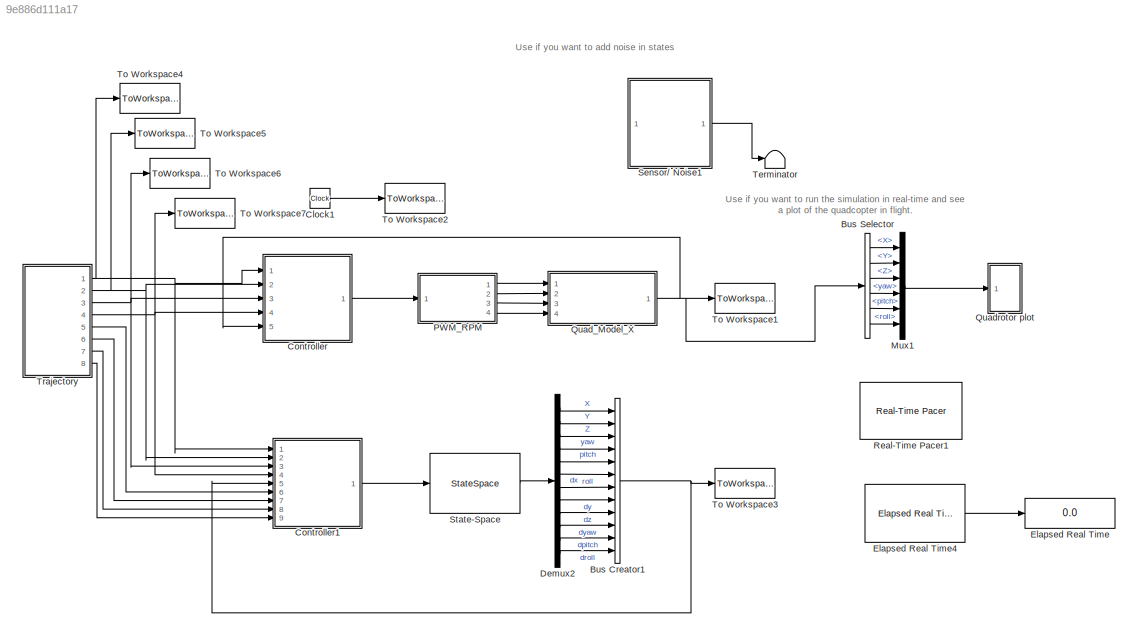
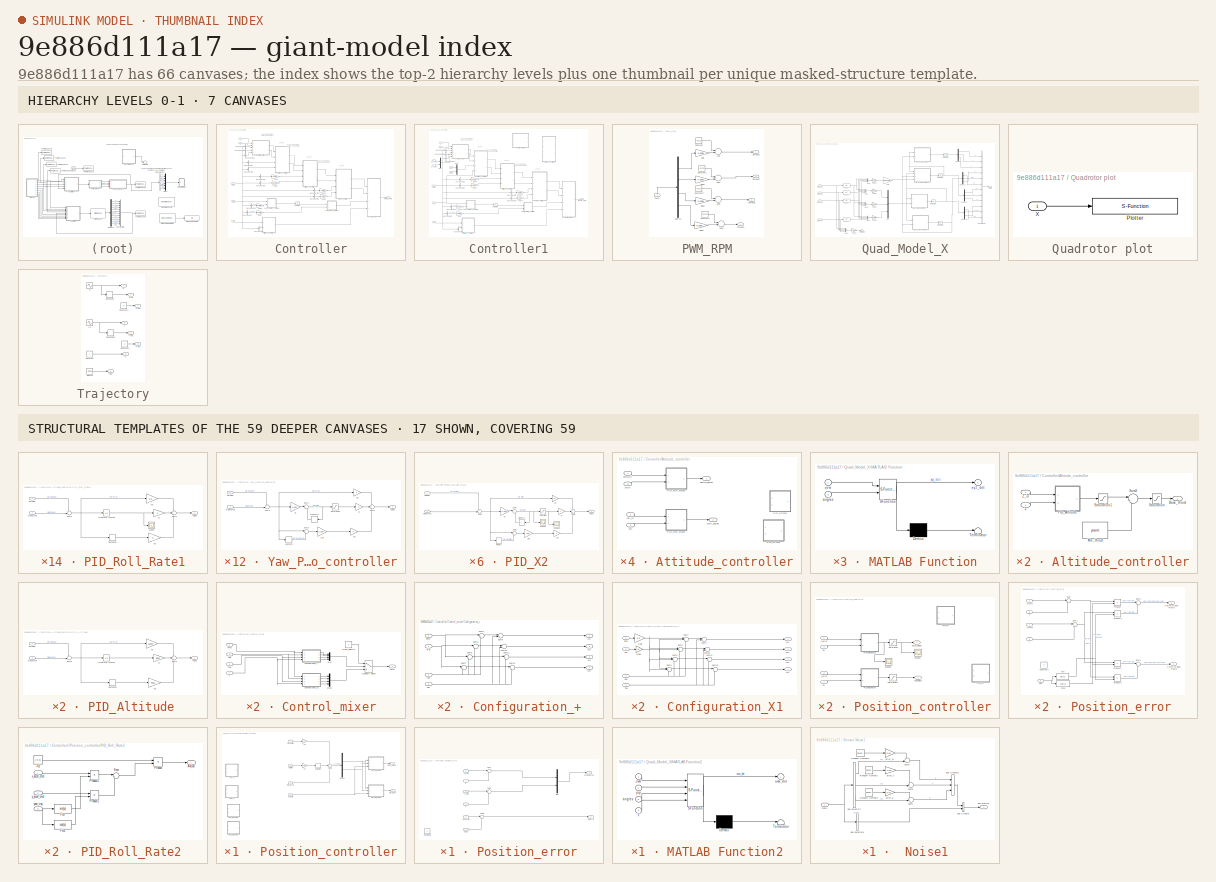
[diagram: thumbnail index - top-2 hierarchy levels (7 canvases) + 17 structural-template representatives of the remaining 59 canvases]
MODEL slx_9e886d111a17
KIND model
CONFIG AbsTol = auto
CONFIG EnableMultiTasking = off
CONFIG FixedStep = 1e-3
CONFIG InitFcn = % load parameters of the default quadrotor\ndisp('Quadrotor parameters loaded by InitFcn')\nmdl_quadrotor
CONFIG MaxStep = auto
CONFIG MinStep = auto
CONFIG RelTol = 1e-5
CONFIG SampleTimeConstraint = Unconstrained
CONFIG Solver = ode45
CONFIG SolverName = ode45
CONFIG StartTime = 0.0
CONFIG StopTime = 50
BLOCK [BusCreator] Bus Creator1
  DisplayOption = bar
  InheritFromInputs = on
  Inputs = 12
  Ports = [12, 1]
BLOCK [BusSelector] Bus Selector
  Commented = on
  OutputAsBus = off
  OutputSignals = X,Y,Z,yaw,pitch,roll
  Ports = [1, 6]
BLOCK [Clock] Clock1
BLOCK [SubSystem] Controller
  Ports = [5, 1]
  RequestExecContextInheritance = off
  TreatAsAtomicUnit = on
BLOCK [SubSystem] Controller/Altitude_controller
  Ports = [2, 1]
  RequestExecContextInheritance = off
BLOCK [Outport] Controller/Altitude_controller/Base_thrust
  IconDisplay = Port number
BLOCK [Constant] Controller/Altitude_controller/Min_thrust 
  SampleTime = 0
  Value = pwm
BLOCK [SubSystem] Controller/Altitude_controller/PID_Altitude
  Ports = [2, 1]
  RequestExecContextInheritance = off
BLOCK [Outport] Controller/Altitude_controller/PID_Altitude/Adjust
  IconDisplay = Port number
BLOCK [Derivative] Controller/Altitude_controller/PID_Altitude/Derivative
BLOCK [Integrator] Controller/Altitude_controller/PID_Altitude/Integrator Limited
  LimitOutput = on
  LowerSaturationLimit = -1000
  Ports = [1, 1]
  UpperSaturationLimit = 1000
BLOCK [Gain] Controller/Altitude_controller/PID_Altitude/Kd
  Gain = 9000
  OutDataTypeStr = Inherit: Inherit via internal rule
  OutMax = [200]
  OutMin = [-200]
  ParamDataTypeStr = Inherit: Inherit via internal rule
  SaturateOnIntegerOverflow = off
BLOCK [Gain] Controller/Altitude_controller/PID_Altitude/Ki
  Gain = 3500
  OutDataTypeStr = Inherit: Inherit via internal rule
  OutMax = [200]
  OutMin = [-200]
  ParamDataTypeStr = Inherit: Inherit via internal rule
  SaturateOnIntegerOverflow = off
BLOCK [Gain] Controller/Altitude_controller/PID_Altitude/Kp
  Gain = 11000
  OutDataTypeStr = Inherit: Inherit via internal rule
  OutMax = [200]
  OutMin = [-200]
  ParamDataTypeStr = Inherit: Inherit via internal rule
  SaturateOnIntegerOverflow = off
BLOCK [Inport] Controller/Altitude_controller/PID_Altitude/Measured
  IconDisplay = Port number
  Port = 2
BLOCK [Inport] Controller/Altitude_controller/PID_Altitude/Setpoint
  IconDisplay = Port number
BLOCK [Sum] Controller/Altitude_controller/PID_Altitude/Sum5
  IconShape = round
  InputSameDT = off
  Inputs = +++
  OutDataTypeStr = Inherit: Inherit via internal rule
  Ports = [3, 1]
  SaturateOnIntegerOverflow = off
BLOCK [Sum] Controller/Altitude_controller/PID_Altitude/Sum6
  IconShape = round
  InputSameDT = off
  Inputs = +-|
  OutDataTypeStr = Inherit: Inherit via internal rule
  Ports = [2, 1]
  SaturateOnIntegerOverflow = off
BLOCK [Saturate] Controller/Altitude_controller/Saturation
  InputPortMap = u0
  LowerLimit = -20000
  Ports = [1, 1]
  UpperLimit = 60000
BLOCK [Saturate] Controller/Altitude_controller/Saturation1
  InputPortMap = u0
  LowerLimit = -20000
  Ports = [1, 1]
  UpperLimit = 15000
BLOCK [Sum] Controller/Altitude_controller/Sum3
  IconShape = round
  InputSameDT = off
  Inputs = |++
  OutDataTypeStr = Inherit: Inherit via internal rule
  Ports = [2, 1]
  SaturateOnIntegerOverflow = off
BLOCK [Inport] Controller/Altitude_controller/Z
  IconDisplay = Port number
  Port = 2
BLOCK [Inport] Controller/Altitude_controller/Z_in
  IconDisplay = Port number
BLOCK [SubSystem] Controller/Attitude_controller
  Ports = [4, 2]
  RequestExecContextInheritance = off
BLOCK [SubSystem] Controller/Attitude_controller/PID_Pitch1
  Ports = [2, 1]
  RequestExecContextInheritance = off
BLOCK [Gain] Controller/Attitude_controller/PID_Pitch1/1//dt
  Gain = 250
  OutDataTypeStr = Inherit: Inherit via internal rule
  OutMax = [200]
  OutMin = [-200]
  ParamDataTypeStr = Inherit: Inherit via internal rule
  SaturateOnIntegerOverflow = off
BLOCK [Outport] Controller/Attitude_controller/PID_Pitch1/Adjust
  IconDisplay = Port number
BLOCK [Gain] Controller/Attitude_controller/PID_Pitch1/Kd
  Gain = 0
  OutDataTypeStr = Inherit: Inherit via internal rule
  OutMax = [200]
  OutMin = [-200]
  ParamDataTypeStr = Inherit: Inherit via internal rule
  SaturateOnIntegerOverflow = off
BLOCK [Gain] Controller/Attitude_controller/PID_Pitch1/Ki
  Gain = 0
  OutDataTypeStr = Inherit: Inherit via internal rule
  OutMax = [200]
  OutMin = [-200]
  ParamDataTypeStr = Inherit: Inherit via internal rule
  SaturateOnIntegerOverflow = off
BLOCK [Gain] Controller/Attitude_controller/PID_Pitch1/Kp
  Gain = 3.5
  OutDataTypeStr = Inherit: Inherit via internal rule
  OutMax = [200]
  OutMin = [-200]
  ParamDataTypeStr = Inherit: Inherit via internal rule
  SaturateOnIntegerOverflow = off
BLOCK [Inport] Controller/Attitude_controller/PID_Pitch1/Measured
  IconDisplay = Port number
  Port = 2
BLOCK [Memory] Controller/Attitude_controller/PID_Pitch1/Memory
BLOCK [Memory] Controller/Attitude_controller/PID_Pitch1/Memory1
BLOCK [Saturate] Controller/Attitude_controller/PID_Pitch1/Saturation
  InputPortMap = u0
  LowerLimit = -20
  Ports = [1, 1]
  UpperLimit = 20
BLOCK [Inport] Controller/Attitude_controller/PID_Pitch1/Setpoint
  IconDisplay = Port number
BLOCK [Sum] Controller/Attitude_controller/PID_Pitch1/Sum1
  IconShape = round
  InputSameDT = off
  Inputs = |++
  OutDataTypeStr = Inherit: Inherit via internal rule
  Ports = [2, 1]
  SaturateOnIntegerOverflow = off
BLOCK [Sum] Controller/Attitude_controller/PID_Pitch1/Sum2
  IconShape = round
  InputSameDT = off
  Inputs = |+-
  OutDataTypeStr = Inherit: Inherit via internal rule
  Ports = [2, 1]
  SaturateOnIntegerOverflow = off
BLOCK [Sum] Controller/Attitude_controller/PID_Pitch1/Sum5
  IconShape = round
  InputSameDT = off
  Inputs = +++
  OutDataTypeStr = Inherit: Inherit via internal rule
  Ports = [3, 1]
  SaturateOnIntegerOverflow = off
BLOCK [Sum] Controller/Attitude_controller/PID_Pitch1/Sum6
  IconShape = round
  InputSameDT = off
  Inputs = +-|
  OutDataTypeStr = Inherit: Inherit via internal rule
  Ports = [2, 1]
  SaturateOnIntegerOverflow = off
BLOCK [Gain] Controller/Attitude_controller/PID_Pitch1/dt
  Gain = 1/250
  OutDataTypeStr = Inherit: Inherit via internal rule
  OutMax = [200]
  OutMin = [-200]
  ParamDataTypeStr = Inherit: Inherit via internal rule
  SaturateOnIntegerOverflow = off
BLOCK [SubSystem] Controller/Attitude_controller/PID_Pitch3
  Ports = [2, 1]
  RequestExecContextInheritance = off
BLOCK [Gain] Controller/Attitude_controller/PID_Pitch3/1//dt
  Gain = 250
  OutDataTypeStr = Inherit: Inherit via internal rule
  OutMax = [200]
  OutMin = [-200]
  ParamDataTypeStr = Inherit: Inherit via internal rule
  SaturateOnIntegerOverflow = off
BLOCK [Outport] Controller/Attitude_controller/PID_Pitch3/Adjust
  IconDisplay = Port number
BLOCK [Gain] Controller/Attitude_controller/PID_Pitch3/Kd
  Gain = 0
  OutDataTypeStr = Inherit: Inherit via internal rule
  OutMax = [200]
  OutMin = [-200]
  ParamDataTypeStr = Inherit: Inherit via internal rule
  SaturateOnIntegerOverflow = off
BLOCK [Gain] Controller/Attitude_controller/PID_Pitch3/Ki
  Gain = 0
  OutDataTypeStr = Inherit: Inherit via internal rule
  OutMax = [200]
  OutMin = [-200]
  ParamDataTypeStr = Inherit: Inherit via internal rule
  SaturateOnIntegerOverflow = off
BLOCK [Gain] Controller/Attitude_controller/PID_Pitch3/Kp
  Gain = 3.5
  OutDataTypeStr = Inherit: Inherit via internal rule
  OutMax = [200]
  OutMin = [-200]
  ParamDataTypeStr = Inherit: Inherit via internal rule
  SaturateOnIntegerOverflow = off
BLOCK [Inport] Controller/Attitude_controller/PID_Pitch3/Measured
  IconDisplay = Port number
  Port = 2
BLOCK [Memory] Controller/Attitude_controller/PID_Pitch3/Memory
BLOCK [Memory] Controller/Attitude_controller/PID_Pitch3/Memory1
BLOCK [Saturate] Controller/Attitude_controller/PID_Pitch3/Saturation
  InputPortMap = u0
  LowerLimit = -20
  Ports = [1, 1]
  UpperLimit = 20
BLOCK [Inport] Controller/Attitude_controller/PID_Pitch3/Setpoint
  IconDisplay = Port number
BLOCK [Sum] Controller/Attitude_controller/PID_Pitch3/Sum1
  IconShape = round
  InputSameDT = off
  Inputs = |++
  OutDataTypeStr = Inherit: Inherit via internal rule
  Ports = [2, 1]
  SaturateOnIntegerOverflow = off
BLOCK [Sum] Controller/Attitude_controller/PID_Pitch3/Sum2
  IconShape = round
  InputSameDT = off
  Inputs = |+-
  OutDataTypeStr = Inherit: Inherit via internal rule
  Ports = [2, 1]
  SaturateOnIntegerOverflow = off
BLOCK [Sum] Controller/Attitude_controller/PID_Pitch3/Sum5
  IconShape = round
  InputSameDT = off
  Inputs = +++
  OutDataTypeStr = Inherit: Inherit via internal rule
  Ports = [3, 1]
  SaturateOnIntegerOverflow = off
BLOCK [Sum] Controller/Attitude_controller/PID_Pitch3/Sum6
  IconShape = round
  InputSameDT = off
  Inputs = +-|
  OutDataTypeStr = Inherit: Inherit via internal rule
  Ports = [2, 1]
  SaturateOnIntegerOverflow = off
BLOCK [Gain] Controller/Attitude_controller/PID_Pitch3/dt
  Gain = 1/250
  OutDataTypeStr = Inherit: Inherit via internal rule
  OutMax = [200]
  OutMin = [-200]
  ParamDataTypeStr = Inherit: Inherit via internal rule
  SaturateOnIntegerOverflow = off
BLOCK [SubSystem] Controller/Attitude_controller/PID_Roll_Rate1
  Ports = [2, 1]
  RequestExecContextInheritance = off
BLOCK [Outport] Controller/Attitude_controller/PID_Roll_Rate1/Adjust
  IconDisplay = Port number
BLOCK [Derivative] Controller/Attitude_controller/PID_Roll_Rate1/Derivative
BLOCK [Integrator] Controller/Attitude_controller/PID_Roll_Rate1/Integrator Limited
  LimitOutput = on
  LowerSaturationLimit = -20
  Ports = [1, 1]
  UpperSaturationLimit = 20
BLOCK [Gain] Controller/Attitude_controller/PID_Roll_Rate1/Kd
  Gain = 0
  OutDataTypeStr = Inherit: Inherit via internal rule
  OutMax = [200]
  OutMin = [-200]
  ParamDataTypeStr = Inherit: Inherit via internal rule
  SaturateOnIntegerOverflow = off
BLOCK [Gain] Controller/Attitude_controller/PID_Roll_Rate1/Ki
  Gain = 2
  OutDataTypeStr = Inherit: Inherit via internal rule
  OutMax = [200]
  OutMin = [-200]
  ParamDataTypeStr = Inherit: Inherit via internal rule
  SaturateOnIntegerOverflow = off
BLOCK [Gain] Controller/Attitude_controller/PID_Roll_Rate1/Kp
  Gain = 3.5
  OutDataTypeStr = Inherit: Inherit via internal rule
  OutMax = [200]
  OutMin = [-200]
  ParamDataTypeStr = Inherit: Inherit via internal rule
  SaturateOnIntegerOverflow = off
BLOCK [Inport] Controller/Attitude_controller/PID_Roll_Rate1/Measured
  IconDisplay = Port number
  Port = 2
BLOCK [Scope] Controller/Attitude_controller/PID_Roll_Rate1/Scope
  Floating = off
  NumInputPorts = 1
  Ports = [1]
  ScopeSpecificationString = C++SS(StrPVP('Location','[-3, 73, 1359, 751]'),StrPVP('Open','off'),MxPVP('AxesTitles',54,'struct(''axes1'',''%<SignalLabel>'')'),MxPVP('ScopeGraphics',57,'struct(''FigureColor'',''[0.5 0.5 0.5]'',''AxesColor'',''[0 0 0]'',''AxesTickColor'',''[1 1 1]'',''LineColors'',''[1 1 0;1 0 1;0 1 1;1 0 0;0 1 0;0 0 1]'',''LineStyles'',''-|-|-|-|-|-'',''LineWidths'',''[0.5 0.5 0.5 0.5 0.5 0.5]'',''MarkerStyles...<+271ch>  <repeated x14 — deduplicated; at blocks: Scope>
BLOCK [Inport] Controller/Attitude_controller/PID_Roll_Rate1/Setpoint
  IconDisplay = Port number
BLOCK [Sum] Controller/Attitude_controller/PID_Roll_Rate1/Sum5
  IconShape = round
  InputSameDT = off
  Inputs = +++
  OutDataTypeStr = Inherit: Inherit via internal rule
  Ports = [3, 1]
  SaturateOnIntegerOverflow = off
BLOCK [Sum] Controller/Attitude_controller/PID_Roll_Rate1/Sum6
  IconShape = round
  InputSameDT = off
  Inputs = +-|
  OutDataTypeStr = Inherit: Inherit via internal rule
  Ports = [2, 1]
  SaturateOnIntegerOverflow = off
BLOCK [SubSystem] Controller/Attitude_controller/PID_Roll_Rate2
  Ports = [2, 1]
  RequestExecContextInheritance = off
BLOCK [Outport] Controller/Attitude_controller/PID_Roll_Rate2/Adjust
  IconDisplay = Port number
BLOCK [Derivative] Controller/Attitude_controller/PID_Roll_Rate2/Derivative
BLOCK [Integrator] Controller/Attitude_controller/PID_Roll_Rate2/Integrator Limited
  LimitOutput = on
  LowerSaturationLimit = -20
  Ports = [1, 1]
  UpperSaturationLimit = 20
BLOCK [Gain] Controller/Attitude_controller/PID_Roll_Rate2/Kd
  Gain = 0
  OutDataTypeStr = Inherit: Inherit via internal rule
  OutMax = [200]
  OutMin = [-200]
  ParamDataTypeStr = Inherit: Inherit via internal rule
  SaturateOnIntegerOverflow = off
BLOCK [Gain] Controller/Attitude_controller/PID_Roll_Rate2/Ki
  Gain = 2
  OutDataTypeStr = Inherit: Inherit via internal rule
  OutMax = [200]
  OutMin = [-200]
  ParamDataTypeStr = Inherit: Inherit via internal rule
  SaturateOnIntegerOverflow = off
BLOCK [Gain] Controller/Attitude_controller/PID_Roll_Rate2/Kp
  Gain = 3.5
  OutDataTypeStr = Inherit: Inherit via internal rule
  OutMax = [200]
  OutMin = [-200]
  ParamDataTypeStr = Inherit: Inherit via internal rule
  SaturateOnIntegerOverflow = off
BLOCK [Inport] Controller/Attitude_controller/PID_Roll_Rate2/Measured
  IconDisplay = Port number
  Port = 2
BLOCK [Scope] Controller/Attitude_controller/PID_Roll_Rate2/Scope
  Floating = off
  NumInputPorts = 1
  Ports = [1]
BLOCK [Inport] Controller/Attitude_controller/PID_Roll_Rate2/Setpoint
  IconDisplay = Port number
BLOCK [Sum] Controller/Attitude_controller/PID_Roll_Rate2/Sum5
  IconShape = round
  InputSameDT = off
  Inputs = +++
  OutDataTypeStr = Inherit: Inherit via internal rule
  Ports = [3, 1]
  SaturateOnIntegerOverflow = off
BLOCK [Sum] Controller/Attitude_controller/PID_Roll_Rate2/Sum6
  IconShape = round
  InputSameDT = off
  Inputs = +-|
  OutDataTypeStr = Inherit: Inherit via internal rule
  Ports = [2, 1]
  SaturateOnIntegerOverflow = off
BLOCK [Outport] Controller/Attitude_controller/dpitch_adjust
  IconDisplay = Port number
BLOCK [Outport] Controller/Attitude_controller/droll_adjust
  IconDisplay = Port number
  Port = 2
BLOCK [Inport] Controller/Attitude_controller/pitch
  IconDisplay = Port number
  Port = 3
BLOCK [Inport] Controller/Attitude_controller/pitch_in
  IconDisplay = Port number
BLOCK [Inport] Controller/Attitude_controller/roll
  IconDisplay = Port number
  Port = 4
BLOCK [Inport] Controller/Attitude_controller/roll_in
  IconDisplay = Port number
  Port = 2
BLOCK [BusSelector] Controller/Bus Selector1
  OutputAsBus = on
  OutputSignals = dpitch
  Ports = [1, 1]
BLOCK [BusSelector] Controller/Bus Selector10
  OutputAsBus = on
  OutputSignals = Y
  Ports = [1, 1]
BLOCK [BusSelector] Controller/Bus Selector11
  OutputAsBus = on
  OutputSignals = yaw
  Ports = [1, 1]
BLOCK [BusSelector] Controller/Bus Selector12
  OutputAsBus = off
  OutputSignals = yaw
  Ports = [1, 1]
BLOCK [BusSelector] Controller/Bus Selector2
  OutputAsBus = on
  OutputSignals = droll
  Ports = [1, 1]
BLOCK [BusSelector] Controller/Bus Selector3
  OutputAsBus = on
  OutputSignals = pitch
  Ports = [1, 1]
BLOCK [BusSelector] Controller/Bus Selector4
  OutputAsBus = off
  OutputSignals = dyaw
  Ports = [1, 1]
BLOCK [BusSelector] Controller/Bus Selector5
  OutputAsBus = off
  OutputSignals = Z
  Ports = [1, 1]
BLOCK [BusSelector] Controller/Bus Selector6
  OutputAsBus = on
  OutputSignals = roll
  Ports = [1, 1]
BLOCK [BusSelector] Controller/Bus Selector7
  OutputAsBus = on
  OutputSignals = dx
  Ports = [1, 1]
BLOCK [BusSelector] Controller/Bus Selector8
  OutputAsBus = on
  OutputSignals = dy
  Ports = [1, 1]
BLOCK [BusSelector] Controller/Bus Selector9
  OutputAsBus = on
  OutputSignals = X
  Ports = [1, 1]
BLOCK [SubSystem] Controller/Control_mixer
  Ports = [4, 1]
  RequestExecContextInheritance = off
BLOCK [SubSystem] Controller/Control_mixer/Configuration_+
  Ports = [4, 4]
  RequestExecContextInheritance = off
BLOCK [Inport] Controller/Control_mixer/Configuration_+/Pitch
  IconDisplay = Port number
BLOCK [Inport] Controller/Control_mixer/Configuration_+/Roll
  IconDisplay = Port number
  Port = 2
BLOCK [Sum] Controller/Control_mixer/Configuration_+/Sum1
  IconShape = round
  Inputs = |++
  Ports = [2, 1]
BLOCK [Sum] Controller/Control_mixer/Configuration_+/Sum10
  IconShape = round
  Inputs = |++
  Ports = [2, 1]
BLOCK [Sum] Controller/Control_mixer/Configuration_+/Sum11
  IconShape = round
  Inputs = |++
  Ports = [2, 1]
BLOCK [Sum] Controller/Control_mixer/Configuration_+/Sum12
  IconShape = round
  Inputs = |++
  Ports = [2, 1]
BLOCK [Sum] Controller/Control_mixer/Configuration_+/Sum3
  IconShape = round
  Inputs = |--
  Ports = [2, 1]
BLOCK [Sum] Controller/Control_mixer/Configuration_+/Sum5
  IconShape = round
  Inputs = |-+
  Ports = [2, 1]
BLOCK [Sum] Controller/Control_mixer/Configuration_+/Sum7
  IconShape = round
  Inputs = |+-
  Ports = [2, 1]
BLOCK [Sum] Controller/Control_mixer/Configuration_+/Sum9
  IconShape = round
  Inputs = |++
  Ports = [2, 1]
BLOCK [Inport] Controller/Control_mixer/Configuration_+/Tau
  IconDisplay = Port number
  Port = 4
BLOCK [Outport] Controller/Control_mixer/Configuration_+/W1
  IconDisplay = Port number
BLOCK [Outport] Controller/Control_mixer/Configuration_+/W2
  IconDisplay = Port number
  Port = 2
BLOCK [Outport] Controller/Control_mixer/Configuration_+/W3
  IconDisplay = Port number
  Port = 3
BLOCK [Outport] Controller/Control_mixer/Configuration_+/W4
  IconDisplay = Port number
  Port = 4
BLOCK [Inport] Controller/Control_mixer/Configuration_+/Yaw
  IconDisplay = Port number
  Port = 3
BLOCK [SubSystem] Controller/Control_mixer/Configuration_X1
  Ports = [4, 4]
  RequestExecContextInheritance = off
BLOCK [Gain] Controller/Control_mixer/Configuration_X1/Gain
  Gain = 0.5
  OutDataTypeStr = Inherit: Inherit via internal rule
  ParamDataTypeStr = Inherit: Inherit via internal rule
  SaturateOnIntegerOverflow = off
BLOCK [Gain] Controller/Control_mixer/Configuration_X1/Gain1
  Gain = 0.5
  OutDataTypeStr = Inherit: Inherit via internal rule
  ParamDataTypeStr = Inherit: Inherit via internal rule
  SaturateOnIntegerOverflow = off
BLOCK [Inport] Controller/Control_mixer/Configuration_X1/Pitch
  IconDisplay = Port number
BLOCK [Inport] Controller/Control_mixer/Configuration_X1/Roll
  IconDisplay = Port number
  Port = 2
BLOCK [Sum] Controller/Control_mixer/Configuration_X1/Sum1
  IconShape = round
  Inputs = |+-+
  Ports = [3, 1]
BLOCK [Sum] Controller/Control_mixer/Configuration_X1/Sum10
  IconShape = round
  Inputs = |++
  Ports = [2, 1]
BLOCK [Sum] Controller/Control_mixer/Configuration_X1/Sum11
  IconShape = round
  Inputs = |++
  Ports = [2, 1]
BLOCK [Sum] Controller/Control_mixer/Configuration_X1/Sum12
  IconShape = round
  Inputs = |++
  Ports = [2, 1]
BLOCK [Sum] Controller/Control_mixer/Configuration_X1/Sum3
  IconShape = round
  Inputs = |++-
  Ports = [3, 1]
BLOCK [Sum] Controller/Control_mixer/Configuration_X1/Sum5
  IconShape = round
  Inputs = |+-+
  Ports = [3, 1]
BLOCK [Sum] Controller/Control_mixer/Configuration_X1/Sum7
  IconShape = round
  Inputs = |---
  Ports = [3, 1]
BLOCK [Sum] Controller/Control_mixer/Configuration_X1/Sum9
  IconShape = round
  Inputs = |++
  Ports = [2, 1]
BLOCK [Inport] Controller/Control_mixer/Configuration_X1/Tau
  IconDisplay = Port number
  Port = 4
BLOCK [Outport] Controller/Control_mixer/Configuration_X1/W1
  IconDisplay = Port number
BLOCK [Outport] Controller/Control_mixer/Configuration_X1/W2
  IconDisplay = Port number
  Port = 2
BLOCK [Outport] Controller/Control_mixer/Configuration_X1/W3
  IconDisplay = Port number
  Port = 3
BLOCK [Outport] Controller/Control_mixer/Configuration_X1/W4
  IconDisplay = Port number
  Port = 4
BLOCK [Inport] Controller/Control_mixer/Configuration_X1/Yaw
  IconDisplay = Port number
  Port = 3
BLOCK [Constant] Controller/Control_mixer/Mode_Selector
  Value = 2
BLOCK [MultiPortSwitch] Controller/Control_mixer/Multiport Switch
  InputSameDT = off
  Inputs = 2
  Ports = [3, 1]
  SaturateOnIntegerOverflow = off
BLOCK [Mux] Controller/Control_mixer/Mux
  DisplayOption = bar
  Ports = [4, 1]
BLOCK [Mux] Controller/Control_mixer/Mux1
  DisplayOption = bar
  Ports = [4, 1]
BLOCK [Outport] Controller/Control_mixer/PWM
  IconDisplay = Port number
BLOCK [Inport] Controller/Control_mixer/Pitch
  IconDisplay = Port number
BLOCK [Inport] Controller/Control_mixer/Roll	
  IconDisplay = Port number
  Port = 2
BLOCK [Inport] Controller/Control_mixer/T
  IconDisplay = Port number
  Port = 4
BLOCK [Inport] Controller/Control_mixer/Yaw
  IconDisplay = Port number
  Port = 3
BLOCK [Gain] Controller/Gain1
  Gain = 180/pi
  OutDataTypeStr = Inherit: Inherit via internal rule
  ParamDataTypeStr = Inherit: Inherit via internal rule
  SaturateOnIntegerOverflow = off
BLOCK [Gain] Controller/Gain3
  Gain = 180/pi
  OutDataTypeStr = Inherit: Inherit via internal rule
  ParamDataTypeStr = Inherit: Inherit via internal rule
  SaturateOnIntegerOverflow = off
BLOCK [Gain] Controller/Gain4
  Gain = 180/pi
  OutDataTypeStr = Inherit: Inherit via internal rule
  ParamDataTypeStr = Inherit: Inherit via internal rule
  SaturateOnIntegerOverflow = off
BLOCK [Gain] Controller/Gain5
  Gain = 180/pi
  OutDataTypeStr = Inherit: Inherit via internal rule
  ParamDataTypeStr = Inherit: Inherit via internal rule
  SaturateOnIntegerOverflow = off
BLOCK [Gain] Controller/Gain6
  Gain = 180/pi
  OutDataTypeStr = Inherit: Inherit via internal rule
  ParamDataTypeStr = Inherit: Inherit via internal rule
  SaturateOnIntegerOverflow = off
BLOCK [Gain] Controller/Gain7
  Gain = 180/pi
  OutDataTypeStr = Inherit: Inherit via internal rule
  ParamDataTypeStr = Inherit: Inherit via internal rule
  SaturateOnIntegerOverflow = off
BLOCK [Outport] Controller/Motors_PWM
  IconDisplay = Port number
BLOCK [SubSystem] Controller/Position_controller
  Ports = [4, 2]
  RequestExecContextInheritance = off
BLOCK [SubSystem] Controller/Position_controller/PID_Roll_Rate2
  Ports = [2, 1]
  RequestExecContextInheritance = off
BLOCK [Outport] Controller/Position_controller/PID_Roll_Rate2/Adjust
  IconDisplay = Port number
BLOCK [Derivative] Controller/Position_controller/PID_Roll_Rate2/Derivative
BLOCK [Integrator] Controller/Position_controller/PID_Roll_Rate2/Integrator Limited
  LimitOutput = on
  LowerSaturationLimit = -0.1
  Ports = [1, 1]
  UpperSaturationLimit = 0.1
BLOCK [Gain] Controller/Position_controller/PID_Roll_Rate2/Kd
  Gain = 0
  OutDataTypeStr = Inherit: Inherit via internal rule
  OutMax = [200]
  OutMin = [-200]
  ParamDataTypeStr = Inherit: Inherit via internal rule
  SaturateOnIntegerOverflow = off
BLOCK [Gain] Controller/Position_controller/PID_Roll_Rate2/Ki
  Gain = 2
  OutDataTypeStr = Inherit: Inherit via internal rule
  OutMax = [200]
  OutMin = [-200]
  ParamDataTypeStr = Inherit: Inherit via internal rule
  SaturateOnIntegerOverflow = off
BLOCK [Gain] Controller/Position_controller/PID_Roll_Rate2/Kp
  Gain = 30
  OutDataTypeStr = Inherit: Inherit via internal rule
  OutMax = [200]
  OutMin = [-200]
  ParamDataTypeStr = Inherit: Inherit via internal rule
  SaturateOnIntegerOverflow = off
BLOCK [Inport] Controller/Position_controller/PID_Roll_Rate2/Measured
  IconDisplay = Port number
  Port = 2
BLOCK [Scope] Controller/Position_controller/PID_Roll_Rate2/Scope
  Floating = off
  NumInputPorts = 1
  Ports = [1]
BLOCK [Inport] Controller/Position_controller/PID_Roll_Rate2/Setpoint
  IconDisplay = Port number
BLOCK [Sum] Controller/Position_controller/PID_Roll_Rate2/Sum5
  IconShape = round
  InputSameDT = off
  Inputs = +++
  OutDataTypeStr = Inherit: Inherit via internal rule
  Ports = [3, 1]
  SaturateOnIntegerOverflow = off
BLOCK [Sum] Controller/Position_controller/PID_Roll_Rate2/Sum6
  IconShape = round
  InputSameDT = off
  Inputs = +-|
  OutDataTypeStr = Inherit: Inherit via internal rule
  Ports = [2, 1]
  SaturateOnIntegerOverflow = off
BLOCK [SubSystem] Controller/Position_controller/PID_Roll_Rate3
  Ports = [2, 1]
  RequestExecContextInheritance = off
BLOCK [Outport] Controller/Position_controller/PID_Roll_Rate3/Adjust
  IconDisplay = Port number
BLOCK [Derivative] Controller/Position_controller/PID_Roll_Rate3/Derivative
BLOCK [Integrator] Controller/Position_controller/PID_Roll_Rate3/Integrator Limited
  LimitOutput = on
  LowerSaturationLimit = -0.1
  Ports = [1, 1]
  UpperSaturationLimit = 0.1
BLOCK [Gain] Controller/Position_controller/PID_Roll_Rate3/Kd
  Gain = 0
  OutDataTypeStr = Inherit: Inherit via internal rule
  OutMax = [200]
  OutMin = [-200]
  ParamDataTypeStr = Inherit: Inherit via internal rule
  SaturateOnIntegerOverflow = off
BLOCK [Gain] Controller/Position_controller/PID_Roll_Rate3/Ki
  Gain = -2
  OutDataTypeStr = Inherit: Inherit via internal rule
  OutMax = [200]
  OutMin = [-200]
  ParamDataTypeStr = Inherit: Inherit via internal rule
  SaturateOnIntegerOverflow = off
BLOCK [Gain] Controller/Position_controller/PID_Roll_Rate3/Kp
  Gain = -30
  OutDataTypeStr = Inherit: Inherit via internal rule
  OutMax = [200]
  OutMin = [-200]
  ParamDataTypeStr = Inherit: Inherit via internal rule
  SaturateOnIntegerOverflow = off
BLOCK [Inport] Controller/Position_controller/PID_Roll_Rate3/Measured
  IconDisplay = Port number
  Port = 2
BLOCK [Scope] Controller/Position_controller/PID_Roll_Rate3/Scope
  Floating = off
  NumInputPorts = 1
  Ports = [1]
BLOCK [Inport] Controller/Position_controller/PID_Roll_Rate3/Setpoint
  IconDisplay = Port number
BLOCK [Sum] Controller/Position_controller/PID_Roll_Rate3/Sum5
  IconShape = round
  InputSameDT = off
  Inputs = +++
  OutDataTypeStr = Inherit: Inherit via internal rule
  Ports = [3, 1]
  SaturateOnIntegerOverflow = off
BLOCK [Sum] Controller/Position_controller/PID_Roll_Rate3/Sum6
  IconShape = round
  InputSameDT = off
  Inputs = +-|
  OutDataTypeStr = Inherit: Inherit via internal rule
  Ports = [2, 1]
  SaturateOnIntegerOverflow = off
BLOCK [SubSystem] Controller/Position_controller/PID_X2
  Ports = [2, 1]
  RequestExecContextInheritance = off
BLOCK [Gain] Controller/Position_controller/PID_X2/1//dt
  Gain = 100
  OutDataTypeStr = Inherit: Inherit via internal rule
  OutMax = [200]
  OutMin = [-200]
  ParamDataTypeStr = Inherit: Inherit via internal rule
  SaturateOnIntegerOverflow = off
BLOCK [Outport] Controller/Position_controller/PID_X2/Adjust
  IconDisplay = Port number
BLOCK [Gain] Controller/Position_controller/PID_X2/Kd
  Gain = 0
  OutDataTypeStr = Inherit: Inherit via internal rule
  OutMax = [200]
  OutMin = [-200]
  ParamDataTypeStr = Inherit: Inherit via internal rule
  SaturateOnIntegerOverflow = off
BLOCK [Gain] Controller/Position_controller/PID_X2/Ki
  OutDataTypeStr = Inherit: Inherit via internal rule
  OutMax = [200]
  OutMin = [-200]
  ParamDataTypeStr = Inherit: Inherit via internal rule
  SaturateOnIntegerOverflow = off
BLOCK [Gain] Controller/Position_controller/PID_X2/Kp
  Gain = 15
  OutDataTypeStr = Inherit: Inherit via internal rule
  OutMax = [200]
  OutMin = [-200]
  ParamDataTypeStr = Inherit: Inherit via internal rule
  SaturateOnIntegerOverflow = off
BLOCK [Inport] Controller/Position_controller/PID_X2/Measured
  IconDisplay = Port number
  Port = 2
BLOCK [Memory] Controller/Position_controller/PID_X2/Memory
BLOCK [Memory] Controller/Position_controller/PID_X2/Memory1
BLOCK [Saturate] Controller/Position_controller/PID_X2/Saturation
  InputPortMap = u0
  LowerLimit = -0.1
  Ports = [1, 1]
  UpperLimit = 0.1
BLOCK [Scope] Controller/Position_controller/PID_X2/Scope1
  Floating = off
  NumInputPorts = 1
  Ports = [1]
  ScopeSpecificationString = C++SS(StrPVP('Location','[5, 49, 1367, 727]'),StrPVP('Open','off'),MxPVP('AxesTitles',54,'struct(''axes1'',''%<SignalLabel>'')'),MxPVP('ScopeGraphics',57,'struct(''FigureColor'',''[0.5 0.5 0.5]'',''AxesColor'',''[0 0 0]'',''AxesTickColor'',''[1 1 1]'',''LineColors'',''[1 1 0;1 0 1;0 1 1;1 0 0;0 1 0;0 0 1]'',''LineStyles'',''-|-|-|-|-|-'',''LineWidths'',''[0.5 0.5 0.5 0.5 0.5 0.5]'',''MarkerStyles'...<+352ch>  <repeated x16 — deduplicated; at blocks: Scope1, Scope2>
BLOCK [Scope] Controller/Position_controller/PID_X2/Scope2
  Floating = off
  NumInputPorts = 1
  Ports = [1]
BLOCK [Inport] Controller/Position_controller/PID_X2/Setpoint
  IconDisplay = Port number
BLOCK [Sum] Controller/Position_controller/PID_X2/Sum1
  IconShape = round
  InputSameDT = off
  Inputs = |++
  OutDataTypeStr = Inherit: Inherit via internal rule
  Ports = [2, 1]
  SaturateOnIntegerOverflow = off
BLOCK [Sum] Controller/Position_controller/PID_X2/Sum2
  IconShape = round
  InputSameDT = off
  Inputs = |+-
  OutDataTypeStr = Inherit: Inherit via internal rule
  Ports = [2, 1]
  SaturateOnIntegerOverflow = off
BLOCK [Sum] Controller/Position_controller/PID_X2/Sum5
  IconShape = round
  InputSameDT = off
  Inputs = +++
  OutDataTypeStr = Inherit: Inherit via internal rule
  Ports = [3, 1]
  SaturateOnIntegerOverflow = off
BLOCK [Sum] Controller/Position_controller/PID_X2/Sum6
  IconShape = round
  InputSameDT = off
  Inputs = +-|
  OutDataTypeStr = Inherit: Inherit via internal rule
  Ports = [2, 1]
  SaturateOnIntegerOverflow = off
BLOCK [Gain] Controller/Position_controller/PID_X2/dt
  Gain = 1/100
  OutDataTypeStr = Inherit: Inherit via internal rule
  OutMax = [200]
  OutMin = [-200]
  ParamDataTypeStr = Inherit: Inherit via internal rule
  SaturateOnIntegerOverflow = off
BLOCK [SubSystem] Controller/Position_controller/PID_Y2
  Ports = [2, 1]
  RequestExecContextInheritance = off
BLOCK [Gain] Controller/Position_controller/PID_Y2/1//dt
  Gain = 100
  OutDataTypeStr = Inherit: Inherit via internal rule
  OutMax = [200]
  OutMin = [-200]
  ParamDataTypeStr = Inherit: Inherit via internal rule
  SaturateOnIntegerOverflow = off
BLOCK [Outport] Controller/Position_controller/PID_Y2/Adjust
  IconDisplay = Port number
BLOCK [Gain] Controller/Position_controller/PID_Y2/Kd
  Gain = 0
  OutDataTypeStr = Inherit: Inherit via internal rule
  OutMax = [200]
  OutMin = [-200]
  ParamDataTypeStr = Inherit: Inherit via internal rule
  SaturateOnIntegerOverflow = off
BLOCK [Gain] Controller/Position_controller/PID_Y2/Ki
  Gain = -1
  OutDataTypeStr = Inherit: Inherit via internal rule
  OutMax = [200]
  OutMin = [-200]
  ParamDataTypeStr = Inherit: Inherit via internal rule
  SaturateOnIntegerOverflow = off
BLOCK [Gain] Controller/Position_controller/PID_Y2/Kp
  Gain = -15
  OutDataTypeStr = Inherit: Inherit via internal rule
  OutMax = [200]
  OutMin = [-200]
  ParamDataTypeStr = Inherit: Inherit via internal rule
  SaturateOnIntegerOverflow = off
BLOCK [Inport] Controller/Position_controller/PID_Y2/Measured
  IconDisplay = Port number
  Port = 2
BLOCK [Memory] Controller/Position_controller/PID_Y2/Memory
BLOCK [Memory] Controller/Position_controller/PID_Y2/Memory1
BLOCK [Saturate] Controller/Position_controller/PID_Y2/Saturation
  InputPortMap = u0
  LowerLimit = -0.1
  Ports = [1, 1]
  UpperLimit = 0.1
BLOCK [Scope] Controller/Position_controller/PID_Y2/Scope1
  Floating = off
  NumInputPorts = 1
  Ports = [1]
BLOCK [Scope] Controller/Position_controller/PID_Y2/Scope2
  Floating = off
  NumInputPorts = 1
  Ports = [1]
BLOCK [Inport] Controller/Position_controller/PID_Y2/Setpoint
  IconDisplay = Port number
BLOCK [Sum] Controller/Position_controller/PID_Y2/Sum1
  IconShape = round
  InputSameDT = off
  Inputs = |++
  OutDataTypeStr = Inherit: Inherit via internal rule
  Ports = [2, 1]
  SaturateOnIntegerOverflow = off
BLOCK [Sum] Controller/Position_controller/PID_Y2/Sum2
  IconShape = round
  InputSameDT = off
  Inputs = |+-
  OutDataTypeStr = Inherit: Inherit via internal rule
  Ports = [2, 1]
  SaturateOnIntegerOverflow = off
BLOCK [Sum] Controller/Position_controller/PID_Y2/Sum5
  IconShape = round
  InputSameDT = off
  Inputs = +++
  OutDataTypeStr = Inherit: Inherit via internal rule
  Ports = [3, 1]
  SaturateOnIntegerOverflow = off
BLOCK [Sum] Controller/Position_controller/PID_Y2/Sum6
  IconShape = round
  InputSameDT = off
  Inputs = +-|
  OutDataTypeStr = Inherit: Inherit via internal rule
  Ports = [2, 1]
  SaturateOnIntegerOverflow = off
BLOCK [Gain] Controller/Position_controller/PID_Y2/dt
  Gain = 1/100
  OutDataTypeStr = Inherit: Inherit via internal rule
  OutMax = [200]
  OutMin = [-200]
  ParamDataTypeStr = Inherit: Inherit via internal rule
  SaturateOnIntegerOverflow = off
BLOCK [Saturate] Controller/Position_controller/Saturation
  InputPortMap = u0
  LowerLimit = -30
  Ports = [1, 1]
  UpperLimit = 30
BLOCK [Saturate] Controller/Position_controller/Saturation1
  InputPortMap = u0
  LowerLimit = -30
  Ports = [1, 1]
  UpperLimit = 30
BLOCK [Scope] Controller/Position_controller/Scope1
  Floating = off
  NumInputPorts = 1
  Ports = [1]
BLOCK [Scope] Controller/Position_controller/Scope2
  Floating = off
  NumInputPorts = 1
  Ports = [1]
BLOCK [Inport] Controller/Position_controller/X_error
  IconDisplay = Port number
BLOCK [Inport] Controller/Position_controller/Y_error
  IconDisplay = Port number
  Port = 2
BLOCK [Inport] Controller/Position_controller/dX
  IconDisplay = Port number
  Port = 3
BLOCK [Inport] Controller/Position_controller/dY
  IconDisplay = Port number
  Port = 4
BLOCK [Outport] Controller/Position_controller/pitch_adjust
  IconDisplay = Port number
BLOCK [Outport] Controller/Position_controller/roll_adjust
  IconDisplay = Port number
  Port = 2
BLOCK [SubSystem] Controller/Position_error
  Ports = [5, 2]
  RequestExecContextInheritance = off
BLOCK [Constant] Controller/Position_error/Constant1
  Value = 0
BLOCK [Fcn] Controller/Position_error/Fcn
  Expr = sin(u)
BLOCK [Fcn] Controller/Position_error/Fcn1
  Expr = cos(u)
BLOCK [Product] Controller/Position_error/Product
  InputSameDT = off
  OutDataTypeStr = Inherit: Inherit via internal rule
  Ports = [2, 1]
  RndMeth = Floor
  SaturateOnIntegerOverflow = off
BLOCK [Product] Controller/Position_error/Product1
  InputSameDT = off
  OutDataTypeStr = Inherit: Inherit via internal rule
  Ports = [2, 1]
  RndMeth = Floor
  SaturateOnIntegerOverflow = off
BLOCK [Product] Controller/Position_error/Product2
  InputSameDT = off
  OutDataTypeStr = Inherit: Inherit via internal rule
  Ports = [2, 1]
  RndMeth = Floor
  SaturateOnIntegerOverflow = off
BLOCK [Product] Controller/Position_error/Product3
  InputSameDT = off
  OutDataTypeStr = Inherit: Inherit via internal rule
  Ports = [2, 1]
  RndMeth = Floor
  SaturateOnIntegerOverflow = off
BLOCK [Inport] Controller/Position_error/Psi
  IconDisplay = Port number
  Port = 5
BLOCK [Sum] Controller/Position_error/Sum
  IconShape = round
  InputSameDT = off
  Inputs = |+-
  OutDataTypeStr = Inherit: Inherit via internal rule
  Ports = [2, 1]
  SaturateOnIntegerOverflow = off
BLOCK [Sum] Controller/Position_error/Sum1
  IconShape = round
  InputSameDT = off
  Inputs = |+-
  OutDataTypeStr = Inherit: Inherit via internal rule
  Ports = [2, 1]
  SaturateOnIntegerOverflow = off
BLOCK [Sum] Controller/Position_error/Sum2
  IconShape = round
  InputSameDT = off
  Inputs = |++
  OutDataTypeStr = Inherit: Inherit via internal rule
  Ports = [2, 1]
  SaturateOnIntegerOverflow = off
BLOCK [Sum] Controller/Position_error/Sum4
  IconShape = round
  InputSameDT = off
  Inputs = |+-
  OutDataTypeStr = Inherit: Inherit via internal rule
  Ports = [2, 1]
  SaturateOnIntegerOverflow = off
BLOCK [Inport] Controller/Position_error/X
  IconDisplay = Port number
  Port = 3
BLOCK [Outport] Controller/Position_error/X Error in body Frame
  IconDisplay = Port number
BLOCK [Inport] Controller/Position_error/X_cmd
  IconDisplay = Port number
BLOCK [Inport] Controller/Position_error/Y
  IconDisplay = Port number
  Port = 4
BLOCK [Outport] Controller/Position_error/Y Error in Body Frame
  IconDisplay = Port number
  Port = 2
BLOCK [Inport] Controller/Position_error/Y_cmd
  IconDisplay = Port number
  Port = 2
BLOCK [SubSystem] Controller/Rate_controller
  Ports = [4, 2]
  RequestExecContextInheritance = off
BLOCK [SubSystem] Controller/Rate_controller/PID_Pitch_Rate1
  Ports = [2, 1]
  RequestExecContextInheritance = off
BLOCK [Gain] Controller/Rate_controller/PID_Pitch_Rate1/1//dt
  Gain = 500
  OutDataTypeStr = Inherit: Inherit via internal rule
  OutMax = [200]
  OutMin = [-200]
  ParamDataTypeStr = Inherit: Inherit via internal rule
  SaturateOnIntegerOverflow = off
BLOCK [Outport] Controller/Rate_controller/PID_Pitch_Rate1/Adjust
  IconDisplay = Port number
BLOCK [Gain] Controller/Rate_controller/PID_Pitch_Rate1/Kd
  Gain = 0
  OutDataTypeStr = Inherit: Inherit via internal rule
  OutMax = [200]
  OutMin = [-200]
  ParamDataTypeStr = Inherit: Inherit via internal rule
  SaturateOnIntegerOverflow = off
BLOCK [Gain] Controller/Rate_controller/PID_Pitch_Rate1/Ki
  Gain = 0
  OutDataTypeStr = Inherit: Inherit via internal rule
  OutMax = [200]
  OutMin = [-200]
  ParamDataTypeStr = Inherit: Inherit via internal rule
  SaturateOnIntegerOverflow = off
BLOCK [Gain] Controller/Rate_controller/PID_Pitch_Rate1/Kp
  Gain = 70
  OutDataTypeStr = Inherit: Inherit via internal rule
  OutMax = [200]
  OutMin = [-200]
  ParamDataTypeStr = Inherit: Inherit via internal rule
  SaturateOnIntegerOverflow = off
BLOCK [Inport] Controller/Rate_controller/PID_Pitch_Rate1/Measured
  IconDisplay = Port number
  Port = 2
BLOCK [Memory] Controller/Rate_controller/PID_Pitch_Rate1/Memory
BLOCK [Memory] Controller/Rate_controller/PID_Pitch_Rate1/Memory1
BLOCK [Saturate] Controller/Rate_controller/PID_Pitch_Rate1/Saturation
  InputPortMap = u0
  LowerLimit = -33
  Ports = [1, 1]
  UpperLimit = 33
BLOCK [Inport] Controller/Rate_controller/PID_Pitch_Rate1/Setpoint
  IconDisplay = Port number
BLOCK [Sum] Controller/Rate_controller/PID_Pitch_Rate1/Sum1
  IconShape = round
  InputSameDT = off
  Inputs = |++
  OutDataTypeStr = Inherit: Inherit via internal rule
  Ports = [2, 1]
  SaturateOnIntegerOverflow = off
BLOCK [Sum] Controller/Rate_controller/PID_Pitch_Rate1/Sum2
  IconShape = round
  InputSameDT = off
  Inputs = |+-
  OutDataTypeStr = Inherit: Inherit via internal rule
  Ports = [2, 1]
  SaturateOnIntegerOverflow = off
BLOCK [Sum] Controller/Rate_controller/PID_Pitch_Rate1/Sum5
  IconShape = round
  InputSameDT = off
  Inputs = +++
  OutDataTypeStr = Inherit: Inherit via internal rule
  Ports = [3, 1]
  SaturateOnIntegerOverflow = off
BLOCK [Sum] Controller/Rate_controller/PID_Pitch_Rate1/Sum6
  IconShape = round
  InputSameDT = off
  Inputs = +-|
  OutDataTypeStr = Inherit: Inherit via internal rule
  Ports = [2, 1]
  SaturateOnIntegerOverflow = off
BLOCK [Gain] Controller/Rate_controller/PID_Pitch_Rate1/dt
  Gain = 1/500
  OutDataTypeStr = Inherit: Inherit via internal rule
  OutMax = [200]
  OutMin = [-200]
  ParamDataTypeStr = Inherit: Inherit via internal rule
  SaturateOnIntegerOverflow = off
BLOCK [SubSystem] Controller/Rate_controller/PID_Pitch_Rate3
  Ports = [2, 1]
  RequestExecContextInheritance = off
BLOCK [Gain] Controller/Rate_controller/PID_Pitch_Rate3/1//dt
  Gain = 500
  OutDataTypeStr = Inherit: Inherit via internal rule
  OutMax = [200]
  OutMin = [-200]
  ParamDataTypeStr = Inherit: Inherit via internal rule
  SaturateOnIntegerOverflow = off
BLOCK [Outport] Controller/Rate_controller/PID_Pitch_Rate3/Adjust
  IconDisplay = Port number
BLOCK [Gain] Controller/Rate_controller/PID_Pitch_Rate3/Kd
  Gain = 0
  OutDataTypeStr = Inherit: Inherit via internal rule
  OutMax = [200]
  OutMin = [-200]
  ParamDataTypeStr = Inherit: Inherit via internal rule
  SaturateOnIntegerOverflow = off
BLOCK [Gain] Controller/Rate_controller/PID_Pitch_Rate3/Ki
  Gain = 0
  OutDataTypeStr = Inherit: Inherit via internal rule
  OutMax = [200]
  OutMin = [-200]
  ParamDataTypeStr = Inherit: Inherit via internal rule
  SaturateOnIntegerOverflow = off
BLOCK [Gain] Controller/Rate_controller/PID_Pitch_Rate3/Kp
  Gain = 70
  OutDataTypeStr = Inherit: Inherit via internal rule
  OutMax = [200]
  OutMin = [-200]
  ParamDataTypeStr = Inherit: Inherit via internal rule
  SaturateOnIntegerOverflow = off
BLOCK [Inport] Controller/Rate_controller/PID_Pitch_Rate3/Measured
  IconDisplay = Port number
  Port = 2
BLOCK [Memory] Controller/Rate_controller/PID_Pitch_Rate3/Memory
BLOCK [Memory] Controller/Rate_controller/PID_Pitch_Rate3/Memory1
BLOCK [Saturate] Controller/Rate_controller/PID_Pitch_Rate3/Saturation
  InputPortMap = u0
  LowerLimit = -33
  Ports = [1, 1]
  UpperLimit = 33
BLOCK [Inport] Controller/Rate_controller/PID_Pitch_Rate3/Setpoint
  IconDisplay = Port number
BLOCK [Sum] Controller/Rate_controller/PID_Pitch_Rate3/Sum1
  IconShape = round
  InputSameDT = off
  Inputs = |++
  OutDataTypeStr = Inherit: Inherit via internal rule
  Ports = [2, 1]
  SaturateOnIntegerOverflow = off
BLOCK [Sum] Controller/Rate_controller/PID_Pitch_Rate3/Sum2
  IconShape = round
  InputSameDT = off
  Inputs = |+-
  OutDataTypeStr = Inherit: Inherit via internal rule
  Ports = [2, 1]
  SaturateOnIntegerOverflow = off
BLOCK [Sum] Controller/Rate_controller/PID_Pitch_Rate3/Sum5
  IconShape = round
  InputSameDT = off
  Inputs = +++
  OutDataTypeStr = Inherit: Inherit via internal rule
  Ports = [3, 1]
  SaturateOnIntegerOverflow = off
BLOCK [Sum] Controller/Rate_controller/PID_Pitch_Rate3/Sum6
  IconShape = round
  InputSameDT = off
  Inputs = +-|
  OutDataTypeStr = Inherit: Inherit via internal rule
  Ports = [2, 1]
  SaturateOnIntegerOverflow = off
BLOCK [Gain] Controller/Rate_controller/PID_Pitch_Rate3/dt
  Gain = 1/500
  OutDataTypeStr = Inherit: Inherit via internal rule
  OutMax = [200]
  OutMin = [-200]
  ParamDataTypeStr = Inherit: Inherit via internal rule
  SaturateOnIntegerOverflow = off
BLOCK [SubSystem] Controller/Rate_controller/PID_Roll_Rate1
  Ports = [2, 1]
  RequestExecContextInheritance = off
BLOCK [Outport] Controller/Rate_controller/PID_Roll_Rate1/Adjust
  IconDisplay = Port number
BLOCK [Derivative] Controller/Rate_controller/PID_Roll_Rate1/Derivative
BLOCK [Integrator] Controller/Rate_controller/PID_Roll_Rate1/Integrator Limited
  LimitOutput = on
  LowerSaturationLimit = -1000
  Ports = [1, 1]
  UpperSaturationLimit = 1000
BLOCK [Gain] Controller/Rate_controller/PID_Roll_Rate1/Kd
  Gain = 0
  OutDataTypeStr = Inherit: Inherit via internal rule
  OutMax = [200]
  OutMin = [-200]
  ParamDataTypeStr = Inherit: Inherit via internal rule
  SaturateOnIntegerOverflow = off
BLOCK [Gain] Controller/Rate_controller/PID_Roll_Rate1/Ki
  Gain = 0
  OutDataTypeStr = Inherit: Inherit via internal rule
  OutMax = [200]
  OutMin = [-200]
  ParamDataTypeStr = Inherit: Inherit via internal rule
  SaturateOnIntegerOverflow = off
BLOCK [Gain] Controller/Rate_controller/PID_Roll_Rate1/Kp
  Gain = 70
  OutDataTypeStr = Inherit: Inherit via internal rule
  OutMax = [200]
  OutMin = [-200]
  ParamDataTypeStr = Inherit: Inherit via internal rule
  SaturateOnIntegerOverflow = off
BLOCK [Inport] Controller/Rate_controller/PID_Roll_Rate1/Measured
  IconDisplay = Port number
  Port = 2
BLOCK [Scope] Controller/Rate_controller/PID_Roll_Rate1/Scope
  Floating = off
  NumInputPorts = 1
  Ports = [1]
BLOCK [Inport] Controller/Rate_controller/PID_Roll_Rate1/Setpoint
  IconDisplay = Port number
BLOCK [Sum] Controller/Rate_controller/PID_Roll_Rate1/Sum5
  IconShape = round
  InputSameDT = off
  Inputs = +++
  OutDataTypeStr = Inherit: Inherit via internal rule
  Ports = [3, 1]
  SaturateOnIntegerOverflow = off
BLOCK [Sum] Controller/Rate_controller/PID_Roll_Rate1/Sum6
  IconShape = round
  InputSameDT = off
  Inputs = +-|
  OutDataTypeStr = Inherit: Inherit via internal rule
  Ports = [2, 1]
  SaturateOnIntegerOverflow = off
BLOCK [SubSystem] Controller/Rate_controller/PID_Roll_Rate3
  Ports = [2, 1]
  RequestExecContextInheritance = off
BLOCK [Outport] Controller/Rate_controller/PID_Roll_Rate3/Adjust
  IconDisplay = Port number
BLOCK [Derivative] Controller/Rate_controller/PID_Roll_Rate3/Derivative
BLOCK [Integrator] Controller/Rate_controller/PID_Roll_Rate3/Integrator Limited
  LimitOutput = on
  LowerSaturationLimit = -1000
  Ports = [1, 1]
  UpperSaturationLimit = 1000
BLOCK [Gain] Controller/Rate_controller/PID_Roll_Rate3/Kd
  Gain = 0
  OutDataTypeStr = Inherit: Inherit via internal rule
  OutMax = [200]
  OutMin = [-200]
  ParamDataTypeStr = Inherit: Inherit via internal rule
  SaturateOnIntegerOverflow = off
BLOCK [Gain] Controller/Rate_controller/PID_Roll_Rate3/Ki
  Gain = 0
  OutDataTypeStr = Inherit: Inherit via internal rule
  OutMax = [200]
  OutMin = [-200]
  ParamDataTypeStr = Inherit: Inherit via internal rule
  SaturateOnIntegerOverflow = off
BLOCK [Gain] Controller/Rate_controller/PID_Roll_Rate3/Kp
  Gain = 70
  OutDataTypeStr = Inherit: Inherit via internal rule
  OutMax = [200]
  OutMin = [-200]
  ParamDataTypeStr = Inherit: Inherit via internal rule
  SaturateOnIntegerOverflow = off
BLOCK [Inport] Controller/Rate_controller/PID_Roll_Rate3/Measured
  IconDisplay = Port number
  Port = 2
BLOCK [Scope] Controller/Rate_controller/PID_Roll_Rate3/Scope
  Floating = off
  NumInputPorts = 1
  Ports = [1]
BLOCK [Inport] Controller/Rate_controller/PID_Roll_Rate3/Setpoint
  IconDisplay = Port number
BLOCK [Sum] Controller/Rate_controller/PID_Roll_Rate3/Sum5
  IconShape = round
  InputSameDT = off
  Inputs = +++
  OutDataTypeStr = Inherit: Inherit via internal rule
  Ports = [3, 1]
  SaturateOnIntegerOverflow = off
BLOCK [Sum] Controller/Rate_controller/PID_Roll_Rate3/Sum6
  IconShape = round
  InputSameDT = off
  Inputs = +-|
  OutDataTypeStr = Inherit: Inherit via internal rule
  Ports = [2, 1]
  SaturateOnIntegerOverflow = off
BLOCK [Inport] Controller/Rate_controller/dpitch
  IconDisplay = Port number
  Port = 3
BLOCK [Inport] Controller/Rate_controller/dpitch_adjust
  IconDisplay = Port number
BLOCK [Inport] Controller/Rate_controller/droll
  IconDisplay = Port number
  Port = 4
BLOCK [Inport] Controller/Rate_controller/droll_adjust
  IconDisplay = Port number
  Port = 2
BLOCK [Outport] Controller/Rate_controller/pitch_command
  IconDisplay = Port number
BLOCK [Outport] Controller/Rate_controller/roll_command
  IconDisplay = Port number
  Port = 2
BLOCK [Saturate] Controller/Saturation
  InputPortMap = u0
  LowerLimit = -200
  Ports = [1, 1]
  UpperLimit = 200
BLOCK [Inport] Controller/State
  IconDisplay = Port number
  Port = 5
BLOCK [Inport] Controller/X
  IconDisplay = Port number
BLOCK [Inport] Controller/Y
  IconDisplay = Port number
  Port = 2
BLOCK [Inport] Controller/Yaw
  IconDisplay = Port number
  Port = 4
BLOCK [SubSystem] Controller/Yaw_Position_controller
  Ports = [2, 1]
  RequestExecContextInheritance = off
BLOCK [Gain] Controller/Yaw_Position_controller/1//dt
  Gain = 1/100
  OutDataTypeStr = Inherit: Inherit via internal rule
  OutMax = [200]
  OutMin = [-200]
  ParamDataTypeStr = Inherit: Inherit via internal rule
  SaturateOnIntegerOverflow = off
BLOCK [Outport] Controller/Yaw_Position_controller/Adjust
  IconDisplay = Port number
BLOCK [Gain] Controller/Yaw_Position_controller/Kd
  Gain = 0
  OutDataTypeStr = Inherit: Inherit via internal rule
  OutMax = [200]
  OutMin = [-200]
  ParamDataTypeStr = Inherit: Inherit via internal rule
  SaturateOnIntegerOverflow = off
BLOCK [Gain] Controller/Yaw_Position_controller/Ki
  Gain = 0
  OutDataTypeStr = Inherit: Inherit via internal rule
  OutMax = [200]
  OutMin = [-200]
  ParamDataTypeStr = Inherit: Inherit via internal rule
  SaturateOnIntegerOverflow = off
BLOCK [Gain] Controller/Yaw_Position_controller/Kp
  Gain = 3
  OutDataTypeStr = Inherit: Inherit via internal rule
  OutMax = [200]
  OutMin = [-200]
  ParamDataTypeStr = Inherit: Inherit via internal rule
  SaturateOnIntegerOverflow = off
BLOCK [Inport] Controller/Yaw_Position_controller/Measured
  IconDisplay = Port number
  Port = 2
BLOCK [Memory] Controller/Yaw_Position_controller/Memory
BLOCK [Memory] Controller/Yaw_Position_controller/Memory1
BLOCK [Saturate] Controller/Yaw_Position_controller/Saturation
  InputPortMap = u0
  LowerLimit = -166.7
  Ports = [1, 1]
  UpperLimit = 166.7
BLOCK [Inport] Controller/Yaw_Position_controller/Setpoint
  IconDisplay = Port number
BLOCK [Sum] Controller/Yaw_Position_controller/Sum1
  IconShape = round
  InputSameDT = off
  Inputs = |++
  OutDataTypeStr = Inherit: Inherit via internal rule
  Ports = [2, 1]
  SaturateOnIntegerOverflow = off
BLOCK [Sum] Controller/Yaw_Position_controller/Sum2
  IconShape = round
  InputSameDT = off
  Inputs = |+-
  OutDataTypeStr = Inherit: Inherit via internal rule
  Ports = [2, 1]
  SaturateOnIntegerOverflow = off
BLOCK [Sum] Controller/Yaw_Position_controller/Sum5
  IconShape = round
  InputSameDT = off
  Inputs = +++
  OutDataTypeStr = Inherit: Inherit via internal rule
  Ports = [3, 1]
  SaturateOnIntegerOverflow = off
BLOCK [Sum] Controller/Yaw_Position_controller/Sum6
  IconShape = round
  InputSameDT = off
  Inputs = +-|
  OutDataTypeStr = Inherit: Inherit via internal rule
  Ports = [2, 1]
  SaturateOnIntegerOverflow = off
BLOCK [Gain] Controller/Yaw_Position_controller/dt
  Gain = 1/100
  OutDataTypeStr = Inherit: Inherit via internal rule
  OutMax = [200]
  OutMin = [-200]
  ParamDataTypeStr = Inherit: Inherit via internal rule
  SaturateOnIntegerOverflow = off
BLOCK [SubSystem] Controller/Yaw_Rate_controller
  Ports = [2, 1]
  RequestExecContextInheritance = off
BLOCK [Gain] Controller/Yaw_Rate_controller/1//dt
  Gain = 1/500
  OutDataTypeStr = Inherit: Inherit via internal rule
  OutMax = [200]
  OutMin = [-200]
  ParamDataTypeStr = Inherit: Inherit via internal rule
  SaturateOnIntegerOverflow = off
BLOCK [Outport] Controller/Yaw_Rate_controller/Adjust
  IconDisplay = Port number
BLOCK [Gain] Controller/Yaw_Rate_controller/Kd
  Gain = 0
  OutDataTypeStr = Inherit: Inherit via internal rule
  OutMax = [200]
  OutMin = [-200]
  ParamDataTypeStr = Inherit: Inherit via internal rule
  SaturateOnIntegerOverflow = off
BLOCK [Gain] Controller/Yaw_Rate_controller/Ki
  Gain = 16.7
  OutDataTypeStr = Inherit: Inherit via internal rule
  OutMax = [200]
  OutMin = [-200]
  ParamDataTypeStr = Inherit: Inherit via internal rule
  SaturateOnIntegerOverflow = off
BLOCK [Gain] Controller/Yaw_Rate_controller/Kp
  Gain = 70
  OutDataTypeStr = Inherit: Inherit via internal rule
  OutMax = [200]
  OutMin = [-200]
  ParamDataTypeStr = Inherit: Inherit via internal rule
  SaturateOnIntegerOverflow = off
BLOCK [Inport] Controller/Yaw_Rate_controller/Measured
  IconDisplay = Port number
  Port = 2
BLOCK [Memory] Controller/Yaw_Rate_controller/Memory
BLOCK [Memory] Controller/Yaw_Rate_controller/Memory1
BLOCK [Saturate] Controller/Yaw_Rate_controller/Saturation
  InputPortMap = u0
  LowerLimit = -166.7
  Ports = [1, 1]
  UpperLimit = 166.7
BLOCK [Inport] Controller/Yaw_Rate_controller/Setpoint
  IconDisplay = Port number
BLOCK [Sum] Controller/Yaw_Rate_controller/Sum1
  IconShape = round
  InputSameDT = off
  Inputs = |++
  OutDataTypeStr = Inherit: Inherit via internal rule
  Ports = [2, 1]
  SaturateOnIntegerOverflow = off
BLOCK [Sum] Controller/Yaw_Rate_controller/Sum2
  IconShape = round
  InputSameDT = off
  Inputs = |+-
  OutDataTypeStr = Inherit: Inherit via internal rule
  Ports = [2, 1]
  SaturateOnIntegerOverflow = off
BLOCK [Sum] Controller/Yaw_Rate_controller/Sum5
  IconShape = round
  InputSameDT = off
  Inputs = +++
  OutDataTypeStr = Inherit: Inherit via internal rule
  Ports = [3, 1]
  SaturateOnIntegerOverflow = off
BLOCK [Sum] Controller/Yaw_Rate_controller/Sum6
  IconShape = round
  InputSameDT = off
  Inputs = +-|
  OutDataTypeStr = Inherit: Inherit via internal rule
  Ports = [2, 1]
  SaturateOnIntegerOverflow = off
BLOCK [Gain] Controller/Yaw_Rate_controller/dt
  Gain = 1/500
  OutDataTypeStr = Inherit: Inherit via internal rule
  OutMax = [200]
  OutMin = [-200]
  ParamDataTypeStr = Inherit: Inherit via internal rule
  SaturateOnIntegerOverflow = off
BLOCK [Inport] Controller/Z
  IconDisplay = Port number
  Port = 3
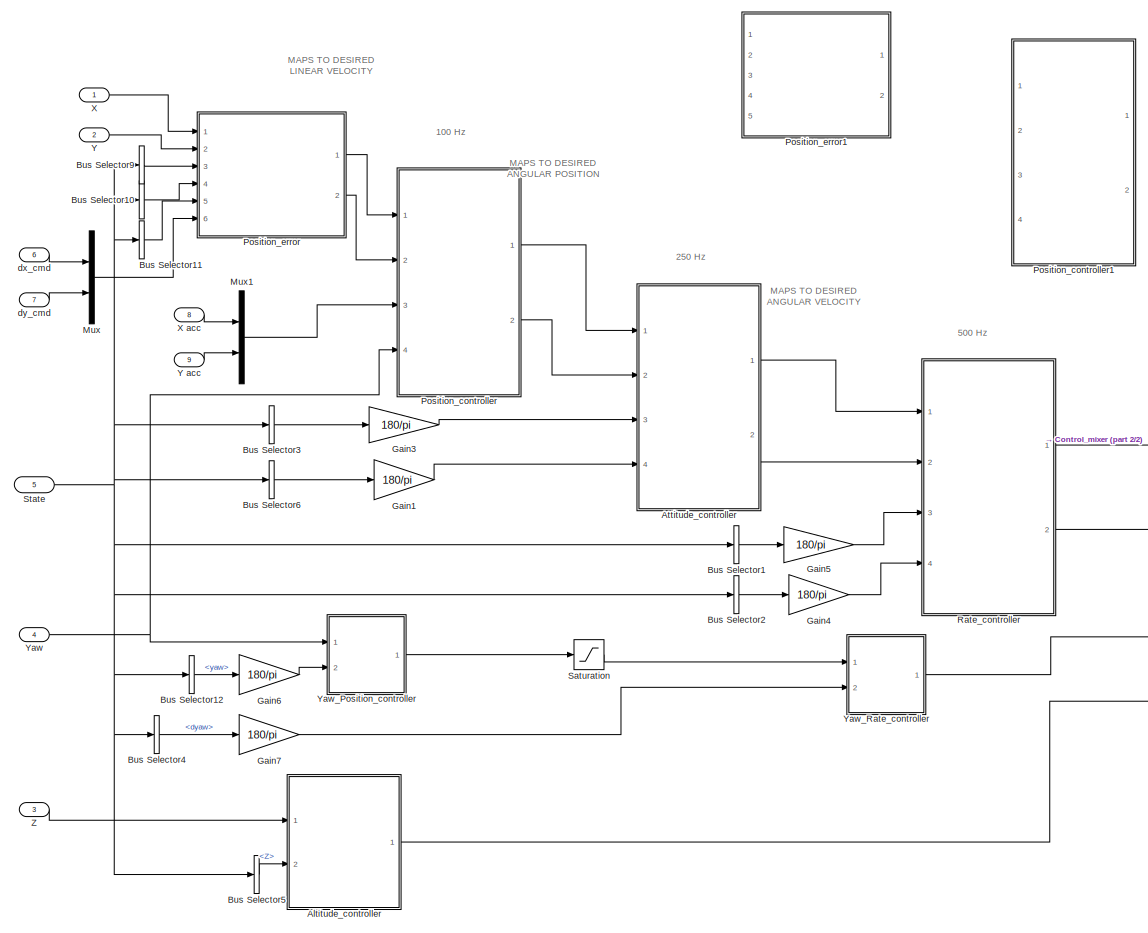
[diagram: Controller1 - part 1/2, most of the canvas]
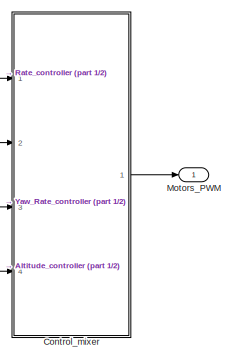
[diagram: Controller1 - part 2/2, middle right region]
BLOCK [SubSystem] Controller1
  Ports = [9, 1]
  RequestExecContextInheritance = off
  TreatAsAtomicUnit = on
BLOCK [SubSystem] Controller1/Altitude_controller
  Ports = [2, 1]
  RequestExecContextInheritance = off
BLOCK [Outport] Controller1/Altitude_controller/Base_thrust
  IconDisplay = Port number
BLOCK [Constant] Controller1/Altitude_controller/Min_thrust 
  SampleTime = 0
  Value = pwm
BLOCK [SubSystem] Controller1/Altitude_controller/PID_Altitude
  Ports = [2, 1]
  RequestExecContextInheritance = off
BLOCK [Outport] Controller1/Altitude_controller/PID_Altitude/Adjust
  IconDisplay = Port number
BLOCK [Derivative] Controller1/Altitude_controller/PID_Altitude/Derivative
BLOCK [Integrator] Controller1/Altitude_controller/PID_Altitude/Integrator Limited
  LimitOutput = on
  LowerSaturationLimit = -1000
  Ports = [1, 1]
  UpperSaturationLimit = 1000
BLOCK [Gain] Controller1/Altitude_controller/PID_Altitude/Kd
  Gain = 9000
  OutDataTypeStr = Inherit: Inherit via internal rule
  OutMax = [200]
  OutMin = [-200]
  ParamDataTypeStr = Inherit: Inherit via internal rule
  SaturateOnIntegerOverflow = off
BLOCK [Gain] Controller1/Altitude_controller/PID_Altitude/Ki
  Gain = 3500
  OutDataTypeStr = Inherit: Inherit via internal rule
  OutMax = [200]
  OutMin = [-200]
  ParamDataTypeStr = Inherit: Inherit via internal rule
  SaturateOnIntegerOverflow = off
BLOCK [Gain] Controller1/Altitude_controller/PID_Altitude/Kp
  Gain = 11000
  OutDataTypeStr = Inherit: Inherit via internal rule
  OutMax = [200]
  OutMin = [-200]
  ParamDataTypeStr = Inherit: Inherit via internal rule
  SaturateOnIntegerOverflow = off
BLOCK [Inport] Controller1/Altitude_controller/PID_Altitude/Measured
  IconDisplay = Port number
  Port = 2
BLOCK [Inport] Controller1/Altitude_controller/PID_Altitude/Setpoint
  IconDisplay = Port number
BLOCK [Sum] Controller1/Altitude_controller/PID_Altitude/Sum5
  IconShape = round
  InputSameDT = off
  Inputs = +++
  OutDataTypeStr = Inherit: Inherit via internal rule
  Ports = [3, 1]
  SaturateOnIntegerOverflow = off
BLOCK [Sum] Controller1/Altitude_controller/PID_Altitude/Sum6
  IconShape = round
  InputSameDT = off
  Inputs = +-|
  OutDataTypeStr = Inherit: Inherit via internal rule
  Ports = [2, 1]
  SaturateOnIntegerOverflow = off
BLOCK [Saturate] Controller1/Altitude_controller/Saturation
  InputPortMap = u0
  LowerLimit = -20000
  Ports = [1, 1]
  UpperLimit = 60000
BLOCK [Saturate] Controller1/Altitude_controller/Saturation1
  InputPortMap = u0
  LowerLimit = -20000
  Ports = [1, 1]
  UpperLimit = 15000
BLOCK [Sum] Controller1/Altitude_controller/Sum3
  IconShape = round
  InputSameDT = off
  Inputs = |++
  OutDataTypeStr = Inherit: Inherit via internal rule
  Ports = [2, 1]
  SaturateOnIntegerOverflow = off
BLOCK [Inport] Controller1/Altitude_controller/Z
  IconDisplay = Port number
  Port = 2
BLOCK [Inport] Controller1/Altitude_controller/Z_in
  IconDisplay = Port number
BLOCK [SubSystem] Controller1/Attitude_controller
  Ports = [4, 2]
  RequestExecContextInheritance = off
BLOCK [SubSystem] Controller1/Attitude_controller/PID_Pitch1
  Ports = [2, 1]
  RequestExecContextInheritance = off
BLOCK [Gain] Controller1/Attitude_controller/PID_Pitch1/1//dt
  Gain = 250
  OutDataTypeStr = Inherit: Inherit via internal rule
  OutMax = [200]
  OutMin = [-200]
  ParamDataTypeStr = Inherit: Inherit via internal rule
  SaturateOnIntegerOverflow = off
BLOCK [Outport] Controller1/Attitude_controller/PID_Pitch1/Adjust
  IconDisplay = Port number
BLOCK [Gain] Controller1/Attitude_controller/PID_Pitch1/Kd
  Gain = 0
  OutDataTypeStr = Inherit: Inherit via internal rule
  OutMax = [200]
  OutMin = [-200]
  ParamDataTypeStr = Inherit: Inherit via internal rule
  SaturateOnIntegerOverflow = off
BLOCK [Gain] Controller1/Attitude_controller/PID_Pitch1/Ki
  Gain = 0
  OutDataTypeStr = Inherit: Inherit via internal rule
  OutMax = [200]
  OutMin = [-200]
  ParamDataTypeStr = Inherit: Inherit via internal rule
  SaturateOnIntegerOverflow = off
BLOCK [Gain] Controller1/Attitude_controller/PID_Pitch1/Kp
  Gain = 3.5
  OutDataTypeStr = Inherit: Inherit via internal rule
  OutMax = [200]
  OutMin = [-200]
  ParamDataTypeStr = Inherit: Inherit via internal rule
  SaturateOnIntegerOverflow = off
BLOCK [Inport] Controller1/Attitude_controller/PID_Pitch1/Measured
  IconDisplay = Port number
  Port = 2
BLOCK [Memory] Controller1/Attitude_controller/PID_Pitch1/Memory
BLOCK [Memory] Controller1/Attitude_controller/PID_Pitch1/Memory1
BLOCK [Saturate] Controller1/Attitude_controller/PID_Pitch1/Saturation
  InputPortMap = u0
  LowerLimit = -20
  Ports = [1, 1]
  UpperLimit = 20
BLOCK [Inport] Controller1/Attitude_controller/PID_Pitch1/Setpoint
  IconDisplay = Port number
BLOCK [Sum] Controller1/Attitude_controller/PID_Pitch1/Sum1
  IconShape = round
  InputSameDT = off
  Inputs = |++
  OutDataTypeStr = Inherit: Inherit via internal rule
  Ports = [2, 1]
  SaturateOnIntegerOverflow = off
BLOCK [Sum] Controller1/Attitude_controller/PID_Pitch1/Sum2
  IconShape = round
  InputSameDT = off
  Inputs = |+-
  OutDataTypeStr = Inherit: Inherit via internal rule
  Ports = [2, 1]
  SaturateOnIntegerOverflow = off
BLOCK [Sum] Controller1/Attitude_controller/PID_Pitch1/Sum5
  IconShape = round
  InputSameDT = off
  Inputs = +++
  OutDataTypeStr = Inherit: Inherit via internal rule
  Ports = [3, 1]
  SaturateOnIntegerOverflow = off
BLOCK [Sum] Controller1/Attitude_controller/PID_Pitch1/Sum6
  IconShape = round
  InputSameDT = off
  Inputs = +-|
  OutDataTypeStr = Inherit: Inherit via internal rule
  Ports = [2, 1]
  SaturateOnIntegerOverflow = off
BLOCK [Gain] Controller1/Attitude_controller/PID_Pitch1/dt
  Gain = 1/250
  OutDataTypeStr = Inherit: Inherit via internal rule
  OutMax = [200]
  OutMin = [-200]
  ParamDataTypeStr = Inherit: Inherit via internal rule
  SaturateOnIntegerOverflow = off
BLOCK [SubSystem] Controller1/Attitude_controller/PID_Pitch3
  Ports = [2, 1]
  RequestExecContextInheritance = off
BLOCK [Gain] Controller1/Attitude_controller/PID_Pitch3/1//dt
  Gain = 250
  OutDataTypeStr = Inherit: Inherit via internal rule
  OutMax = [200]
  OutMin = [-200]
  ParamDataTypeStr = Inherit: Inherit via internal rule
  SaturateOnIntegerOverflow = off
BLOCK [Outport] Controller1/Attitude_controller/PID_Pitch3/Adjust
  IconDisplay = Port number
BLOCK [Gain] Controller1/Attitude_controller/PID_Pitch3/Kd
  Gain = 0
  OutDataTypeStr = Inherit: Inherit via internal rule
  OutMax = [200]
  OutMin = [-200]
  ParamDataTypeStr = Inherit: Inherit via internal rule
  SaturateOnIntegerOverflow = off
BLOCK [Gain] Controller1/Attitude_controller/PID_Pitch3/Ki
  Gain = 0
  OutDataTypeStr = Inherit: Inherit via internal rule
  OutMax = [200]
  OutMin = [-200]
  ParamDataTypeStr = Inherit: Inherit via internal rule
  SaturateOnIntegerOverflow = off
BLOCK [Gain] Controller1/Attitude_controller/PID_Pitch3/Kp
  Gain = 3.5
  OutDataTypeStr = Inherit: Inherit via internal rule
  OutMax = [200]
  OutMin = [-200]
  ParamDataTypeStr = Inherit: Inherit via internal rule
  SaturateOnIntegerOverflow = off
BLOCK [Inport] Controller1/Attitude_controller/PID_Pitch3/Measured
  IconDisplay = Port number
  Port = 2
BLOCK [Memory] Controller1/Attitude_controller/PID_Pitch3/Memory
BLOCK [Memory] Controller1/Attitude_controller/PID_Pitch3/Memory1
BLOCK [Saturate] Controller1/Attitude_controller/PID_Pitch3/Saturation
  InputPortMap = u0
  LowerLimit = -20
  Ports = [1, 1]
  UpperLimit = 20
BLOCK [Inport] Controller1/Attitude_controller/PID_Pitch3/Setpoint
  IconDisplay = Port number
BLOCK [Sum] Controller1/Attitude_controller/PID_Pitch3/Sum1
  IconShape = round
  InputSameDT = off
  Inputs = |++
  OutDataTypeStr = Inherit: Inherit via internal rule
  Ports = [2, 1]
  SaturateOnIntegerOverflow = off
BLOCK [Sum] Controller1/Attitude_controller/PID_Pitch3/Sum2
  IconShape = round
  InputSameDT = off
  Inputs = |+-
  OutDataTypeStr = Inherit: Inherit via internal rule
  Ports = [2, 1]
  SaturateOnIntegerOverflow = off
BLOCK [Sum] Controller1/Attitude_controller/PID_Pitch3/Sum5
  IconShape = round
  InputSameDT = off
  Inputs = +++
  OutDataTypeStr = Inherit: Inherit via internal rule
  Ports = [3, 1]
  SaturateOnIntegerOverflow = off
BLOCK [Sum] Controller1/Attitude_controller/PID_Pitch3/Sum6
  IconShape = round
  InputSameDT = off
  Inputs = +-|
  OutDataTypeStr = Inherit: Inherit via internal rule
  Ports = [2, 1]
  SaturateOnIntegerOverflow = off
BLOCK [Gain] Controller1/Attitude_controller/PID_Pitch3/dt
  Gain = 1/250
  OutDataTypeStr = Inherit: Inherit via internal rule
  OutMax = [200]
  OutMin = [-200]
  ParamDataTypeStr = Inherit: Inherit via internal rule
  SaturateOnIntegerOverflow = off
BLOCK [SubSystem] Controller1/Attitude_controller/PID_Roll_Rate1
  Ports = [2, 1]
  RequestExecContextInheritance = off
BLOCK [Outport] Controller1/Attitude_controller/PID_Roll_Rate1/Adjust
  IconDisplay = Port number
BLOCK [Derivative] Controller1/Attitude_controller/PID_Roll_Rate1/Derivative
BLOCK [Integrator] Controller1/Attitude_controller/PID_Roll_Rate1/Integrator Limited
  LimitOutput = on
  LowerSaturationLimit = -20
  Ports = [1, 1]
  UpperSaturationLimit = 20
BLOCK [Gain] Controller1/Attitude_controller/PID_Roll_Rate1/Kd
  Gain = 0
  OutDataTypeStr = Inherit: Inherit via internal rule
  OutMax = [200]
  OutMin = [-200]
  ParamDataTypeStr = Inherit: Inherit via internal rule
  SaturateOnIntegerOverflow = off
BLOCK [Gain] Controller1/Attitude_controller/PID_Roll_Rate1/Ki
  Gain = 2
  OutDataTypeStr = Inherit: Inherit via internal rule
  OutMax = [200]
  OutMin = [-200]
  ParamDataTypeStr = Inherit: Inherit via internal rule
  SaturateOnIntegerOverflow = off
BLOCK [Gain] Controller1/Attitude_controller/PID_Roll_Rate1/Kp
  Gain = 3.5
  OutDataTypeStr = Inherit: Inherit via internal rule
  OutMax = [200]
  OutMin = [-200]
  ParamDataTypeStr = Inherit: Inherit via internal rule
  SaturateOnIntegerOverflow = off
BLOCK [Inport] Controller1/Attitude_controller/PID_Roll_Rate1/Measured
  IconDisplay = Port number
  Port = 2
BLOCK [Scope] Controller1/Attitude_controller/PID_Roll_Rate1/Scope
  Floating = off
  NumInputPorts = 1
  Ports = [1]
BLOCK [Inport] Controller1/Attitude_controller/PID_Roll_Rate1/Setpoint
  IconDisplay = Port number
BLOCK [Sum] Controller1/Attitude_controller/PID_Roll_Rate1/Sum5
  IconShape = round
  InputSameDT = off
  Inputs = +++
  OutDataTypeStr = Inherit: Inherit via internal rule
  Ports = [3, 1]
  SaturateOnIntegerOverflow = off
BLOCK [Sum] Controller1/Attitude_controller/PID_Roll_Rate1/Sum6
  IconShape = round
  InputSameDT = off
  Inputs = +-|
  OutDataTypeStr = Inherit: Inherit via internal rule
  Ports = [2, 1]
  SaturateOnIntegerOverflow = off
BLOCK [SubSystem] Controller1/Attitude_controller/PID_Roll_Rate2
  Ports = [2, 1]
  RequestExecContextInheritance = off
BLOCK [Outport] Controller1/Attitude_controller/PID_Roll_Rate2/Adjust
  IconDisplay = Port number
BLOCK [Derivative] Controller1/Attitude_controller/PID_Roll_Rate2/Derivative
BLOCK [Integrator] Controller1/Attitude_controller/PID_Roll_Rate2/Integrator Limited
  LimitOutput = on
  LowerSaturationLimit = -20
  Ports = [1, 1]
  UpperSaturationLimit = 20
BLOCK [Gain] Controller1/Attitude_controller/PID_Roll_Rate2/Kd
  Gain = 0
  OutDataTypeStr = Inherit: Inherit via internal rule
  OutMax = [200]
  OutMin = [-200]
  ParamDataTypeStr = Inherit: Inherit via internal rule
  SaturateOnIntegerOverflow = off
BLOCK [Gain] Controller1/Attitude_controller/PID_Roll_Rate2/Ki
  Gain = 2
  OutDataTypeStr = Inherit: Inherit via internal rule
  OutMax = [200]
  OutMin = [-200]
  ParamDataTypeStr = Inherit: Inherit via internal rule
  SaturateOnIntegerOverflow = off
BLOCK [Gain] Controller1/Attitude_controller/PID_Roll_Rate2/Kp
  Gain = 3.5
  OutDataTypeStr = Inherit: Inherit via internal rule
  OutMax = [200]
  OutMin = [-200]
  ParamDataTypeStr = Inherit: Inherit via internal rule
  SaturateOnIntegerOverflow = off
BLOCK [Inport] Controller1/Attitude_controller/PID_Roll_Rate2/Measured
  IconDisplay = Port number
  Port = 2
BLOCK [Scope] Controller1/Attitude_controller/PID_Roll_Rate2/Scope
  Floating = off
  NumInputPorts = 1
  Ports = [1]
BLOCK [Inport] Controller1/Attitude_controller/PID_Roll_Rate2/Setpoint
  IconDisplay = Port number
BLOCK [Sum] Controller1/Attitude_controller/PID_Roll_Rate2/Sum5
  IconShape = round
  InputSameDT = off
  Inputs = +++
  OutDataTypeStr = Inherit: Inherit via internal rule
  Ports = [3, 1]
  SaturateOnIntegerOverflow = off
BLOCK [Sum] Controller1/Attitude_controller/PID_Roll_Rate2/Sum6
  IconShape = round
  InputSameDT = off
  Inputs = +-|
  OutDataTypeStr = Inherit: Inherit via internal rule
  Ports = [2, 1]
  SaturateOnIntegerOverflow = off
BLOCK [Outport] Controller1/Attitude_controller/dpitch_adjust
  IconDisplay = Port number
BLOCK [Outport] Controller1/Attitude_controller/droll_adjust
  IconDisplay = Port number
  Port = 2
BLOCK [Inport] Controller1/Attitude_controller/pitch
  IconDisplay = Port number
  Port = 3
BLOCK [Inport] Controller1/Attitude_controller/pitch_in
  IconDisplay = Port number
BLOCK [Inport] Controller1/Attitude_controller/roll
  IconDisplay = Port number
  Port = 4
BLOCK [Inport] Controller1/Attitude_controller/roll_in
  IconDisplay = Port number
  Port = 2
BLOCK [BusSelector] Controller1/Bus Selector1
  OutputAsBus = on
  OutputSignals = dpitch
  Ports = [1, 1]
BLOCK [BusSelector] Controller1/Bus Selector10
  OutputAsBus = on
  OutputSignals = Y
  Ports = [1, 1]
BLOCK [BusSelector] Controller1/Bus Selector11
  OutputAsBus = on
  OutputSignals = dx,dy
  Ports = [1, 1]
BLOCK [BusSelector] Controller1/Bus Selector12
  OutputAsBus = off
  OutputSignals = yaw
  Ports = [1, 1]
BLOCK [BusSelector] Controller1/Bus Selector2
  OutputAsBus = on
  OutputSignals = droll
  Ports = [1, 1]
BLOCK [BusSelector] Controller1/Bus Selector3
  OutputAsBus = on
  OutputSignals = pitch
  Ports = [1, 1]
BLOCK [BusSelector] Controller1/Bus Selector4
  OutputAsBus = off
  OutputSignals = dyaw
  Ports = [1, 1]
BLOCK [BusSelector] Controller1/Bus Selector5
  OutputAsBus = off
  OutputSignals = Z
  Ports = [1, 1]
BLOCK [BusSelector] Controller1/Bus Selector6
  OutputAsBus = on
  OutputSignals = roll
  Ports = [1, 1]
BLOCK [BusSelector] Controller1/Bus Selector9
  OutputAsBus = on
  OutputSignals = X
  Ports = [1, 1]
BLOCK [SubSystem] Controller1/Control_mixer
  Ports = [4, 1]
  RequestExecContextInheritance = off
BLOCK [SubSystem] Controller1/Control_mixer/Configuration_+
  Ports = [4, 4]
  RequestExecContextInheritance = off
BLOCK [Inport] Controller1/Control_mixer/Configuration_+/Pitch
  IconDisplay = Port number
BLOCK [Inport] Controller1/Control_mixer/Configuration_+/Roll
  IconDisplay = Port number
  Port = 2
BLOCK [Sum] Controller1/Control_mixer/Configuration_+/Sum1
  IconShape = round
  Inputs = |++
  Ports = [2, 1]
BLOCK [Sum] Controller1/Control_mixer/Configuration_+/Sum10
  IconShape = round
  Inputs = |++
  Ports = [2, 1]
BLOCK [Sum] Controller1/Control_mixer/Configuration_+/Sum11
  IconShape = round
  Inputs = |++
  Ports = [2, 1]
BLOCK [Sum] Controller1/Control_mixer/Configuration_+/Sum12
  IconShape = round
  Inputs = |++
  Ports = [2, 1]
BLOCK [Sum] Controller1/Control_mixer/Configuration_+/Sum3
  IconShape = round
  Inputs = |--
  Ports = [2, 1]
BLOCK [Sum] Controller1/Control_mixer/Configuration_+/Sum5
  IconShape = round
  Inputs = |-+
  Ports = [2, 1]
BLOCK [Sum] Controller1/Control_mixer/Configuration_+/Sum7
  IconShape = round
  Inputs = |+-
  Ports = [2, 1]
BLOCK [Sum] Controller1/Control_mixer/Configuration_+/Sum9
  IconShape = round
  Inputs = |++
  Ports = [2, 1]
BLOCK [Inport] Controller1/Control_mixer/Configuration_+/Tau
  IconDisplay = Port number
  Port = 4
BLOCK [Outport] Controller1/Control_mixer/Configuration_+/W1
  IconDisplay = Port number
BLOCK [Outport] Controller1/Control_mixer/Configuration_+/W2
  IconDisplay = Port number
  Port = 2
BLOCK [Outport] Controller1/Control_mixer/Configuration_+/W3
  IconDisplay = Port number
  Port = 3
BLOCK [Outport] Controller1/Control_mixer/Configuration_+/W4
  IconDisplay = Port number
  Port = 4
BLOCK [Inport] Controller1/Control_mixer/Configuration_+/Yaw
  IconDisplay = Port number
  Port = 3
BLOCK [SubSystem] Controller1/Control_mixer/Configuration_X1
  Ports = [4, 4]
  RequestExecContextInheritance = off
BLOCK [Gain] Controller1/Control_mixer/Configuration_X1/Gain
  Gain = 0.5
  OutDataTypeStr = Inherit: Inherit via internal rule
  ParamDataTypeStr = Inherit: Inherit via internal rule
  SaturateOnIntegerOverflow = off
BLOCK [Gain] Controller1/Control_mixer/Configuration_X1/Gain1
  Gain = 0.5
  OutDataTypeStr = Inherit: Inherit via internal rule
  ParamDataTypeStr = Inherit: Inherit via internal rule
  SaturateOnIntegerOverflow = off
BLOCK [Inport] Controller1/Control_mixer/Configuration_X1/Pitch
  IconDisplay = Port number
BLOCK [Inport] Controller1/Control_mixer/Configuration_X1/Roll
  IconDisplay = Port number
  Port = 2
BLOCK [Sum] Controller1/Control_mixer/Configuration_X1/Sum1
  IconShape = round
  Inputs = |+-+
  Ports = [3, 1]
BLOCK [Sum] Controller1/Control_mixer/Configuration_X1/Sum10
  IconShape = round
  Inputs = |++
  Ports = [2, 1]
BLOCK [Sum] Controller1/Control_mixer/Configuration_X1/Sum11
  IconShape = round
  Inputs = |++
  Ports = [2, 1]
BLOCK [Sum] Controller1/Control_mixer/Configuration_X1/Sum12
  IconShape = round
  Inputs = |++
  Ports = [2, 1]
BLOCK [Sum] Controller1/Control_mixer/Configuration_X1/Sum3
  IconShape = round
  Inputs = |++-
  Ports = [3, 1]
BLOCK [Sum] Controller1/Control_mixer/Configuration_X1/Sum5
  IconShape = round
  Inputs = |+-+
  Ports = [3, 1]
BLOCK [Sum] Controller1/Control_mixer/Configuration_X1/Sum7
  IconShape = round
  Inputs = |---
  Ports = [3, 1]
BLOCK [Sum] Controller1/Control_mixer/Configuration_X1/Sum9
  IconShape = round
  Inputs = |++
  Ports = [2, 1]
BLOCK [Inport] Controller1/Control_mixer/Configuration_X1/Tau
  IconDisplay = Port number
  Port = 4
BLOCK [Outport] Controller1/Control_mixer/Configuration_X1/W1
  IconDisplay = Port number
BLOCK [Outport] Controller1/Control_mixer/Configuration_X1/W2
  IconDisplay = Port number
  Port = 2
BLOCK [Outport] Controller1/Control_mixer/Configuration_X1/W3
  IconDisplay = Port number
  Port = 3
BLOCK [Outport] Controller1/Control_mixer/Configuration_X1/W4
  IconDisplay = Port number
  Port = 4
BLOCK [Inport] Controller1/Control_mixer/Configuration_X1/Yaw
  IconDisplay = Port number
  Port = 3
BLOCK [Constant] Controller1/Control_mixer/Mode_Selector
  Value = 2
BLOCK [MultiPortSwitch] Controller1/Control_mixer/Multiport Switch
  InputSameDT = off
  Inputs = 2
  Ports = [3, 1]
  SaturateOnIntegerOverflow = off
BLOCK [Mux] Controller1/Control_mixer/Mux
  DisplayOption = bar
  Ports = [4, 1]
BLOCK [Mux] Controller1/Control_mixer/Mux1
  DisplayOption = bar
  Ports = [4, 1]
BLOCK [Outport] Controller1/Control_mixer/PWM
  IconDisplay = Port number
BLOCK [Inport] Controller1/Control_mixer/Pitch
  IconDisplay = Port number
BLOCK [Inport] Controller1/Control_mixer/Roll	
  IconDisplay = Port number
  Port = 2
BLOCK [Inport] Controller1/Control_mixer/T
  IconDisplay = Port number
  Port = 4
BLOCK [Inport] Controller1/Control_mixer/Yaw
  IconDisplay = Port number
  Port = 3
BLOCK [Gain] Controller1/Gain1
  Gain = 180/pi
  OutDataTypeStr = Inherit: Inherit via internal rule
  ParamDataTypeStr = Inherit: Inherit via internal rule
  SaturateOnIntegerOverflow = off
BLOCK [Gain] Controller1/Gain3
  Gain = 180/pi
  OutDataTypeStr = Inherit: Inherit via internal rule
  ParamDataTypeStr = Inherit: Inherit via internal rule
  SaturateOnIntegerOverflow = off
BLOCK [Gain] Controller1/Gain4
  Gain = 180/pi
  OutDataTypeStr = Inherit: Inherit via internal rule
  ParamDataTypeStr = Inherit: Inherit via internal rule
  SaturateOnIntegerOverflow = off
BLOCK [Gain] Controller1/Gain5
  Gain = 180/pi
  OutDataTypeStr = Inherit: Inherit via internal rule
  ParamDataTypeStr = Inherit: Inherit via internal rule
  SaturateOnIntegerOverflow = off
BLOCK [Gain] Controller1/Gain6
  Gain = 180/pi
  OutDataTypeStr = Inherit: Inherit via internal rule
  ParamDataTypeStr = Inherit: Inherit via internal rule
  SaturateOnIntegerOverflow = off
BLOCK [Gain] Controller1/Gain7
  Gain = 180/pi
  OutDataTypeStr = Inherit: Inherit via internal rule
  ParamDataTypeStr = Inherit: Inherit via internal rule
  SaturateOnIntegerOverflow = off
BLOCK [Outport] Controller1/Motors_PWM
  IconDisplay = Port number
BLOCK [Mux] Controller1/Mux
  DisplayOption = bar
  Inputs = 2
  Ports = [2, 1]
BLOCK [Mux] Controller1/Mux1
  DisplayOption = bar
  Inputs = 2
  Ports = [2, 1]
BLOCK [SubSystem] Controller1/Position_controller
  Ports = [4, 2]
  RequestExecContextInheritance = off
BLOCK [Inport] Controller1/Position_controller/Cross error
  IconDisplay = Port number
BLOCK [Demux] Controller1/Position_controller/Demux
  DisplayOption = bar
  Outputs = 2
  Ports = [1, 2]
BLOCK [Derivative] Controller1/Position_controller/Derivative
BLOCK [SubSystem] Controller1/Position_controller/PID_Roll_Rate1
  Ports = [2, 1]
  RequestExecContextInheritance = off
BLOCK [Outport] Controller1/Position_controller/PID_Roll_Rate1/Adjust
  IconDisplay = Port number
BLOCK [Derivative] Controller1/Position_controller/PID_Roll_Rate1/Derivative
BLOCK [Integrator] Controller1/Position_controller/PID_Roll_Rate1/Integrator Limited
  LimitOutput = on
  LowerSaturationLimit = -0.1
  Ports = [1, 1]
  UpperSaturationLimit = 0.1
BLOCK [Gain] Controller1/Position_controller/PID_Roll_Rate1/Kd
  Gain = 0
  OutDataTypeStr = Inherit: Inherit via internal rule
  OutMax = [200]
  OutMin = [-200]
  ParamDataTypeStr = Inherit: Inherit via internal rule
  SaturateOnIntegerOverflow = off
BLOCK [Gain] Controller1/Position_controller/PID_Roll_Rate1/Ki
  Gain = 2
  OutDataTypeStr = Inherit: Inherit via internal rule
  OutMax = [200]
  OutMin = [-200]
  ParamDataTypeStr = Inherit: Inherit via internal rule
  SaturateOnIntegerOverflow = off
BLOCK [Gain] Controller1/Position_controller/PID_Roll_Rate1/Kp
  Gain = 30
  OutDataTypeStr = Inherit: Inherit via internal rule
  OutMax = [200]
  OutMin = [-200]
  ParamDataTypeStr = Inherit: Inherit via internal rule
  SaturateOnIntegerOverflow = off
BLOCK [Inport] Controller1/Position_controller/PID_Roll_Rate1/Measured
  IconDisplay = Port number
  Port = 2
BLOCK [Scope] Controller1/Position_controller/PID_Roll_Rate1/Scope
  Floating = off
  NumInputPorts = 1
  Ports = [1]
BLOCK [Inport] Controller1/Position_controller/PID_Roll_Rate1/Setpoint
  IconDisplay = Port number
BLOCK [Sum] Controller1/Position_controller/PID_Roll_Rate1/Sum5
  IconShape = round
  InputSameDT = off
  Inputs = +++
  OutDataTypeStr = Inherit: Inherit via internal rule
  Ports = [3, 1]
  SaturateOnIntegerOverflow = off
BLOCK [Sum] Controller1/Position_controller/PID_Roll_Rate1/Sum6
  IconShape = round
  InputSameDT = off
  Inputs = +-|
  OutDataTypeStr = Inherit: Inherit via internal rule
  Ports = [2, 1]
  SaturateOnIntegerOverflow = off
BLOCK [SubSystem] Controller1/Position_controller/PID_Roll_Rate2
  Ports = [3, 1]
  RequestExecContextInheritance = off
BLOCK [Constant] Controller1/Position_controller/PID_Roll_Rate2/1//g 
  Value = 1/9.81
BLOCK [Outport] Controller1/Position_controller/PID_Roll_Rate2/Adjust
  IconDisplay = Port number
BLOCK [Fcn] Controller1/Position_controller/PID_Roll_Rate2/Fcn
  Expr = sin(u)
BLOCK [Fcn] Controller1/Position_controller/PID_Roll_Rate2/Fcn1
  Expr = cos(u)
BLOCK [Product] Controller1/Position_controller/PID_Roll_Rate2/Product
  InputSameDT = off
  OutDataTypeStr = Inherit: Inherit via internal rule
  Ports = [2, 1]
  RndMeth = Floor
  SaturateOnIntegerOverflow = off
BLOCK [Product] Controller1/Position_controller/PID_Roll_Rate2/Product1
  InputSameDT = off
  OutDataTypeStr = Inherit: Inherit via internal rule
  Ports = [2, 1]
  RndMeth = Floor
  SaturateOnIntegerOverflow = off
BLOCK [Product] Controller1/Position_controller/PID_Roll_Rate2/Product2
  InputSameDT = off
  OutDataTypeStr = Inherit: Inherit via internal rule
  Ports = [2, 1]
  RndMeth = Floor
  SaturateOnIntegerOverflow = off
BLOCK [Sum] Controller1/Position_controller/PID_Roll_Rate2/Sum
  IconShape = round
  InputSameDT = off
  Inputs = |+-
  OutDataTypeStr = Inherit: Inherit via internal rule
  Ports = [2, 1]
  SaturateOnIntegerOverflow = off
BLOCK [Inport] Controller1/Position_controller/PID_Roll_Rate2/x_accel_cmd 
  IconDisplay = Port number
BLOCK [Inport] Controller1/Position_controller/PID_Roll_Rate2/y_accel_cmd
  IconDisplay = Port number
  Port = 2
BLOCK [Inport] Controller1/Position_controller/PID_Roll_Rate2/yaw_traj 
  IconDisplay = Port number
  Port = 3
BLOCK [SubSystem] Controller1/Position_controller/PID_Roll_Rate3
  Ports = [3, 1]
  RequestExecContextInheritance = off
BLOCK [Constant] Controller1/Position_controller/PID_Roll_Rate3/1//g 
  Value = 1/9.81
BLOCK [Outport] Controller1/Position_controller/PID_Roll_Rate3/Adjust
  IconDisplay = Port number
BLOCK [Fcn] Controller1/Position_controller/PID_Roll_Rate3/Fcn
  Expr = sin(u)
BLOCK [Fcn] Controller1/Position_controller/PID_Roll_Rate3/Fcn1
  Expr = cos(u)
BLOCK [Product] Controller1/Position_controller/PID_Roll_Rate3/Product
  InputSameDT = off
  OutDataTypeStr = Inherit: Inherit via internal rule
  Ports = [2, 1]
  RndMeth = Floor
  SaturateOnIntegerOverflow = off
BLOCK [Product] Controller1/Position_controller/PID_Roll_Rate3/Product1
  InputSameDT = off
  OutDataTypeStr = Inherit: Inherit via internal rule
  Ports = [2, 1]
  RndMeth = Floor
  SaturateOnIntegerOverflow = off
BLOCK [Product] Controller1/Position_controller/PID_Roll_Rate3/Product2
  InputSameDT = off
  OutDataTypeStr = Inherit: Inherit via internal rule
  Ports = [2, 1]
  RndMeth = Floor
  SaturateOnIntegerOverflow = off
BLOCK [Sum] Controller1/Position_controller/PID_Roll_Rate3/Sum
  IconShape = round
  InputSameDT = off
  Inputs = |+-
  OutDataTypeStr = Inherit: Inherit via internal rule
  Ports = [2, 1]
  SaturateOnIntegerOverflow = off
BLOCK [Inport] Controller1/Position_controller/PID_Roll_Rate3/x_accel_cmd 
  IconDisplay = Port number
BLOCK [Inport] Controller1/Position_controller/PID_Roll_Rate3/y_accel_cmd
  IconDisplay = Port number
  Port = 2
BLOCK [Inport] Controller1/Position_controller/PID_Roll_Rate3/yaw_traj 
  IconDisplay = Port number
  Port = 3
BLOCK [SubSystem] Controller1/Position_controller/PID_Roll_Rate4
  Ports = [2, 1]
  RequestExecContextInheritance = off
BLOCK [Outport] Controller1/Position_controller/PID_Roll_Rate4/Adjust
  IconDisplay = Port number
BLOCK [Derivative] Controller1/Position_controller/PID_Roll_Rate4/Derivative
BLOCK [Integrator] Controller1/Position_controller/PID_Roll_Rate4/Integrator Limited
  LimitOutput = on
  LowerSaturationLimit = -0.1
  Ports = [1, 1]
  UpperSaturationLimit = 0.1
BLOCK [Gain] Controller1/Position_controller/PID_Roll_Rate4/Kd
  Gain = 0
  OutDataTypeStr = Inherit: Inherit via internal rule
  OutMax = [200]
  OutMin = [-200]
  ParamDataTypeStr = Inherit: Inherit via internal rule
  SaturateOnIntegerOverflow = off
BLOCK [Gain] Controller1/Position_controller/PID_Roll_Rate4/Ki
  Gain = -2
  OutDataTypeStr = Inherit: Inherit via internal rule
  OutMax = [200]
  OutMin = [-200]
  ParamDataTypeStr = Inherit: Inherit via internal rule
  SaturateOnIntegerOverflow = off
BLOCK [Gain] Controller1/Position_controller/PID_Roll_Rate4/Kp
  Gain = -30
  OutDataTypeStr = Inherit: Inherit via internal rule
  OutMax = [200]
  OutMin = [-200]
  ParamDataTypeStr = Inherit: Inherit via internal rule
  SaturateOnIntegerOverflow = off
BLOCK [Inport] Controller1/Position_controller/PID_Roll_Rate4/Measured
  IconDisplay = Port number
  Port = 2
BLOCK [Scope] Controller1/Position_controller/PID_Roll_Rate4/Scope
  Floating = off
  NumInputPorts = 1
  Ports = [1]
BLOCK [Inport] Controller1/Position_controller/PID_Roll_Rate4/Setpoint
  IconDisplay = Port number
BLOCK [Sum] Controller1/Position_controller/PID_Roll_Rate4/Sum5
  IconShape = round
  InputSameDT = off
  Inputs = +++
  OutDataTypeStr = Inherit: Inherit via internal rule
  Ports = [3, 1]
  SaturateOnIntegerOverflow = off
BLOCK [Sum] Controller1/Position_controller/PID_Roll_Rate4/Sum6
  IconShape = round
  InputSameDT = off
  Inputs = +-|
  OutDataTypeStr = Inherit: Inherit via internal rule
  Ports = [2, 1]
  SaturateOnIntegerOverflow = off
BLOCK [SubSystem] Controller1/Position_controller/PID_X2
  Ports = [2, 1]
  RequestExecContextInheritance = off
BLOCK [Gain] Controller1/Position_controller/PID_X2/1//dt
  Gain = 100
  OutDataTypeStr = Inherit: Inherit via internal rule
  OutMax = [200]
  OutMin = [-200]
  ParamDataTypeStr = Inherit: Inherit via internal rule
  SaturateOnIntegerOverflow = off
BLOCK [Outport] Controller1/Position_controller/PID_X2/Adjust
  IconDisplay = Port number
BLOCK [Gain] Controller1/Position_controller/PID_X2/Kd
  Gain = 0
  OutDataTypeStr = Inherit: Inherit via internal rule
  OutMax = [200]
  OutMin = [-200]
  ParamDataTypeStr = Inherit: Inherit via internal rule
  SaturateOnIntegerOverflow = off
BLOCK [Gain] Controller1/Position_controller/PID_X2/Ki
  OutDataTypeStr = Inherit: Inherit via internal rule
  OutMax = [200]
  OutMin = [-200]
  ParamDataTypeStr = Inherit: Inherit via internal rule
  SaturateOnIntegerOverflow = off
BLOCK [Gain] Controller1/Position_controller/PID_X2/Kp
  Gain = 15
  OutDataTypeStr = Inherit: Inherit via internal rule
  OutMax = [200]
  OutMin = [-200]
  ParamDataTypeStr = Inherit: Inherit via internal rule
  SaturateOnIntegerOverflow = off
BLOCK [Inport] Controller1/Position_controller/PID_X2/Measured
  IconDisplay = Port number
  Port = 2
BLOCK [Memory] Controller1/Position_controller/PID_X2/Memory
BLOCK [Memory] Controller1/Position_controller/PID_X2/Memory1
BLOCK [Saturate] Controller1/Position_controller/PID_X2/Saturation
  InputPortMap = u0
  LowerLimit = -0.1
  Ports = [1, 1]
  UpperLimit = 0.1
BLOCK [Scope] Controller1/Position_controller/PID_X2/Scope1
  Floating = off
  NumInputPorts = 1
  Ports = [1]
BLOCK [Scope] Controller1/Position_controller/PID_X2/Scope2
  Floating = off
  NumInputPorts = 1
  Ports = [1]
BLOCK [Inport] Controller1/Position_controller/PID_X2/Setpoint
  IconDisplay = Port number
BLOCK [Sum] Controller1/Position_controller/PID_X2/Sum1
  IconShape = round
  InputSameDT = off
  Inputs = |++
  OutDataTypeStr = Inherit: Inherit via internal rule
  Ports = [2, 1]
  SaturateOnIntegerOverflow = off
BLOCK [Sum] Controller1/Position_controller/PID_X2/Sum2
  IconShape = round
  InputSameDT = off
  Inputs = |+-
  OutDataTypeStr = Inherit: Inherit via internal rule
  Ports = [2, 1]
  SaturateOnIntegerOverflow = off
BLOCK [Sum] Controller1/Position_controller/PID_X2/Sum5
  IconShape = round
  InputSameDT = off
  Inputs = +++
  OutDataTypeStr = Inherit: Inherit via internal rule
  Ports = [3, 1]
  SaturateOnIntegerOverflow = off
BLOCK [Sum] Controller1/Position_controller/PID_X2/Sum6
  IconShape = round
  InputSameDT = off
  Inputs = +-|
  OutDataTypeStr = Inherit: Inherit via internal rule
  Ports = [2, 1]
  SaturateOnIntegerOverflow = off
BLOCK [Gain] Controller1/Position_controller/PID_X2/dt
  Gain = 1/100
  OutDataTypeStr = Inherit: Inherit via internal rule
  OutMax = [200]
  OutMin = [-200]
  ParamDataTypeStr = Inherit: Inherit via internal rule
  SaturateOnIntegerOverflow = off
BLOCK [SubSystem] Controller1/Position_controller/PID_Y2
  Ports = [2, 1]
  RequestExecContextInheritance = off
BLOCK [Gain] Controller1/Position_controller/PID_Y2/1//dt
  Gain = 100
  OutDataTypeStr = Inherit: Inherit via internal rule
  OutMax = [200]
  OutMin = [-200]
  ParamDataTypeStr = Inherit: Inherit via internal rule
  SaturateOnIntegerOverflow = off
BLOCK [Outport] Controller1/Position_controller/PID_Y2/Adjust
  IconDisplay = Port number
BLOCK [Gain] Controller1/Position_controller/PID_Y2/Kd
  Gain = 0
  OutDataTypeStr = Inherit: Inherit via internal rule
  OutMax = [200]
  OutMin = [-200]
  ParamDataTypeStr = Inherit: Inherit via internal rule
  SaturateOnIntegerOverflow = off
BLOCK [Gain] Controller1/Position_controller/PID_Y2/Ki
  Gain = -1
  OutDataTypeStr = Inherit: Inherit via internal rule
  OutMax = [200]
  OutMin = [-200]
  ParamDataTypeStr = Inherit: Inherit via internal rule
  SaturateOnIntegerOverflow = off
BLOCK [Gain] Controller1/Position_controller/PID_Y2/Kp
  Gain = -15
  OutDataTypeStr = Inherit: Inherit via internal rule
  OutMax = [200]
  OutMin = [-200]
  ParamDataTypeStr = Inherit: Inherit via internal rule
  SaturateOnIntegerOverflow = off
BLOCK [Inport] Controller1/Position_controller/PID_Y2/Measured
  IconDisplay = Port number
  Port = 2
BLOCK [Memory] Controller1/Position_controller/PID_Y2/Memory
BLOCK [Memory] Controller1/Position_controller/PID_Y2/Memory1
BLOCK [Saturate] Controller1/Position_controller/PID_Y2/Saturation
  InputPortMap = u0
  LowerLimit = -0.1
  Ports = [1, 1]
  UpperLimit = 0.1
BLOCK [Scope] Controller1/Position_controller/PID_Y2/Scope1
  Floating = off
  NumInputPorts = 1
  Ports = [1]
BLOCK [Scope] Controller1/Position_controller/PID_Y2/Scope2
  Floating = off
  NumInputPorts = 1
  Ports = [1]
BLOCK [Inport] Controller1/Position_controller/PID_Y2/Setpoint
  IconDisplay = Port number
BLOCK [Sum] Controller1/Position_controller/PID_Y2/Sum1
  IconShape = round
  InputSameDT = off
  Inputs = |++
  OutDataTypeStr = Inherit: Inherit via internal rule
  Ports = [2, 1]
  SaturateOnIntegerOverflow = off
BLOCK [Sum] Controller1/Position_controller/PID_Y2/Sum2
  IconShape = round
  InputSameDT = off
  Inputs = |+-
  OutDataTypeStr = Inherit: Inherit via internal rule
  Ports = [2, 1]
  SaturateOnIntegerOverflow = off
BLOCK [Sum] Controller1/Position_controller/PID_Y2/Sum5
  IconShape = round
  InputSameDT = off
  Inputs = +++
  OutDataTypeStr = Inherit: Inherit via internal rule
  Ports = [3, 1]
  SaturateOnIntegerOverflow = off
BLOCK [Sum] Controller1/Position_controller/PID_Y2/Sum6
  IconShape = round
  InputSameDT = off
  Inputs = +-|
  OutDataTypeStr = Inherit: Inherit via internal rule
  Ports = [2, 1]
  SaturateOnIntegerOverflow = off
BLOCK [Gain] Controller1/Position_controller/PID_Y2/dt
  Gain = 1/100
  OutDataTypeStr = Inherit: Inherit via internal rule
  OutMax = [200]
  OutMin = [-200]
  ParamDataTypeStr = Inherit: Inherit via internal rule
  SaturateOnIntegerOverflow = off
BLOCK [Sum] Controller1/Position_controller/Sum6
  IconShape = round
  InputSameDT = off
  Inputs = +++
  OutDataTypeStr = Inherit: Inherit via internal rule
  Ports = [3, 1]
  SaturateOnIntegerOverflow = off
BLOCK [Inport] Controller1/Position_controller/Traj_accel
  IconDisplay = Port number
  Port = 3
BLOCK [Inport] Controller1/Position_controller/Vel error
  IconDisplay = Port number
  Port = 2
BLOCK [Inport] Controller1/Position_controller/Yaw_traj
  IconDisplay = Port number
  Port = 4
BLOCK [Gain] Controller1/Position_controller/kd
  Gain = 100
  OutDataTypeStr = Inherit: Inherit via internal rule
  ParamDataTypeStr = Inherit: Inherit via internal rule
  SaturateOnIntegerOverflow = off
BLOCK [Gain] Controller1/Position_controller/kp
  Gain = 100
  OutDataTypeStr = Inherit: Inherit via internal rule
  ParamDataTypeStr = Inherit: Inherit via internal rule
  SaturateOnIntegerOverflow = off
BLOCK [Outport] Controller1/Position_controller/pitch_adjust
  IconDisplay = Port number
BLOCK [Outport] Controller1/Position_controller/roll_adjust
  IconDisplay = Port number
  Port = 2
BLOCK [SubSystem] Controller1/Position_controller1
  Commented = on
  Ports = [4, 2]
  RequestExecContextInheritance = off
BLOCK [SubSystem] Controller1/Position_controller1/PID_Roll_Rate2
  Ports = [2, 1]
  RequestExecContextInheritance = off
BLOCK [Outport] Controller1/Position_controller1/PID_Roll_Rate2/Adjust
  IconDisplay = Port number
BLOCK [Derivative] Controller1/Position_controller1/PID_Roll_Rate2/Derivative
BLOCK [Integrator] Controller1/Position_controller1/PID_Roll_Rate2/Integrator Limited
  LimitOutput = on
  LowerSaturationLimit = -0.1
  Ports = [1, 1]
  UpperSaturationLimit = 0.1
BLOCK [Gain] Controller1/Position_controller1/PID_Roll_Rate2/Kd
  Gain = 0
  OutDataTypeStr = Inherit: Inherit via internal rule
  OutMax = [200]
  OutMin = [-200]
  ParamDataTypeStr = Inherit: Inherit via internal rule
  SaturateOnIntegerOverflow = off
BLOCK [Gain] Controller1/Position_controller1/PID_Roll_Rate2/Ki
  Gain = 2
  OutDataTypeStr = Inherit: Inherit via internal rule
  OutMax = [200]
  OutMin = [-200]
  ParamDataTypeStr = Inherit: Inherit via internal rule
  SaturateOnIntegerOverflow = off
BLOCK [Gain] Controller1/Position_controller1/PID_Roll_Rate2/Kp
  Gain = 30
  OutDataTypeStr = Inherit: Inherit via internal rule
  OutMax = [200]
  OutMin = [-200]
  ParamDataTypeStr = Inherit: Inherit via internal rule
  SaturateOnIntegerOverflow = off
BLOCK [Inport] Controller1/Position_controller1/PID_Roll_Rate2/Measured
  IconDisplay = Port number
  Port = 2
BLOCK [Scope] Controller1/Position_controller1/PID_Roll_Rate2/Scope
  Floating = off
  NumInputPorts = 1
  Ports = [1]
BLOCK [Inport] Controller1/Position_controller1/PID_Roll_Rate2/Setpoint
  IconDisplay = Port number
BLOCK [Sum] Controller1/Position_controller1/PID_Roll_Rate2/Sum5
  IconShape = round
  InputSameDT = off
  Inputs = +++
  OutDataTypeStr = Inherit: Inherit via internal rule
  Ports = [3, 1]
  SaturateOnIntegerOverflow = off
BLOCK [Sum] Controller1/Position_controller1/PID_Roll_Rate2/Sum6
  IconShape = round
  InputSameDT = off
  Inputs = +-|
  OutDataTypeStr = Inherit: Inherit via internal rule
  Ports = [2, 1]
  SaturateOnIntegerOverflow = off
BLOCK [SubSystem] Controller1/Position_controller1/PID_Roll_Rate3
  Ports = [2, 1]
  RequestExecContextInheritance = off
BLOCK [Outport] Controller1/Position_controller1/PID_Roll_Rate3/Adjust
  IconDisplay = Port number
BLOCK [Derivative] Controller1/Position_controller1/PID_Roll_Rate3/Derivative
BLOCK [Integrator] Controller1/Position_controller1/PID_Roll_Rate3/Integrator Limited
  LimitOutput = on
  LowerSaturationLimit = -0.1
  Ports = [1, 1]
  UpperSaturationLimit = 0.1
BLOCK [Gain] Controller1/Position_controller1/PID_Roll_Rate3/Kd
  Gain = 0
  OutDataTypeStr = Inherit: Inherit via internal rule
  OutMax = [200]
  OutMin = [-200]
  ParamDataTypeStr = Inherit: Inherit via internal rule
  SaturateOnIntegerOverflow = off
BLOCK [Gain] Controller1/Position_controller1/PID_Roll_Rate3/Ki
  Gain = -2
  OutDataTypeStr = Inherit: Inherit via internal rule
  OutMax = [200]
  OutMin = [-200]
  ParamDataTypeStr = Inherit: Inherit via internal rule
  SaturateOnIntegerOverflow = off
BLOCK [Gain] Controller1/Position_controller1/PID_Roll_Rate3/Kp
  Gain = -30
  OutDataTypeStr = Inherit: Inherit via internal rule
  OutMax = [200]
  OutMin = [-200]
  ParamDataTypeStr = Inherit: Inherit via internal rule
  SaturateOnIntegerOverflow = off
BLOCK [Inport] Controller1/Position_controller1/PID_Roll_Rate3/Measured
  IconDisplay = Port number
  Port = 2
BLOCK [Scope] Controller1/Position_controller1/PID_Roll_Rate3/Scope
  Floating = off
  NumInputPorts = 1
  Ports = [1]
BLOCK [Inport] Controller1/Position_controller1/PID_Roll_Rate3/Setpoint
  IconDisplay = Port number
BLOCK [Sum] Controller1/Position_controller1/PID_Roll_Rate3/Sum5
  IconShape = round
  InputSameDT = off
  Inputs = +++
  OutDataTypeStr = Inherit: Inherit via internal rule
  Ports = [3, 1]
  SaturateOnIntegerOverflow = off
BLOCK [Sum] Controller1/Position_controller1/PID_Roll_Rate3/Sum6
  IconShape = round
  InputSameDT = off
  Inputs = +-|
  OutDataTypeStr = Inherit: Inherit via internal rule
  Ports = [2, 1]
  SaturateOnIntegerOverflow = off
BLOCK [SubSystem] Controller1/Position_controller1/PID_X2
  Ports = [2, 1]
  RequestExecContextInheritance = off
BLOCK [Gain] Controller1/Position_controller1/PID_X2/1//dt
  Gain = 100
  OutDataTypeStr = Inherit: Inherit via internal rule
  OutMax = [200]
  OutMin = [-200]
  ParamDataTypeStr = Inherit: Inherit via internal rule
  SaturateOnIntegerOverflow = off
BLOCK [Outport] Controller1/Position_controller1/PID_X2/Adjust
  IconDisplay = Port number
BLOCK [Gain] Controller1/Position_controller1/PID_X2/Kd
  Gain = 0
  OutDataTypeStr = Inherit: Inherit via internal rule
  OutMax = [200]
  OutMin = [-200]
  ParamDataTypeStr = Inherit: Inherit via internal rule
  SaturateOnIntegerOverflow = off
BLOCK [Gain] Controller1/Position_controller1/PID_X2/Ki
  OutDataTypeStr = Inherit: Inherit via internal rule
  OutMax = [200]
  OutMin = [-200]
  ParamDataTypeStr = Inherit: Inherit via internal rule
  SaturateOnIntegerOverflow = off
BLOCK [Gain] Controller1/Position_controller1/PID_X2/Kp
  Gain = 15
  OutDataTypeStr = Inherit: Inherit via internal rule
  OutMax = [200]
  OutMin = [-200]
  ParamDataTypeStr = Inherit: Inherit via internal rule
  SaturateOnIntegerOverflow = off
BLOCK [Inport] Controller1/Position_controller1/PID_X2/Measured
  IconDisplay = Port number
  Port = 2
BLOCK [Memory] Controller1/Position_controller1/PID_X2/Memory
BLOCK [Memory] Controller1/Position_controller1/PID_X2/Memory1
BLOCK [Saturate] Controller1/Position_controller1/PID_X2/Saturation
  InputPortMap = u0
  LowerLimit = -0.1
  Ports = [1, 1]
  UpperLimit = 0.1
BLOCK [Scope] Controller1/Position_controller1/PID_X2/Scope1
  Floating = off
  NumInputPorts = 1
  Ports = [1]
BLOCK [Scope] Controller1/Position_controller1/PID_X2/Scope2
  Floating = off
  NumInputPorts = 1
  Ports = [1]
BLOCK [Inport] Controller1/Position_controller1/PID_X2/Setpoint
  IconDisplay = Port number
BLOCK [Sum] Controller1/Position_controller1/PID_X2/Sum1
  IconShape = round
  InputSameDT = off
  Inputs = |++
  OutDataTypeStr = Inherit: Inherit via internal rule
  Ports = [2, 1]
  SaturateOnIntegerOverflow = off
BLOCK [Sum] Controller1/Position_controller1/PID_X2/Sum2
  IconShape = round
  InputSameDT = off
  Inputs = |+-
  OutDataTypeStr = Inherit: Inherit via internal rule
  Ports = [2, 1]
  SaturateOnIntegerOverflow = off
BLOCK [Sum] Controller1/Position_controller1/PID_X2/Sum5
  IconShape = round
  InputSameDT = off
  Inputs = +++
  OutDataTypeStr = Inherit: Inherit via internal rule
  Ports = [3, 1]
  SaturateOnIntegerOverflow = off
BLOCK [Sum] Controller1/Position_controller1/PID_X2/Sum6
  IconShape = round
  InputSameDT = off
  Inputs = +-|
  OutDataTypeStr = Inherit: Inherit via internal rule
  Ports = [2, 1]
  SaturateOnIntegerOverflow = off
BLOCK [Gain] Controller1/Position_controller1/PID_X2/dt
  Gain = 1/100
  OutDataTypeStr = Inherit: Inherit via internal rule
  OutMax = [200]
  OutMin = [-200]
  ParamDataTypeStr = Inherit: Inherit via internal rule
  SaturateOnIntegerOverflow = off
BLOCK [SubSystem] Controller1/Position_controller1/PID_Y2
  Ports = [2, 1]
  RequestExecContextInheritance = off
BLOCK [Gain] Controller1/Position_controller1/PID_Y2/1//dt
  Gain = 100
  OutDataTypeStr = Inherit: Inherit via internal rule
  OutMax = [200]
  OutMin = [-200]
  ParamDataTypeStr = Inherit: Inherit via internal rule
  SaturateOnIntegerOverflow = off
BLOCK [Outport] Controller1/Position_controller1/PID_Y2/Adjust
  IconDisplay = Port number
BLOCK [Gain] Controller1/Position_controller1/PID_Y2/Kd
  Gain = 0
  OutDataTypeStr = Inherit: Inherit via internal rule
  OutMax = [200]
  OutMin = [-200]
  ParamDataTypeStr = Inherit: Inherit via internal rule
  SaturateOnIntegerOverflow = off
BLOCK [Gain] Controller1/Position_controller1/PID_Y2/Ki
  Gain = -1
  OutDataTypeStr = Inherit: Inherit via internal rule
  OutMax = [200]
  OutMin = [-200]
  ParamDataTypeStr = Inherit: Inherit via internal rule
  SaturateOnIntegerOverflow = off
BLOCK [Gain] Controller1/Position_controller1/PID_Y2/Kp
  Gain = -15
  OutDataTypeStr = Inherit: Inherit via internal rule
  OutMax = [200]
  OutMin = [-200]
  ParamDataTypeStr = Inherit: Inherit via internal rule
  SaturateOnIntegerOverflow = off
BLOCK [Inport] Controller1/Position_controller1/PID_Y2/Measured
  IconDisplay = Port number
  Port = 2
BLOCK [Memory] Controller1/Position_controller1/PID_Y2/Memory
BLOCK [Memory] Controller1/Position_controller1/PID_Y2/Memory1
BLOCK [Saturate] Controller1/Position_controller1/PID_Y2/Saturation
  InputPortMap = u0
  LowerLimit = -0.1
  Ports = [1, 1]
  UpperLimit = 0.1
BLOCK [Scope] Controller1/Position_controller1/PID_Y2/Scope1
  Floating = off
  NumInputPorts = 1
  Ports = [1]
BLOCK [Scope] Controller1/Position_controller1/PID_Y2/Scope2
  Floating = off
  NumInputPorts = 1
  Ports = [1]
BLOCK [Inport] Controller1/Position_controller1/PID_Y2/Setpoint
  IconDisplay = Port number
BLOCK [Sum] Controller1/Position_controller1/PID_Y2/Sum1
  IconShape = round
  InputSameDT = off
  Inputs = |++
  OutDataTypeStr = Inherit: Inherit via internal rule
  Ports = [2, 1]
  SaturateOnIntegerOverflow = off
BLOCK [Sum] Controller1/Position_controller1/PID_Y2/Sum2
  IconShape = round
  InputSameDT = off
  Inputs = |+-
  OutDataTypeStr = Inherit: Inherit via internal rule
  Ports = [2, 1]
  SaturateOnIntegerOverflow = off
BLOCK [Sum] Controller1/Position_controller1/PID_Y2/Sum5
  IconShape = round
  InputSameDT = off
  Inputs = +++
  OutDataTypeStr = Inherit: Inherit via internal rule
  Ports = [3, 1]
  SaturateOnIntegerOverflow = off
BLOCK [Sum] Controller1/Position_controller1/PID_Y2/Sum6
  IconShape = round
  InputSameDT = off
  Inputs = +-|
  OutDataTypeStr = Inherit: Inherit via internal rule
  Ports = [2, 1]
  SaturateOnIntegerOverflow = off
BLOCK [Gain] Controller1/Position_controller1/PID_Y2/dt
  Gain = 1/100
  OutDataTypeStr = Inherit: Inherit via internal rule
  OutMax = [200]
  OutMin = [-200]
  ParamDataTypeStr = Inherit: Inherit via internal rule
  SaturateOnIntegerOverflow = off
BLOCK [Saturate] Controller1/Position_controller1/Saturation
  InputPortMap = u0
  LowerLimit = -30
  Ports = [1, 1]
  UpperLimit = 30
BLOCK [Saturate] Controller1/Position_controller1/Saturation1
  InputPortMap = u0
  LowerLimit = -30
  Ports = [1, 1]
  UpperLimit = 30
BLOCK [Scope] Controller1/Position_controller1/Scope1
  Floating = off
  NumInputPorts = 1
  Ports = [1]
BLOCK [Scope] Controller1/Position_controller1/Scope2
  Floating = off
  NumInputPorts = 1
  Ports = [1]
BLOCK [Inport] Controller1/Position_controller1/X_error
  IconDisplay = Port number
BLOCK [Inport] Controller1/Position_controller1/Y_error
  IconDisplay = Port number
  Port = 2
BLOCK [Inport] Controller1/Position_controller1/dX
  IconDisplay = Port number
  Port = 3
BLOCK [Inport] Controller1/Position_controller1/dY
  IconDisplay = Port number
  Port = 4
BLOCK [Outport] Controller1/Position_controller1/pitch_adjust
  IconDisplay = Port number
BLOCK [Outport] Controller1/Position_controller1/roll_adjust
  IconDisplay = Port number
  Port = 2
BLOCK [SubSystem] Controller1/Position_error
  Ports = [6, 2]
  RequestExecContextInheritance = off
BLOCK [Constant] Controller1/Position_error/Constant1
  Value = 0
BLOCK [Outport] Controller1/Position_error/Cross Error 
  IconDisplay = Port number
BLOCK [Mux] Controller1/Position_error/Mux
  DisplayOption = bar
  Inputs = 2
  Ports = [2, 1]
BLOCK [Sum] Controller1/Position_error/Sum
  IconShape = round
  InputSameDT = off
  Inputs = |+-
  OutDataTypeStr = Inherit: Inherit via internal rule
  Ports = [2, 1]
  SaturateOnIntegerOverflow = off
BLOCK [Sum] Controller1/Position_error/Sum1
  IconShape = round
  InputSameDT = off
  Inputs = |+-
  OutDataTypeStr = Inherit: Inherit via internal rule
  Ports = [2, 1]
  SaturateOnIntegerOverflow = off
BLOCK [Sum] Controller1/Position_error/Sum2
  IconShape = round
  InputSameDT = off
  Inputs = |+-
  OutDataTypeStr = Inherit: Inherit via internal rule
  Ports = [2, 1]
  SaturateOnIntegerOverflow = off
BLOCK [Outport] Controller1/Position_error/Vel Error 
  IconDisplay = Port number
  Port = 2
BLOCK [Inport] Controller1/Position_error/X
  IconDisplay = Port number
  Port = 3
BLOCK [Inport] Controller1/Position_error/X_cmd
  IconDisplay = Port number
BLOCK [Inport] Controller1/Position_error/Y
  IconDisplay = Port number
  Port = 4
BLOCK [Inport] Controller1/Position_error/Y_cmd
  IconDisplay = Port number
  Port = 2
BLOCK [Inport] Controller1/Position_error/dx, dy 
  IconDisplay = Port number
  Port = 5
BLOCK [Inport] Controller1/Position_error/dx, dy cmd
  IconDisplay = Port number
  Port = 6
BLOCK [SubSystem] Controller1/Position_error1
  Commented = on
  Ports = [5, 2]
  RequestExecContextInheritance = off
BLOCK [Constant] Controller1/Position_error1/Constant1
  Value = 0
BLOCK [Fcn] Controller1/Position_error1/Fcn
  Expr = sin(u)
BLOCK [Fcn] Controller1/Position_error1/Fcn1
  Expr = cos(u)
BLOCK [Product] Controller1/Position_error1/Product
  InputSameDT = off
  OutDataTypeStr = Inherit: Inherit via internal rule
  Ports = [2, 1]
  RndMeth = Floor
  SaturateOnIntegerOverflow = off
BLOCK [Product] Controller1/Position_error1/Product1
  InputSameDT = off
  OutDataTypeStr = Inherit: Inherit via internal rule
  Ports = [2, 1]
  RndMeth = Floor
  SaturateOnIntegerOverflow = off
BLOCK [Product] Controller1/Position_error1/Product2
  InputSameDT = off
  OutDataTypeStr = Inherit: Inherit via internal rule
  Ports = [2, 1]
  RndMeth = Floor
  SaturateOnIntegerOverflow = off
BLOCK [Product] Controller1/Position_error1/Product3
  InputSameDT = off
  OutDataTypeStr = Inherit: Inherit via internal rule
  Ports = [2, 1]
  RndMeth = Floor
  SaturateOnIntegerOverflow = off
BLOCK [Inport] Controller1/Position_error1/Psi
  IconDisplay = Port number
  Port = 5
BLOCK [Sum] Controller1/Position_error1/Sum
  IconShape = round
  InputSameDT = off
  Inputs = |+-
  OutDataTypeStr = Inherit: Inherit via internal rule
  Ports = [2, 1]
  SaturateOnIntegerOverflow = off
BLOCK [Sum] Controller1/Position_error1/Sum1
  IconShape = round
  InputSameDT = off
  Inputs = |+-
  OutDataTypeStr = Inherit: Inherit via internal rule
  Ports = [2, 1]
  SaturateOnIntegerOverflow = off
BLOCK [Sum] Controller1/Position_error1/Sum2
  IconShape = round
  InputSameDT = off
  Inputs = |++
  OutDataTypeStr = Inherit: Inherit via internal rule
  Ports = [2, 1]
  SaturateOnIntegerOverflow = off
BLOCK [Sum] Controller1/Position_error1/Sum4
  IconShape = round
  InputSameDT = off
  Inputs = |+-
  OutDataTypeStr = Inherit: Inherit via internal rule
  Ports = [2, 1]
  SaturateOnIntegerOverflow = off
BLOCK [Inport] Controller1/Position_error1/X
  IconDisplay = Port number
  Port = 3
BLOCK [Outport] Controller1/Position_error1/X Error in body Frame
  IconDisplay = Port number
BLOCK [Inport] Controller1/Position_error1/X_cmd
  IconDisplay = Port number
BLOCK [Inport] Controller1/Position_error1/Y
  IconDisplay = Port number
  Port = 4
BLOCK [Outport] Controller1/Position_error1/Y Error in Body Frame
  IconDisplay = Port number
  Port = 2
BLOCK [Inport] Controller1/Position_error1/Y_cmd
  IconDisplay = Port number
  Port = 2
BLOCK [SubSystem] Controller1/Rate_controller
  Ports = [4, 2]
  RequestExecContextInheritance = off
BLOCK [SubSystem] Controller1/Rate_controller/PID_Pitch_Rate1
  Ports = [2, 1]
  RequestExecContextInheritance = off
BLOCK [Gain] Controller1/Rate_controller/PID_Pitch_Rate1/1//dt
  Gain = 500
  OutDataTypeStr = Inherit: Inherit via internal rule
  OutMax = [200]
  OutMin = [-200]
  ParamDataTypeStr = Inherit: Inherit via internal rule
  SaturateOnIntegerOverflow = off
BLOCK [Outport] Controller1/Rate_controller/PID_Pitch_Rate1/Adjust
  IconDisplay = Port number
BLOCK [Gain] Controller1/Rate_controller/PID_Pitch_Rate1/Kd
  Gain = 0
  OutDataTypeStr = Inherit: Inherit via internal rule
  OutMax = [200]
  OutMin = [-200]
  ParamDataTypeStr = Inherit: Inherit via internal rule
  SaturateOnIntegerOverflow = off
BLOCK [Gain] Controller1/Rate_controller/PID_Pitch_Rate1/Ki
  Gain = 0
  OutDataTypeStr = Inherit: Inherit via internal rule
  OutMax = [200]
  OutMin = [-200]
  ParamDataTypeStr = Inherit: Inherit via internal rule
  SaturateOnIntegerOverflow = off
BLOCK [Gain] Controller1/Rate_controller/PID_Pitch_Rate1/Kp
  Gain = 70
  OutDataTypeStr = Inherit: Inherit via internal rule
  OutMax = [200]
  OutMin = [-200]
  ParamDataTypeStr = Inherit: Inherit via internal rule
  SaturateOnIntegerOverflow = off
BLOCK [Inport] Controller1/Rate_controller/PID_Pitch_Rate1/Measured
  IconDisplay = Port number
  Port = 2
BLOCK [Memory] Controller1/Rate_controller/PID_Pitch_Rate1/Memory
BLOCK [Memory] Controller1/Rate_controller/PID_Pitch_Rate1/Memory1
BLOCK [Saturate] Controller1/Rate_controller/PID_Pitch_Rate1/Saturation
  InputPortMap = u0
  LowerLimit = -33
  Ports = [1, 1]
  UpperLimit = 33
BLOCK [Inport] Controller1/Rate_controller/PID_Pitch_Rate1/Setpoint
  IconDisplay = Port number
BLOCK [Sum] Controller1/Rate_controller/PID_Pitch_Rate1/Sum1
  IconShape = round
  InputSameDT = off
  Inputs = |++
  OutDataTypeStr = Inherit: Inherit via internal rule
  Ports = [2, 1]
  SaturateOnIntegerOverflow = off
BLOCK [Sum] Controller1/Rate_controller/PID_Pitch_Rate1/Sum2
  IconShape = round
  InputSameDT = off
  Inputs = |+-
  OutDataTypeStr = Inherit: Inherit via internal rule
  Ports = [2, 1]
  SaturateOnIntegerOverflow = off
BLOCK [Sum] Controller1/Rate_controller/PID_Pitch_Rate1/Sum5
  IconShape = round
  InputSameDT = off
  Inputs = +++
  OutDataTypeStr = Inherit: Inherit via internal rule
  Ports = [3, 1]
  SaturateOnIntegerOverflow = off
BLOCK [Sum] Controller1/Rate_controller/PID_Pitch_Rate1/Sum6
  IconShape = round
  InputSameDT = off
  Inputs = +-|
  OutDataTypeStr = Inherit: Inherit via internal rule
  Ports = [2, 1]
  SaturateOnIntegerOverflow = off
BLOCK [Gain] Controller1/Rate_controller/PID_Pitch_Rate1/dt
  Gain = 1/500
  OutDataTypeStr = Inherit: Inherit via internal rule
  OutMax = [200]
  OutMin = [-200]
  ParamDataTypeStr = Inherit: Inherit via internal rule
  SaturateOnIntegerOverflow = off
BLOCK [SubSystem] Controller1/Rate_controller/PID_Pitch_Rate3
  Ports = [2, 1]
  RequestExecContextInheritance = off
BLOCK [Gain] Controller1/Rate_controller/PID_Pitch_Rate3/1//dt
  Gain = 500
  OutDataTypeStr = Inherit: Inherit via internal rule
  OutMax = [200]
  OutMin = [-200]
  ParamDataTypeStr = Inherit: Inherit via internal rule
  SaturateOnIntegerOverflow = off
BLOCK [Outport] Controller1/Rate_controller/PID_Pitch_Rate3/Adjust
  IconDisplay = Port number
BLOCK [Gain] Controller1/Rate_controller/PID_Pitch_Rate3/Kd
  Gain = 0
  OutDataTypeStr = Inherit: Inherit via internal rule
  OutMax = [200]
  OutMin = [-200]
  ParamDataTypeStr = Inherit: Inherit via internal rule
  SaturateOnIntegerOverflow = off
BLOCK [Gain] Controller1/Rate_controller/PID_Pitch_Rate3/Ki
  Gain = 0
  OutDataTypeStr = Inherit: Inherit via internal rule
  OutMax = [200]
  OutMin = [-200]
  ParamDataTypeStr = Inherit: Inherit via internal rule
  SaturateOnIntegerOverflow = off
BLOCK [Gain] Controller1/Rate_controller/PID_Pitch_Rate3/Kp
  Gain = 70
  OutDataTypeStr = Inherit: Inherit via internal rule
  OutMax = [200]
  OutMin = [-200]
  ParamDataTypeStr = Inherit: Inherit via internal rule
  SaturateOnIntegerOverflow = off
BLOCK [Inport] Controller1/Rate_controller/PID_Pitch_Rate3/Measured
  IconDisplay = Port number
  Port = 2
BLOCK [Memory] Controller1/Rate_controller/PID_Pitch_Rate3/Memory
BLOCK [Memory] Controller1/Rate_controller/PID_Pitch_Rate3/Memory1
BLOCK [Saturate] Controller1/Rate_controller/PID_Pitch_Rate3/Saturation
  InputPortMap = u0
  LowerLimit = -33
  Ports = [1, 1]
  UpperLimit = 33
BLOCK [Inport] Controller1/Rate_controller/PID_Pitch_Rate3/Setpoint
  IconDisplay = Port number
BLOCK [Sum] Controller1/Rate_controller/PID_Pitch_Rate3/Sum1
  IconShape = round
  InputSameDT = off
  Inputs = |++
  OutDataTypeStr = Inherit: Inherit via internal rule
  Ports = [2, 1]
  SaturateOnIntegerOverflow = off
BLOCK [Sum] Controller1/Rate_controller/PID_Pitch_Rate3/Sum2
  IconShape = round
  InputSameDT = off
  Inputs = |+-
  OutDataTypeStr = Inherit: Inherit via internal rule
  Ports = [2, 1]
  SaturateOnIntegerOverflow = off
BLOCK [Sum] Controller1/Rate_controller/PID_Pitch_Rate3/Sum5
  IconShape = round
  InputSameDT = off
  Inputs = +++
  OutDataTypeStr = Inherit: Inherit via internal rule
  Ports = [3, 1]
  SaturateOnIntegerOverflow = off
BLOCK [Sum] Controller1/Rate_controller/PID_Pitch_Rate3/Sum6
  IconShape = round
  InputSameDT = off
  Inputs = +-|
  OutDataTypeStr = Inherit: Inherit via internal rule
  Ports = [2, 1]
  SaturateOnIntegerOverflow = off
BLOCK [Gain] Controller1/Rate_controller/PID_Pitch_Rate3/dt
  Gain = 1/500
  OutDataTypeStr = Inherit: Inherit via internal rule
  OutMax = [200]
  OutMin = [-200]
  ParamDataTypeStr = Inherit: Inherit via internal rule
  SaturateOnIntegerOverflow = off
BLOCK [SubSystem] Controller1/Rate_controller/PID_Roll_Rate1
  Ports = [2, 1]
  RequestExecContextInheritance = off
BLOCK [Outport] Controller1/Rate_controller/PID_Roll_Rate1/Adjust
  IconDisplay = Port number
BLOCK [Derivative] Controller1/Rate_controller/PID_Roll_Rate1/Derivative
BLOCK [Integrator] Controller1/Rate_controller/PID_Roll_Rate1/Integrator Limited
  LimitOutput = on
  LowerSaturationLimit = -1000
  Ports = [1, 1]
  UpperSaturationLimit = 1000
BLOCK [Gain] Controller1/Rate_controller/PID_Roll_Rate1/Kd
  Gain = 0
  OutDataTypeStr = Inherit: Inherit via internal rule
  OutMax = [200]
  OutMin = [-200]
  ParamDataTypeStr = Inherit: Inherit via internal rule
  SaturateOnIntegerOverflow = off
BLOCK [Gain] Controller1/Rate_controller/PID_Roll_Rate1/Ki
  Gain = 0
  OutDataTypeStr = Inherit: Inherit via internal rule
  OutMax = [200]
  OutMin = [-200]
  ParamDataTypeStr = Inherit: Inherit via internal rule
  SaturateOnIntegerOverflow = off
BLOCK [Gain] Controller1/Rate_controller/PID_Roll_Rate1/Kp
  Gain = 70
  OutDataTypeStr = Inherit: Inherit via internal rule
  OutMax = [200]
  OutMin = [-200]
  ParamDataTypeStr = Inherit: Inherit via internal rule
  SaturateOnIntegerOverflow = off
BLOCK [Inport] Controller1/Rate_controller/PID_Roll_Rate1/Measured
  IconDisplay = Port number
  Port = 2
BLOCK [Scope] Controller1/Rate_controller/PID_Roll_Rate1/Scope
  Floating = off
  NumInputPorts = 1
  Ports = [1]
BLOCK [Inport] Controller1/Rate_controller/PID_Roll_Rate1/Setpoint
  IconDisplay = Port number
BLOCK [Sum] Controller1/Rate_controller/PID_Roll_Rate1/Sum5
  IconShape = round
  InputSameDT = off
  Inputs = +++
  OutDataTypeStr = Inherit: Inherit via internal rule
  Ports = [3, 1]
  SaturateOnIntegerOverflow = off
BLOCK [Sum] Controller1/Rate_controller/PID_Roll_Rate1/Sum6
  IconShape = round
  InputSameDT = off
  Inputs = +-|
  OutDataTypeStr = Inherit: Inherit via internal rule
  Ports = [2, 1]
  SaturateOnIntegerOverflow = off
BLOCK [SubSystem] Controller1/Rate_controller/PID_Roll_Rate3
  Ports = [2, 1]
  RequestExecContextInheritance = off
BLOCK [Outport] Controller1/Rate_controller/PID_Roll_Rate3/Adjust
  IconDisplay = Port number
BLOCK [Derivative] Controller1/Rate_controller/PID_Roll_Rate3/Derivative
BLOCK [Integrator] Controller1/Rate_controller/PID_Roll_Rate3/Integrator Limited
  LimitOutput = on
  LowerSaturationLimit = -1000
  Ports = [1, 1]
  UpperSaturationLimit = 1000
BLOCK [Gain] Controller1/Rate_controller/PID_Roll_Rate3/Kd
  Gain = 0
  OutDataTypeStr = Inherit: Inherit via internal rule
  OutMax = [200]
  OutMin = [-200]
  ParamDataTypeStr = Inherit: Inherit via internal rule
  SaturateOnIntegerOverflow = off
BLOCK [Gain] Controller1/Rate_controller/PID_Roll_Rate3/Ki
  Gain = 0
  OutDataTypeStr = Inherit: Inherit via internal rule
  OutMax = [200]
  OutMin = [-200]
  ParamDataTypeStr = Inherit: Inherit via internal rule
  SaturateOnIntegerOverflow = off
BLOCK [Gain] Controller1/Rate_controller/PID_Roll_Rate3/Kp
  Gain = 70
  OutDataTypeStr = Inherit: Inherit via internal rule
  OutMax = [200]
  OutMin = [-200]
  ParamDataTypeStr = Inherit: Inherit via internal rule
  SaturateOnIntegerOverflow = off
BLOCK [Inport] Controller1/Rate_controller/PID_Roll_Rate3/Measured
  IconDisplay = Port number
  Port = 2
BLOCK [Scope] Controller1/Rate_controller/PID_Roll_Rate3/Scope
  Floating = off
  NumInputPorts = 1
  Ports = [1]
BLOCK [Inport] Controller1/Rate_controller/PID_Roll_Rate3/Setpoint
  IconDisplay = Port number
BLOCK [Sum] Controller1/Rate_controller/PID_Roll_Rate3/Sum5
  IconShape = round
  InputSameDT = off
  Inputs = +++
  OutDataTypeStr = Inherit: Inherit via internal rule
  Ports = [3, 1]
  SaturateOnIntegerOverflow = off
BLOCK [Sum] Controller1/Rate_controller/PID_Roll_Rate3/Sum6
  IconShape = round
  InputSameDT = off
  Inputs = +-|
  OutDataTypeStr = Inherit: Inherit via internal rule
  Ports = [2, 1]
  SaturateOnIntegerOverflow = off
BLOCK [Inport] Controller1/Rate_controller/dpitch
  IconDisplay = Port number
  Port = 3
BLOCK [Inport] Controller1/Rate_controller/dpitch_adjust
  IconDisplay = Port number
BLOCK [Inport] Controller1/Rate_controller/droll
  IconDisplay = Port number
  Port = 4
BLOCK [Inport] Controller1/Rate_controller/droll_adjust
  IconDisplay = Port number
  Port = 2
BLOCK [Outport] Controller1/Rate_controller/pitch_command
  IconDisplay = Port number
BLOCK [Outport] Controller1/Rate_controller/roll_command
  IconDisplay = Port number
  Port = 2
BLOCK [Saturate] Controller1/Saturation
  InputPortMap = u0
  LowerLimit = -200
  Ports = [1, 1]
  UpperLimit = 200
BLOCK [Inport] Controller1/State
  IconDisplay = Port number
  Port = 5
BLOCK [Inport] Controller1/X
  IconDisplay = Port number
BLOCK [Inport] Controller1/X acc
  IconDisplay = Port number
  Port = 8
BLOCK [Inport] Controller1/Y
  IconDisplay = Port number
  Port = 2
BLOCK [Inport] Controller1/Y acc
  IconDisplay = Port number
  Port = 9
BLOCK [Inport] Controller1/Yaw
  IconDisplay = Port number
  Port = 4
BLOCK [SubSystem] Controller1/Yaw_Position_controller
  Ports = [2, 1]
  RequestExecContextInheritance = off
BLOCK [Gain] Controller1/Yaw_Position_controller/1//dt
  Gain = 1/100
  OutDataTypeStr = Inherit: Inherit via internal rule
  OutMax = [200]
  OutMin = [-200]
  ParamDataTypeStr = Inherit: Inherit via internal rule
  SaturateOnIntegerOverflow = off
BLOCK [Outport] Controller1/Yaw_Position_controller/Adjust
  IconDisplay = Port number
BLOCK [Gain] Controller1/Yaw_Position_controller/Kd
  Gain = 0
  OutDataTypeStr = Inherit: Inherit via internal rule
  OutMax = [200]
  OutMin = [-200]
  ParamDataTypeStr = Inherit: Inherit via internal rule
  SaturateOnIntegerOverflow = off
BLOCK [Gain] Controller1/Yaw_Position_controller/Ki
  Gain = 0
  OutDataTypeStr = Inherit: Inherit via internal rule
  OutMax = [200]
  OutMin = [-200]
  ParamDataTypeStr = Inherit: Inherit via internal rule
  SaturateOnIntegerOverflow = off
BLOCK [Gain] Controller1/Yaw_Position_controller/Kp
  Gain = 3
  OutDataTypeStr = Inherit: Inherit via internal rule
  OutMax = [200]
  OutMin = [-200]
  ParamDataTypeStr = Inherit: Inherit via internal rule
  SaturateOnIntegerOverflow = off
BLOCK [Inport] Controller1/Yaw_Position_controller/Measured
  IconDisplay = Port number
  Port = 2
BLOCK [Memory] Controller1/Yaw_Position_controller/Memory
BLOCK [Memory] Controller1/Yaw_Position_controller/Memory1
BLOCK [Saturate] Controller1/Yaw_Position_controller/Saturation
  InputPortMap = u0
  LowerLimit = -166.7
  Ports = [1, 1]
  UpperLimit = 166.7
BLOCK [Inport] Controller1/Yaw_Position_controller/Setpoint
  IconDisplay = Port number
BLOCK [Sum] Controller1/Yaw_Position_controller/Sum1
  IconShape = round
  InputSameDT = off
  Inputs = |++
  OutDataTypeStr = Inherit: Inherit via internal rule
  Ports = [2, 1]
  SaturateOnIntegerOverflow = off
BLOCK [Sum] Controller1/Yaw_Position_controller/Sum2
  IconShape = round
  InputSameDT = off
  Inputs = |+-
  OutDataTypeStr = Inherit: Inherit via internal rule
  Ports = [2, 1]
  SaturateOnIntegerOverflow = off
BLOCK [Sum] Controller1/Yaw_Position_controller/Sum5
  IconShape = round
  InputSameDT = off
  Inputs = +++
  OutDataTypeStr = Inherit: Inherit via internal rule
  Ports = [3, 1]
  SaturateOnIntegerOverflow = off
BLOCK [Sum] Controller1/Yaw_Position_controller/Sum6
  IconShape = round
  InputSameDT = off
  Inputs = +-|
  OutDataTypeStr = Inherit: Inherit via internal rule
  Ports = [2, 1]
  SaturateOnIntegerOverflow = off
BLOCK [Gain] Controller1/Yaw_Position_controller/dt
  Gain = 1/100
  OutDataTypeStr = Inherit: Inherit via internal rule
  OutMax = [200]
  OutMin = [-200]
  ParamDataTypeStr = Inherit: Inherit via internal rule
  SaturateOnIntegerOverflow = off
BLOCK [SubSystem] Controller1/Yaw_Rate_controller
  Ports = [2, 1]
  RequestExecContextInheritance = off
BLOCK [Gain] Controller1/Yaw_Rate_controller/1//dt
  Gain = 1/500
  OutDataTypeStr = Inherit: Inherit via internal rule
  OutMax = [200]
  OutMin = [-200]
  ParamDataTypeStr = Inherit: Inherit via internal rule
  SaturateOnIntegerOverflow = off
BLOCK [Outport] Controller1/Yaw_Rate_controller/Adjust
  IconDisplay = Port number
BLOCK [Gain] Controller1/Yaw_Rate_controller/Kd
  Gain = 0
  OutDataTypeStr = Inherit: Inherit via internal rule
  OutMax = [200]
  OutMin = [-200]
  ParamDataTypeStr = Inherit: Inherit via internal rule
  SaturateOnIntegerOverflow = off
BLOCK [Gain] Controller1/Yaw_Rate_controller/Ki
  Gain = 16.7
  OutDataTypeStr = Inherit: Inherit via internal rule
  OutMax = [200]
  OutMin = [-200]
  ParamDataTypeStr = Inherit: Inherit via internal rule
  SaturateOnIntegerOverflow = off
BLOCK [Gain] Controller1/Yaw_Rate_controller/Kp
  Gain = 70
  OutDataTypeStr = Inherit: Inherit via internal rule
  OutMax = [200]
  OutMin = [-200]
  ParamDataTypeStr = Inherit: Inherit via internal rule
  SaturateOnIntegerOverflow = off
BLOCK [Inport] Controller1/Yaw_Rate_controller/Measured
  IconDisplay = Port number
  Port = 2
BLOCK [Memory] Controller1/Yaw_Rate_controller/Memory
BLOCK [Memory] Controller1/Yaw_Rate_controller/Memory1
BLOCK [Saturate] Controller1/Yaw_Rate_controller/Saturation
  InputPortMap = u0
  LowerLimit = -166.7
  Ports = [1, 1]
  UpperLimit = 166.7
BLOCK [Inport] Controller1/Yaw_Rate_controller/Setpoint
  IconDisplay = Port number
BLOCK [Sum] Controller1/Yaw_Rate_controller/Sum1
  IconShape = round
  InputSameDT = off
  Inputs = |++
  OutDataTypeStr = Inherit: Inherit via internal rule
  Ports = [2, 1]
  SaturateOnIntegerOverflow = off
BLOCK [Sum] Controller1/Yaw_Rate_controller/Sum2
  IconShape = round
  InputSameDT = off
  Inputs = |+-
  OutDataTypeStr = Inherit: Inherit via internal rule
  Ports = [2, 1]
  SaturateOnIntegerOverflow = off
BLOCK [Sum] Controller1/Yaw_Rate_controller/Sum5
  IconShape = round
  InputSameDT = off
  Inputs = +++
  OutDataTypeStr = Inherit: Inherit via internal rule
  Ports = [3, 1]
  SaturateOnIntegerOverflow = off
BLOCK [Sum] Controller1/Yaw_Rate_controller/Sum6
  IconShape = round
  InputSameDT = off
  Inputs = +-|
  OutDataTypeStr = Inherit: Inherit via internal rule
  Ports = [2, 1]
  SaturateOnIntegerOverflow = off
BLOCK [Gain] Controller1/Yaw_Rate_controller/dt
  Gain = 1/500
  OutDataTypeStr = Inherit: Inherit via internal rule
  OutMax = [200]
  OutMin = [-200]
  ParamDataTypeStr = Inherit: Inherit via internal rule
  SaturateOnIntegerOverflow = off
BLOCK [Inport] Controller1/Z
  IconDisplay = Port number
  Port = 3
BLOCK [Inport] Controller1/dx_cmd
  IconDisplay = Port number
  Port = 6
BLOCK [Inport] Controller1/dy_cmd
  IconDisplay = Port number
  Port = 7
BLOCK [Demux] Demux2
  DisplayOption = bar
  Outputs = 12
  Ports = [1, 12]
BLOCK [Display] Elapsed Real Time
  Commented = on
  Decimation = 2
  Ports = [1]
BLOCK [Reference] Elapsed Real Time4  REF=realtime_pacer_lib/Elapsed Real Time
  Commented = on
  Ports = [0, 1]
  SourceBlock = realtime_pacer_lib/Elapsed Real Time
  SourceType = RealTime_Elapsed
BLOCK [Mux] Mux1
  Commented = on
  DisplayOption = bar
  Inputs = 6
  Ports = [6, 1]
BLOCK [SubSystem] PWM_RPM
  Ports = [1, 4]
  RequestExecContextInheritance = off
BLOCK [Sum] PWM_RPM/Add
  InputSameDT = off
  OutDataTypeStr = Inherit: Inherit via internal rule
  Ports = [2, 1]
  SaturateOnIntegerOverflow = off
BLOCK [Sum] PWM_RPM/Add1
  InputSameDT = off
  OutDataTypeStr = Inherit: Inherit via internal rule
  Ports = [2, 1]
  SaturateOnIntegerOverflow = off
BLOCK [Sum] PWM_RPM/Add2
  InputSameDT = off
  OutDataTypeStr = Inherit: Inherit via internal rule
  Ports = [2, 1]
  SaturateOnIntegerOverflow = off
BLOCK [Sum] PWM_RPM/Add3
  InputSameDT = off
  OutDataTypeStr = Inherit: Inherit via internal rule
  Ports = [2, 1]
  SaturateOnIntegerOverflow = off
BLOCK [Constant] PWM_RPM/Constant
  Value = 4070.3
BLOCK [Constant] PWM_RPM/Constant1
  Value = 4070.3
BLOCK [Constant] PWM_RPM/Constant2
  Value = 4070.3
BLOCK [Constant] PWM_RPM/Constant3
  Value = 4070.3
BLOCK [Demux] PWM_RPM/Demux
  DisplayOption = bar
  Ports = [1, 4]
BLOCK [Gain] PWM_RPM/Gain
  Gain = 0.2685
  OutDataTypeStr = Inherit: Inherit via internal rule
  ParamDataTypeStr = Inherit: Inherit via internal rule
  SaturateOnIntegerOverflow = off
BLOCK [Gain] PWM_RPM/Gain2
  Gain = 0.2685
  OutDataTypeStr = Inherit: Inherit via internal rule
  ParamDataTypeStr = Inherit: Inherit via internal rule
  SaturateOnIntegerOverflow = off
BLOCK [Gain] PWM_RPM/Gain3
  Gain = 0.2685
  OutDataTypeStr = Inherit: Inherit via internal rule
  ParamDataTypeStr = Inherit: Inherit via internal rule
  SaturateOnIntegerOverflow = off
BLOCK [Gain] PWM_RPM/Gain5
  Gain = 0.2685
  OutDataTypeStr = Inherit: Inherit via internal rule
  ParamDataTypeStr = Inherit: Inherit via internal rule
  SaturateOnIntegerOverflow = off
BLOCK [Outport] PWM_RPM/Omega1
  IconDisplay = Port number
BLOCK [Outport] PWM_RPM/Omega2
  IconDisplay = Port number
  Port = 2
BLOCK [Outport] PWM_RPM/Omega3
  IconDisplay = Port number
  Port = 3
BLOCK [Outport] PWM_RPM/Omega4
  IconDisplay = Port number
  Port = 4
BLOCK [Inport] PWM_RPM/PWM
  IconDisplay = Port number
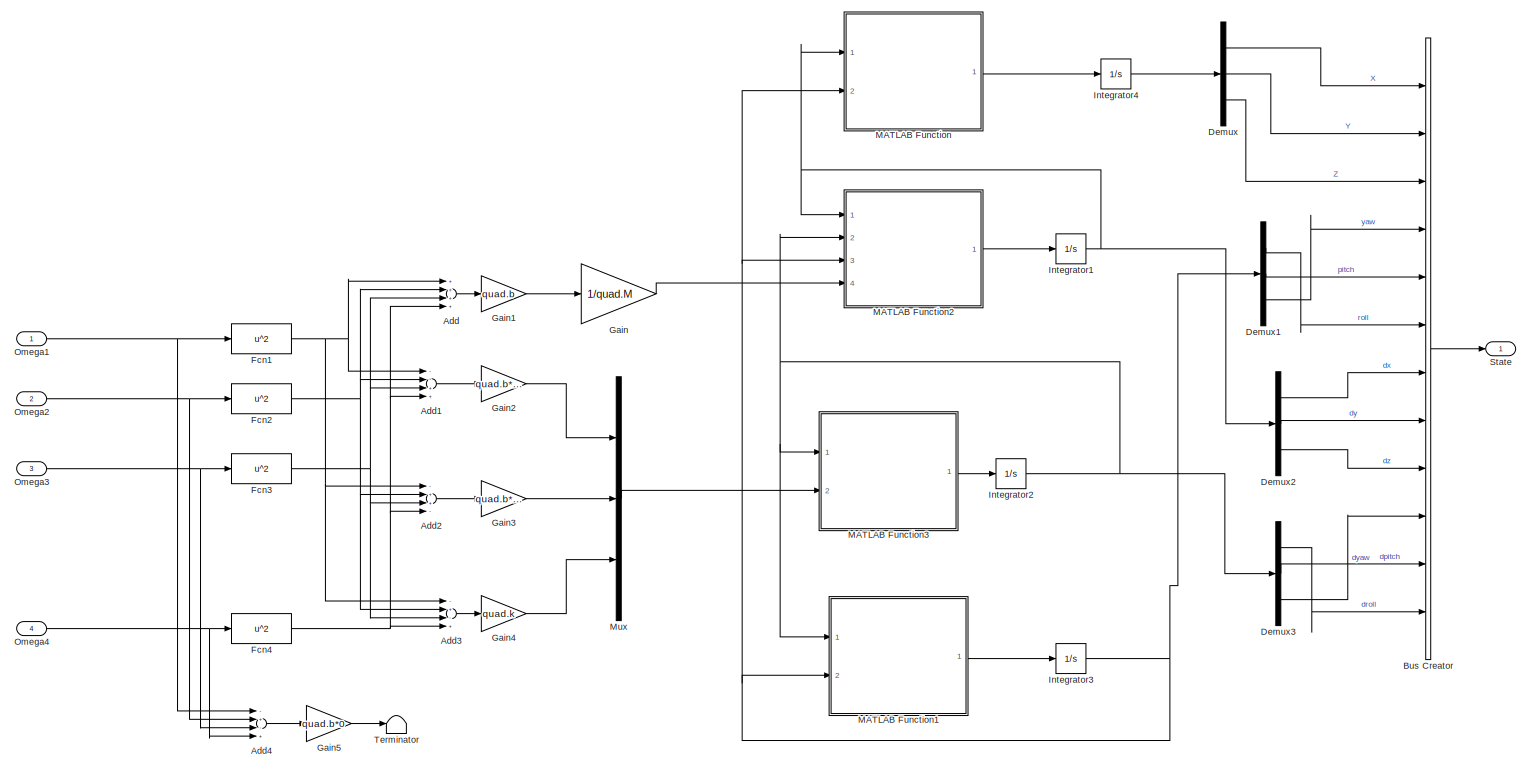
[diagram: Quad_Model_X - part 1/1, most of the canvas]
BLOCK [SubSystem] Quad_Model_X
  Ports = [4, 1]
  RequestExecContextInheritance = off
BLOCK [Sum] Quad_Model_X/Add
  InputSameDT = off
  Inputs = ++++
  OutDataTypeStr = Inherit: Inherit via internal rule
  Ports = [4, 1]
  SaturateOnIntegerOverflow = off
BLOCK [Sum] Quad_Model_X/Add1
  InputSameDT = off
  Inputs = --++
  OutDataTypeStr = Inherit: Inherit via internal rule
  Ports = [4, 1]
  SaturateOnIntegerOverflow = off
BLOCK [Sum] Quad_Model_X/Add2
  InputSameDT = off
  Inputs = -++-
  OutDataTypeStr = Inherit: Inherit via internal rule
  Ports = [4, 1]
  SaturateOnIntegerOverflow = off
BLOCK [Sum] Quad_Model_X/Add3
  InputSameDT = off
  Inputs = -+-+
  OutDataTypeStr = Inherit: Inherit via internal rule
  Ports = [4, 1]
  SaturateOnIntegerOverflow = off
BLOCK [Sum] Quad_Model_X/Add4
  InputSameDT = off
  Inputs = -+-+
  OutDataTypeStr = Inherit: Inherit via internal rule
  Ports = [4, 1]
  SaturateOnIntegerOverflow = off
BLOCK [BusCreator] Quad_Model_X/Bus Creator
  DisplayOption = bar
  InheritFromInputs = on
  Inputs = 12
  Ports = [12, 1]
BLOCK [Demux] Quad_Model_X/Demux
  DisplayOption = bar
  Outputs = 3
  Ports = [1, 3]
BLOCK [Demux] Quad_Model_X/Demux1
  DisplayOption = bar
  Outputs = 3
  Ports = [1, 3]
BLOCK [Demux] Quad_Model_X/Demux2
  DisplayOption = bar
  Outputs = 3
  Ports = [1, 3]
BLOCK [Demux] Quad_Model_X/Demux3
  DisplayOption = bar
  Outputs = 3
  Ports = [1, 3]
BLOCK [Fcn] Quad_Model_X/Fcn1
  Expr = u^2
BLOCK [Fcn] Quad_Model_X/Fcn2
  Expr = u^2
BLOCK [Fcn] Quad_Model_X/Fcn3
  Expr = u^2
BLOCK [Fcn] Quad_Model_X/Fcn4
  Expr = u^2
BLOCK [Gain] Quad_Model_X/Gain
  Gain = 1/quad.M
  OutDataTypeStr = Inherit: Inherit via internal rule
  ParamDataTypeStr = Inherit: Inherit via internal rule
  SaturateOnIntegerOverflow = off
BLOCK [Gain] Quad_Model_X/Gain1
  Gain = quad.b
  OutDataTypeStr = Inherit: Inherit via internal rule
  ParamDataTypeStr = Inherit: Inherit via internal rule
  SaturateOnIntegerOverflow = off
BLOCK [Gain] Quad_Model_X/Gain2
  Gain = quad.b*quad.d*sin(pi/4)
  OutDataTypeStr = Inherit: Inherit via internal rule
  ParamDataTypeStr = Inherit: Inherit via internal rule
  SaturateOnIntegerOverflow = off
BLOCK [Gain] Quad_Model_X/Gain3
  Gain = quad.b*quad.d*sin(pi/4)
  OutDataTypeStr = Inherit: Inherit via internal rule
  ParamDataTypeStr = Inherit: Inherit via internal rule
  SaturateOnIntegerOverflow = off
BLOCK [Gain] Quad_Model_X/Gain4
  Gain = quad.k
  OutDataTypeStr = Inherit: Inherit via internal rule
  ParamDataTypeStr = Inherit: Inherit via internal rule
  SaturateOnIntegerOverflow = off
BLOCK [Gain] Quad_Model_X/Gain5
  Gain = quad.b*0
  OutDataTypeStr = Inherit: Inherit via internal rule
  ParamDataTypeStr = Inherit: Inherit via internal rule
  SaturateOnIntegerOverflow = off
BLOCK [Integrator] Quad_Model_X/Integrator1
  Ports = [1, 1]
BLOCK [Integrator] Quad_Model_X/Integrator2
  Ports = [1, 1]
BLOCK [Integrator] Quad_Model_X/Integrator3
  Ports = [1, 1]
BLOCK [Integrator] Quad_Model_X/Integrator4
  InitialCondition = [0;0;0]
  Ports = [1, 1]
BLOCK [SubSystem] Quad_Model_X/MATLAB Function
  ErrorFcn = Stateflow.Translate.translate
  PermitHierarchicalResolution = ExplicitOnly
  Ports = [2, 1]
  RequestExecContextInheritance = off
  SFBlockType = MATLAB Function
  TreatAsAtomicUnit = on
BLOCK [Demux] Quad_Model_X/MATLAB Function/ Demux 
  Outputs = 1
  Ports = [1, 1]
BLOCK [S-Function] Quad_Model_X/MATLAB Function/ SFunction 
  EnableBusSupport = on
  FunctionName = sf_sfun
  PortCounts = [2 2]
  Ports = [2, 2]
  SFcnIsStateOwnerBlock = off
  SFunctionDeploymentMode = off
  Tag = Stateflow S-Function 1
BLOCK [Terminator] Quad_Model_X/MATLAB Function/ Terminator 
BLOCK [Inport] Quad_Model_X/MATLAB Function/angles
  IconDisplay = Port number
  Port = 2
BLOCK [Inport] Quad_Model_X/MATLAB Function/uvw
  IconDisplay = Port number
BLOCK [Outport] Quad_Model_X/MATLAB Function/xyz_dot
  IconDisplay = Port number
BLOCK [SubSystem] Quad_Model_X/MATLAB Function1
  ErrorFcn = Stateflow.Translate.translate
  PermitHierarchicalResolution = ExplicitOnly
  Ports = [2, 1]
  RequestExecContextInheritance = off
  SFBlockType = MATLAB Function
  TreatAsAtomicUnit = on
BLOCK [Demux] Quad_Model_X/MATLAB Function1/ Demux 
  Outputs = 1
  Ports = [1, 1]
BLOCK [S-Function] Quad_Model_X/MATLAB Function1/ SFunction 
  EnableBusSupport = on
  FunctionName = sf_sfun
  PortCounts = [2 2]
  Ports = [2, 2]
  SFcnIsStateOwnerBlock = off
  SFunctionDeploymentMode = off
  Tag = Stateflow S-Function 2
BLOCK [Terminator] Quad_Model_X/MATLAB Function1/ Terminator 
BLOCK [Inport] Quad_Model_X/MATLAB Function1/angles
  IconDisplay = Port number
  Port = 2
BLOCK [Outport] Quad_Model_X/MATLAB Function1/angles_dot
  IconDisplay = Port number
BLOCK [Inport] Quad_Model_X/MATLAB Function1/pqr
  IconDisplay = Port number
BLOCK [SubSystem] Quad_Model_X/MATLAB Function2
  ErrorFcn = Stateflow.Translate.translate
  PermitHierarchicalResolution = ExplicitOnly
  Ports = [4, 1]
  RequestExecContextInheritance = off
  SFBlockType = MATLAB Function
  TreatAsAtomicUnit = on
BLOCK [Demux] Quad_Model_X/MATLAB Function2/ Demux 
  Outputs = 1
  Ports = [1, 1]
BLOCK [S-Function] Quad_Model_X/MATLAB Function2/ SFunction 
  EnableBusSupport = on
  FunctionName = sf_sfun
  PortCounts = [4 2]
  Ports = [4, 2]
  SFcnIsStateOwnerBlock = off
  SFunctionDeploymentMode = off
  Tag = Stateflow S-Function 5
BLOCK [Terminator] Quad_Model_X/MATLAB Function2/ Terminator 
BLOCK [Inport] Quad_Model_X/MATLAB Function2/F
  IconDisplay = Port number
  Port = 4
BLOCK [Inport] Quad_Model_X/MATLAB Function2/angles
  IconDisplay = Port number
  Port = 3
BLOCK [Inport] Quad_Model_X/MATLAB Function2/pqr
  IconDisplay = Port number
  Port = 2
BLOCK [Inport] Quad_Model_X/MATLAB Function2/uvw
  IconDisplay = Port number
BLOCK [Outport] Quad_Model_X/MATLAB Function2/uvw_dot
  IconDisplay = Port number
BLOCK [SubSystem] Quad_Model_X/MATLAB Function3
  ErrorFcn = Stateflow.Translate.translate
  PermitHierarchicalResolution = ExplicitOnly
  Ports = [2, 1]
  RequestExecContextInheritance = off
  SFBlockType = MATLAB Function
  TreatAsAtomicUnit = on
BLOCK [Demux] Quad_Model_X/MATLAB Function3/ Demux 
  Outputs = 1
  Ports = [1, 1]
BLOCK [S-Function] Quad_Model_X/MATLAB Function3/ SFunction 
  EnableBusSupport = on
  FunctionName = sf_sfun
  PortCounts = [2 2]
  Ports = [2, 2]
  SFcnIsStateOwnerBlock = off
  SFunctionDeploymentMode = off
  Tag = Stateflow S-Function 6
BLOCK [Terminator] Quad_Model_X/MATLAB Function3/ Terminator 
BLOCK [Inport] Quad_Model_X/MATLAB Function3/M
  IconDisplay = Port number
  Port = 2
BLOCK [Inport] Quad_Model_X/MATLAB Function3/pqr
  IconDisplay = Port number
BLOCK [Outport] Quad_Model_X/MATLAB Function3/pqr_dot
  IconDisplay = Port number
BLOCK [Mux] Quad_Model_X/Mux
  DisplayOption = bar
  Inputs = 3
  Ports = [3, 1]
BLOCK [Inport] Quad_Model_X/Omega1
  IconDisplay = Port number
BLOCK [Inport] Quad_Model_X/Omega2
  IconDisplay = Port number
  Port = 2
BLOCK [Inport] Quad_Model_X/Omega3
  IconDisplay = Port number
  Port = 3
BLOCK [Inport] Quad_Model_X/Omega4
  IconDisplay = Port number
  Port = 4
BLOCK [Outport] Quad_Model_X/State
  IconDisplay = Port number
BLOCK [Terminator] Quad_Model_X/Terminator
BLOCK [SubSystem] Quadrotor plot
  AncestorBlock = roblocks/Robot Graphics/Quadrotor plot
  Commented = on
  Ports = [1]
  RequestExecContextInheritance = off
BLOCK [S-Function] Quadrotor plot/Plotter
  EnableBusSupport = off
  FunctionName = quadrotor_plot
  Parameters = [xydim, zdim], 1, 1,quad
  Ports = [1]
  SFcnIsStateOwnerBlock = off
  SFunctionDeploymentMode = off
BLOCK [Inport] Quadrotor plot/X
  IconDisplay = Port number
BLOCK [Reference] Real-Time Pacer1  REF=realtime_pacer_lib/Real-Time Pacer
  Commented = on
  Ports = []
  SourceBlock = realtime_pacer_lib/Real-Time Pacer
  SourceType = RealTime_Pacer
BLOCK [SubSystem] Sensor// Noise1
  Commented = on
  Ports = [1, 1]
  RequestExecContextInheritance = off
BLOCK [BusCreator] Sensor// Noise1/Bus Creator
  DisplayOption = bar
  InheritFromInputs = on
  Inputs = 2
  Ports = [2, 1]
BLOCK [BusCreator] Sensor// Noise1/Bus Creator1
  DisplayOption = bar
  InheritFromInputs = on
  Inputs = 3
  Ports = [3, 1]
BLOCK [BusSelector] Sensor// Noise1/Bus Selector7
  OutputAsBus = off
  OutputSignals = X,Y,Z
  Ports = [1, 3]
BLOCK [BusSelector] Sensor// Noise1/Bus Selector8
  OutputAsBus = on
  OutputSignals = yaw,pitch,roll,dx,dy,dz,dyaw,dpitch,droll
  Ports = [1, 1]
BLOCK [Gain] Sensor// Noise1/Error_X1
  Gain = 0.04
  OutDataTypeStr = Inherit: Inherit via internal rule
  ParamDataTypeStr = Inherit: Inherit via internal rule
  SaturateOnIntegerOverflow = off
BLOCK [Gain] Sensor// Noise1/Error_Y
  Gain = 0.04
  OutDataTypeStr = Inherit: Inherit via internal rule
  ParamDataTypeStr = Inherit: Inherit via internal rule
  SaturateOnIntegerOverflow = off
BLOCK [Gain] Sensor// Noise1/Error_Z
  Gain = 0.04
  OutDataTypeStr = Inherit: Inherit via internal rule
  ParamDataTypeStr = Inherit: Inherit via internal rule
  SaturateOnIntegerOverflow = off
BLOCK [Outport] Sensor// Noise1/Estimation
  IconDisplay = Port number
BLOCK [RandomNumber] Sensor// Noise1/Random Number1
  SampleTime = 0.1
BLOCK [RandomNumber] Sensor// Noise1/Random Number2
  SampleTime = 0.1
BLOCK [RandomNumber] Sensor// Noise1/Random Number3
  SampleTime = 0.1
BLOCK [Inport] Sensor// Noise1/State
  IconDisplay = Port number
BLOCK [Sum] Sensor// Noise1/Sum5
  IconShape = round
  InputSameDT = off
  Inputs = ++|
  OutDataTypeStr = Inherit: Inherit via internal rule
  Ports = [2, 1]
  SaturateOnIntegerOverflow = off
BLOCK [Sum] Sensor// Noise1/Sum6
  IconShape = round
  InputSameDT = off
  Inputs = ++|
  OutDataTypeStr = Inherit: Inherit via internal rule
  Ports = [2, 1]
  SaturateOnIntegerOverflow = off
BLOCK [Sum] Sensor// Noise1/Sum7
  IconShape = round
  InputSameDT = off
  Inputs = ++|
  OutDataTypeStr = Inherit: Inherit via internal rule
  Ports = [2, 1]
  SaturateOnIntegerOverflow = off
BLOCK [StateSpace] State-Space
  A = A
  B = B
  C = C
  D = D
  InitialCondition = [0 0 0 0 0 0 0 0 0 0 0 0]'
  Ports = [1, 1]
BLOCK [Terminator] Terminator
  Commented = on
BLOCK [ToWorkspace] To Workspace1
  FixptAsFi = on
  MaxDataPoints = inf
  Ports = [1]
  SampleTime = -1
  VariableName = state
BLOCK [ToWorkspace] To Workspace2
  FixptAsFi = on
  MaxDataPoints = inf
  Ports = [1]
  SampleTime = -1
  VariableName = t
BLOCK [ToWorkspace] To Workspace3
  FixptAsFi = on
  MaxDataPoints = inf
  Ports = [1]
  SampleTime = -1
  VariableName = state_lin
BLOCK [ToWorkspace] To Workspace4
  FixptAsFi = on
  MaxDataPoints = inf
  Ports = [1]
  SampleTime = -1
  VariableName = x_c
BLOCK [ToWorkspace] To Workspace5
  FixptAsFi = on
  MaxDataPoints = inf
  Ports = [1]
  SampleTime = -1
  VariableName = y_c
BLOCK [ToWorkspace] To Workspace6
  FixptAsFi = on
  MaxDataPoints = inf
  Ports = [1]
  SampleTime = -1
  VariableName = z_c
BLOCK [ToWorkspace] To Workspace7
  FixptAsFi = on
  MaxDataPoints = inf
  Ports = [1]
  SampleTime = -1
  VariableName = psi_c
BLOCK [SubSystem] Trajectory
  Ports = [0, 8]
  RequestExecContextInheritance = off
BLOCK [Constant] Trajectory/Constant
BLOCK [Constant] Trajectory/Constant1
  Value = 0
BLOCK [Constant] Trajectory/Constant2
  Value = 0
BLOCK [Derivative] Trajectory/Derivative
BLOCK [Derivative] Trajectory/Derivative1
BLOCK [Reference] Trajectory/Ramp2  REF=simulink/Sources/Ramp
  Ports = [0, 1]
  SourceBlock = simulink/Sources/Ramp
  SourceProductBaseCode = SL
  SourceProductName = Simulink
  SourceType = Ramp
BLOCK [Outport] Trajectory/X
  IconDisplay = Port number
BLOCK [Outport] Trajectory/X acc
  IconDisplay = Port number
  Port = 7
BLOCK [Outport] Trajectory/X vel 
  IconDisplay = Port number
  Port = 5
BLOCK [Outport] Trajectory/Y
  IconDisplay = Port number
  Port = 2
BLOCK [Outport] Trajectory/Y acc 
  IconDisplay = Port number
  Port = 8
BLOCK [Outport] Trajectory/Y vel
  IconDisplay = Port number
  Port = 6
BLOCK [Outport] Trajectory/Yaw
  IconDisplay = Port number
  Port = 4
BLOCK [Outport] Trajectory/Z
  IconDisplay = Port number
  Port = 3
BLOCK [Sin] Trajectory/x*
  Amplitude = 0.8
  Frequency = 2*pi*0.085
  Phase = 0-0.1
  Ports = [0, 1]
  SampleTime = 0
BLOCK [Sin] Trajectory/y*1
  Amplitude = 0.8
  Frequency = 2*pi*0.085
  Phase = pi/2-0.1
  Ports = [0, 1]
  SampleTime = 0
ANNOTATION (root): Use if you want to add noise in states
ANNOTATION (root): Use if you want to run the simulation in real-time and see a plot of the quadcopter in flight.
ANNOTATION Controller: 100 Hz
ANNOTATION Controller: 250 Hz
ANNOTATION Controller: 500 Hz
ANNOTATION Controller: MAPS TO DESIRED ANGULAR POSITION
ANNOTATION Controller: MAPS TO DESIRED ANGULAR VELOCITY
ANNOTATION Controller: MAPS TO DESIRED LINEAR VELOCITY
ANNOTATION Controller1: 100 Hz
ANNOTATION Controller1: 250 Hz
ANNOTATION Controller1: 500 Hz
ANNOTATION Controller1: MAPS TO DESIRED ANGULAR POSITION
ANNOTATION Controller1: MAPS TO DESIRED ANGULAR VELOCITY
ANNOTATION Controller1: MAPS TO DESIRED LINEAR VELOCITY
ANNOTATION Sensor// Noise1: state
NET Bus Creator1:1 -> Controller1:5, To Workspace3:1
LINE Bus Selector:1 -> Mux1:1
LINE Bus Selector:2 -> Mux1:2
LINE Bus Selector:3 -> Mux1:3
LINE Bus Selector:4 -> Mux1:4
LINE Bus Selector:5 -> Mux1:5
LINE Bus Selector:6 -> Mux1:6
LINE Clock1:1 -> To Workspace2:1
LINE Controller/Altitude_controller/Min_thrust :1 -> Controller/Altitude_controller/Sum3:2
LINE Controller/Altitude_controller/PID_Altitude/Derivative:1 -> Controller/Altitude_controller/PID_Altitude/Kd:1
LINE Controller/Altitude_controller/PID_Altitude/Integrator Limited:1 -> Controller/Altitude_controller/PID_Altitude/Ki:1
LINE Controller/Altitude_controller/PID_Altitude/Kd:1 -> Controller/Altitude_controller/PID_Altitude/Sum5:3
LINE Controller/Altitude_controller/PID_Altitude/Ki:1 -> Controller/Altitude_controller/PID_Altitude/Sum5:2
LINE Controller/Altitude_controller/PID_Altitude/Kp:1 -> Controller/Altitude_controller/PID_Altitude/Sum5:1
LINE Controller/Altitude_controller/PID_Altitude/Measured:1 -> Controller/Altitude_controller/PID_Altitude/Sum6:2
LINE Controller/Altitude_controller/PID_Altitude/Setpoint:1 -> Controller/Altitude_controller/PID_Altitude/Sum6:1
LINE Controller/Altitude_controller/PID_Altitude/Sum5:1 -> Controller/Altitude_controller/PID_Altitude/Adjust:1
NET Controller/Altitude_controller/PID_Altitude/Sum6:1 -> Controller/Altitude_controller/PID_Altitude/Derivative:1, Controller/Altitude_controller/PID_Altitude/Integrator Limited:1, Controller/Altitude_controller/PID_Altitude/Kp:1
LINE Controller/Altitude_controller/PID_Altitude:1 -> Controller/Altitude_controller/Saturation1:1
LINE Controller/Altitude_controller/Saturation1:1 -> Controller/Altitude_controller/Sum3:1
LINE Controller/Altitude_controller/Saturation:1 -> Controller/Altitude_controller/Base_thrust:1
LINE Controller/Altitude_controller/Sum3:1 -> Controller/Altitude_controller/Saturation:1
LINE Controller/Altitude_controller/Z:1 -> Controller/Altitude_controller/PID_Altitude:2
LINE Controller/Altitude_controller/Z_in:1 -> Controller/Altitude_controller/PID_Altitude:1
LINE Controller/Altitude_controller:1 -> Controller/Control_mixer:4
LINE Controller/Attitude_controller/PID_Pitch1/1//dt:1 -> Controller/Attitude_controller/PID_Pitch1/Kd:1
LINE Controller/Attitude_controller/PID_Pitch1/Kd:1 -> Controller/Attitude_controller/PID_Pitch1/Sum5:3
LINE Controller/Attitude_controller/PID_Pitch1/Ki:1 -> Controller/Attitude_controller/PID_Pitch1/Sum5:2
LINE Controller/Attitude_controller/PID_Pitch1/Kp:1 -> Controller/Attitude_controller/PID_Pitch1/Sum5:1
LINE Controller/Attitude_controller/PID_Pitch1/Measured:1 -> Controller/Attitude_controller/PID_Pitch1/Sum6:2
LINE Controller/Attitude_controller/PID_Pitch1/Memory1:1 -> Controller/Attitude_controller/PID_Pitch1/Sum1:2
LINE Controller/Attitude_controller/PID_Pitch1/Memory:1 -> Controller/Attitude_controller/PID_Pitch1/Sum2:2
LINE Controller/Attitude_controller/PID_Pitch1/Saturation:1 -> Controller/Attitude_controller/PID_Pitch1/Ki:1
LINE Controller/Attitude_controller/PID_Pitch1/Setpoint:1 -> Controller/Attitude_controller/PID_Pitch1/Sum6:1
NET Controller/Attitude_controller/PID_Pitch1/Sum1:1 -> Controller/Attitude_controller/PID_Pitch1/Memory1:1, Controller/Attitude_controller/PID_Pitch1/Saturation:1
LINE Controller/Attitude_controller/PID_Pitch1/Sum2:1 -> Controller/Attitude_controller/PID_Pitch1/1//dt:1
LINE Controller/Attitude_controller/PID_Pitch1/Sum5:1 -> Controller/Attitude_controller/PID_Pitch1/Adjust:1
NET Controller/Attitude_controller/PID_Pitch1/Sum6:1 -> Controller/Attitude_controller/PID_Pitch1/Kp:1, Controller/Attitude_controller/PID_Pitch1/Memory:1, Controller/Attitude_controller/PID_Pitch1/Sum2:1, Controller/Attitude_controller/PID_Pitch1/dt:1
LINE Controller/Attitude_controller/PID_Pitch1/dt:1 -> Controller/Attitude_controller/PID_Pitch1/Sum1:1
LINE Controller/Attitude_controller/PID_Pitch3/1//dt:1 -> Controller/Attitude_controller/PID_Pitch3/Kd:1
LINE Controller/Attitude_controller/PID_Pitch3/Kd:1 -> Controller/Attitude_controller/PID_Pitch3/Sum5:3
LINE Controller/Attitude_controller/PID_Pitch3/Ki:1 -> Controller/Attitude_controller/PID_Pitch3/Sum5:2
LINE Controller/Attitude_controller/PID_Pitch3/Kp:1 -> Controller/Attitude_controller/PID_Pitch3/Sum5:1
LINE Controller/Attitude_controller/PID_Pitch3/Measured:1 -> Controller/Attitude_controller/PID_Pitch3/Sum6:2
LINE Controller/Attitude_controller/PID_Pitch3/Memory1:1 -> Controller/Attitude_controller/PID_Pitch3/Sum1:2
LINE Controller/Attitude_controller/PID_Pitch3/Memory:1 -> Controller/Attitude_controller/PID_Pitch3/Sum2:2
LINE Controller/Attitude_controller/PID_Pitch3/Saturation:1 -> Controller/Attitude_controller/PID_Pitch3/Ki:1
LINE Controller/Attitude_controller/PID_Pitch3/Setpoint:1 -> Controller/Attitude_controller/PID_Pitch3/Sum6:1
NET Controller/Attitude_controller/PID_Pitch3/Sum1:1 -> Controller/Attitude_controller/PID_Pitch3/Memory1:1, Controller/Attitude_controller/PID_Pitch3/Saturation:1
LINE Controller/Attitude_controller/PID_Pitch3/Sum2:1 -> Controller/Attitude_controller/PID_Pitch3/1//dt:1
LINE Controller/Attitude_controller/PID_Pitch3/Sum5:1 -> Controller/Attitude_controller/PID_Pitch3/Adjust:1
NET Controller/Attitude_controller/PID_Pitch3/Sum6:1 -> Controller/Attitude_controller/PID_Pitch3/Kp:1, Controller/Attitude_controller/PID_Pitch3/Memory:1, Controller/Attitude_controller/PID_Pitch3/Sum2:1, Controller/Attitude_controller/PID_Pitch3/dt:1
LINE Controller/Attitude_controller/PID_Pitch3/dt:1 -> Controller/Attitude_controller/PID_Pitch3/Sum1:1
LINE Controller/Attitude_controller/PID_Roll_Rate1/Derivative:1 -> Controller/Attitude_controller/PID_Roll_Rate1/Kd:1
NET Controller/Attitude_controller/PID_Roll_Rate1/Integrator Limited:1 -> Controller/Attitude_controller/PID_Roll_Rate1/Ki:1, Controller/Attitude_controller/PID_Roll_Rate1/Scope:1
LINE Controller/Attitude_controller/PID_Roll_Rate1/Kd:1 -> Controller/Attitude_controller/PID_Roll_Rate1/Sum5:3
LINE Controller/Attitude_controller/PID_Roll_Rate1/Ki:1 -> Controller/Attitude_controller/PID_Roll_Rate1/Sum5:2
LINE Controller/Attitude_controller/PID_Roll_Rate1/Kp:1 -> Controller/Attitude_controller/PID_Roll_Rate1/Sum5:1
LINE Controller/Attitude_controller/PID_Roll_Rate1/Measured:1 -> Controller/Attitude_controller/PID_Roll_Rate1/Sum6:2
LINE Controller/Attitude_controller/PID_Roll_Rate1/Setpoint:1 -> Controller/Attitude_controller/PID_Roll_Rate1/Sum6:1
LINE Controller/Attitude_controller/PID_Roll_Rate1/Sum5:1 -> Controller/Attitude_controller/PID_Roll_Rate1/Adjust:1
NET Controller/Attitude_controller/PID_Roll_Rate1/Sum6:1 -> Controller/Attitude_controller/PID_Roll_Rate1/Derivative:1, Controller/Attitude_controller/PID_Roll_Rate1/Integrator Limited:1, Controller/Attitude_controller/PID_Roll_Rate1/Kp:1
LINE Controller/Attitude_controller/PID_Roll_Rate1:1 -> Controller/Attitude_controller/droll_adjust:1
LINE Controller/Attitude_controller/PID_Roll_Rate2/Derivative:1 -> Controller/Attitude_controller/PID_Roll_Rate2/Kd:1
NET Controller/Attitude_controller/PID_Roll_Rate2/Integrator Limited:1 -> Controller/Attitude_controller/PID_Roll_Rate2/Ki:1, Controller/Attitude_controller/PID_Roll_Rate2/Scope:1
LINE Controller/Attitude_controller/PID_Roll_Rate2/Kd:1 -> Controller/Attitude_controller/PID_Roll_Rate2/Sum5:3
LINE Controller/Attitude_controller/PID_Roll_Rate2/Ki:1 -> Controller/Attitude_controller/PID_Roll_Rate2/Sum5:2
LINE Controller/Attitude_controller/PID_Roll_Rate2/Kp:1 -> Controller/Attitude_controller/PID_Roll_Rate2/Sum5:1
LINE Controller/Attitude_controller/PID_Roll_Rate2/Measured:1 -> Controller/Attitude_controller/PID_Roll_Rate2/Sum6:2
LINE Controller/Attitude_controller/PID_Roll_Rate2/Setpoint:1 -> Controller/Attitude_controller/PID_Roll_Rate2/Sum6:1
LINE Controller/Attitude_controller/PID_Roll_Rate2/Sum5:1 -> Controller/Attitude_controller/PID_Roll_Rate2/Adjust:1
NET Controller/Attitude_controller/PID_Roll_Rate2/Sum6:1 -> Controller/Attitude_controller/PID_Roll_Rate2/Derivative:1, Controller/Attitude_controller/PID_Roll_Rate2/Integrator Limited:1, Controller/Attitude_controller/PID_Roll_Rate2/Kp:1
LINE Controller/Attitude_controller/PID_Roll_Rate2:1 -> Controller/Attitude_controller/dpitch_adjust:1
LINE Controller/Attitude_controller/pitch:1 -> Controller/Attitude_controller/PID_Roll_Rate2:2
LINE Controller/Attitude_controller/pitch_in:1 -> Controller/Attitude_controller/PID_Roll_Rate2:1
LINE Controller/Attitude_controller/roll:1 -> Controller/Attitude_controller/PID_Roll_Rate1:2
LINE Controller/Attitude_controller/roll_in:1 -> Controller/Attitude_controller/PID_Roll_Rate1:1
LINE Controller/Attitude_controller:1 -> Controller/Rate_controller:1
LINE Controller/Attitude_controller:2 -> Controller/Rate_controller:2
LINE Controller/Bus Selector10:1 -> Controller/Position_error:4
LINE Controller/Bus Selector11:1 -> Controller/Position_error:5
LINE Controller/Bus Selector12:1 -> Controller/Gain6:1
LINE Controller/Bus Selector1:1 -> Controller/Gain5:1
LINE Controller/Bus Selector2:1 -> Controller/Gain4:1
LINE Controller/Bus Selector3:1 -> Controller/Gain3:1
LINE Controller/Bus Selector4:1 -> Controller/Gain7:1
LINE Controller/Bus Selector5:1 -> Controller/Altitude_controller:2
LINE Controller/Bus Selector6:1 -> Controller/Gain1:1
LINE Controller/Bus Selector7:1 -> Controller/Position_controller:3
LINE Controller/Bus Selector8:1 -> Controller/Position_controller:4
LINE Controller/Bus Selector9:1 -> Controller/Position_error:3
NET Controller/Control_mixer/Configuration_+/Pitch:1 -> Controller/Control_mixer/Configuration_+/Sum1:1, Controller/Control_mixer/Configuration_+/Sum5:1
NET Controller/Control_mixer/Configuration_+/Roll:1 -> Controller/Control_mixer/Configuration_+/Sum3:1, Controller/Control_mixer/Configuration_+/Sum7:1
LINE Controller/Control_mixer/Configuration_+/Sum10:1 -> Controller/Control_mixer/Configuration_+/W2:1
LINE Controller/Control_mixer/Configuration_+/Sum11:1 -> Controller/Control_mixer/Configuration_+/W3:1
LINE Controller/Control_mixer/Configuration_+/Sum12:1 -> Controller/Control_mixer/Configuration_+/W4:1
LINE Controller/Control_mixer/Configuration_+/Sum1:1 -> Controller/Control_mixer/Configuration_+/Sum9:1
LINE Controller/Control_mixer/Configuration_+/Sum3:1 -> Controller/Control_mixer/Configuration_+/Sum10:1
LINE Controller/Control_mixer/Configuration_+/Sum5:1 -> Controller/Control_mixer/Configuration_+/Sum11:1
LINE Controller/Control_mixer/Configuration_+/Sum7:1 -> Controller/Control_mixer/Configuration_+/Sum12:1
LINE Controller/Control_mixer/Configuration_+/Sum9:1 -> Controller/Control_mixer/Configuration_+/W1:1
NET Controller/Control_mixer/Configuration_+/Tau:1 -> Controller/Control_mixer/Configuration_+/Sum10:2, Controller/Control_mixer/Configuration_+/Sum11:2, Controller/Control_mixer/Configuration_+/Sum12:2, Controller/Control_mixer/Configuration_+/Sum9:2
NET Controller/Control_mixer/Configuration_+/Yaw:1 -> Controller/Control_mixer/Configuration_+/Sum1:2, Controller/Control_mixer/Configuration_+/Sum3:2, Controller/Control_mixer/Configuration_+/Sum5:2, Controller/Control_mixer/Configuration_+/Sum7:2
LINE Controller/Control_mixer/Configuration_+:1 -> Controller/Control_mixer/Mux:1
LINE Controller/Control_mixer/Configuration_+:2 -> Controller/Control_mixer/Mux:2
LINE Controller/Control_mixer/Configuration_+:3 -> Controller/Control_mixer/Mux:3
LINE Controller/Control_mixer/Configuration_+:4 -> Controller/Control_mixer/Mux:4
NET Controller/Control_mixer/Configuration_X1/Gain1:1 -> Controller/Control_mixer/Configuration_X1/Sum1:2, Controller/Control_mixer/Configuration_X1/Sum3:1, Controller/Control_mixer/Configuration_X1/Sum5:1, Controller/Control_mixer/Configuration_X1/Sum7:2
NET Controller/Control_mixer/Configuration_X1/Gain:1 -> Controller/Control_mixer/Configuration_X1/Sum1:1, Controller/Control_mixer/Configuration_X1/Sum3:2, Controller/Control_mixer/Configuration_X1/Sum5:2, Controller/Control_mixer/Configuration_X1/Sum7:1
LINE Controller/Control_mixer/Configuration_X1/Pitch:1 -> Controller/Control_mixer/Configuration_X1/Gain:1
LINE Controller/Control_mixer/Configuration_X1/Roll:1 -> Controller/Control_mixer/Configuration_X1/Gain1:1
LINE Controller/Control_mixer/Configuration_X1/Sum10:1 -> Controller/Control_mixer/Configuration_X1/W2:1
LINE Controller/Control_mixer/Configuration_X1/Sum11:1 -> Controller/Control_mixer/Configuration_X1/W3:1
LINE Controller/Control_mixer/Configuration_X1/Sum12:1 -> Controller/Control_mixer/Configuration_X1/W4:1
LINE Controller/Control_mixer/Configuration_X1/Sum1:1 -> Controller/Control_mixer/Configuration_X1/Sum10:1
LINE Controller/Control_mixer/Configuration_X1/Sum3:1 -> Controller/Control_mixer/Configuration_X1/Sum11:1
LINE Controller/Control_mixer/Configuration_X1/Sum5:1 -> Controller/Control_mixer/Configuration_X1/Sum12:1
LINE Controller/Control_mixer/Configuration_X1/Sum7:1 -> Controller/Control_mixer/Configuration_X1/Sum9:1
LINE Controller/Control_mixer/Configuration_X1/Sum9:1 -> Controller/Control_mixer/Configuration_X1/W1:1
NET Controller/Control_mixer/Configuration_X1/Tau:1 -> Controller/Control_mixer/Configuration_X1/Sum10:2, Controller/Control_mixer/Configuration_X1/Sum11:2, Controller/Control_mixer/Configuration_X1/Sum12:2, Controller/Control_mixer/Configuration_X1/Sum9:2
NET Controller/Control_mixer/Configuration_X1/Yaw:1 -> Controller/Control_mixer/Configuration_X1/Sum1:3, Controller/Control_mixer/Configuration_X1/Sum3:3, Controller/Control_mixer/Configuration_X1/Sum5:3, Controller/Control_mixer/Configuration_X1/Sum7:3
LINE Controller/Control_mixer/Configuration_X1:1 -> Controller/Control_mixer/Mux1:1
LINE Controller/Control_mixer/Configuration_X1:2 -> Controller/Control_mixer/Mux1:2
LINE Controller/Control_mixer/Configuration_X1:3 -> Controller/Control_mixer/Mux1:3
LINE Controller/Control_mixer/Configuration_X1:4 -> Controller/Control_mixer/Mux1:4
LINE Controller/Control_mixer/Mode_Selector:1 -> Controller/Control_mixer/Multiport Switch:1
LINE Controller/Control_mixer/Multiport Switch:1 -> Controller/Control_mixer/PWM:1
LINE Controller/Control_mixer/Mux1:1 -> Controller/Control_mixer/Multiport Switch:3
LINE Controller/Control_mixer/Mux:1 -> Controller/Control_mixer/Multiport Switch:2
NET Controller/Control_mixer/Pitch:1 -> Controller/Control_mixer/Configuration_+:1, Controller/Control_mixer/Configuration_X1:1
NET Controller/Control_mixer/Roll	:1 -> Controller/Control_mixer/Configuration_+:2, Controller/Control_mixer/Configuration_X1:2
NET Controller/Control_mixer/T:1 -> Controller/Control_mixer/Configuration_+:4, Controller/Control_mixer/Configuration_X1:4
NET Controller/Control_mixer/Yaw:1 -> Controller/Control_mixer/Configuration_+:3, Controller/Control_mixer/Configuration_X1:3
LINE Controller/Control_mixer:1 -> Controller/Motors_PWM:1
LINE Controller/Gain1:1 -> Controller/Attitude_controller:4
LINE Controller/Gain3:1 -> Controller/Attitude_controller:3
LINE Controller/Gain4:1 -> Controller/Rate_controller:4
LINE Controller/Gain5:1 -> Controller/Rate_controller:3
LINE Controller/Gain6:1 -> Controller/Yaw_Position_controller:2
LINE Controller/Gain7:1 -> Controller/Yaw_Rate_controller:2
LINE Controller/Position_controller/PID_Roll_Rate2/Derivative:1 -> Controller/Position_controller/PID_Roll_Rate2/Kd:1
NET Controller/Position_controller/PID_Roll_Rate2/Integrator Limited:1 -> Controller/Position_controller/PID_Roll_Rate2/Ki:1, Controller/Position_controller/PID_Roll_Rate2/Scope:1
LINE Controller/Position_controller/PID_Roll_Rate2/Kd:1 -> Controller/Position_controller/PID_Roll_Rate2/Sum5:3
LINE Controller/Position_controller/PID_Roll_Rate2/Ki:1 -> Controller/Position_controller/PID_Roll_Rate2/Sum5:2
LINE Controller/Position_controller/PID_Roll_Rate2/Kp:1 -> Controller/Position_controller/PID_Roll_Rate2/Sum5:1
LINE Controller/Position_controller/PID_Roll_Rate2/Measured:1 -> Controller/Position_controller/PID_Roll_Rate2/Sum6:2
LINE Controller/Position_controller/PID_Roll_Rate2/Setpoint:1 -> Controller/Position_controller/PID_Roll_Rate2/Sum6:1
LINE Controller/Position_controller/PID_Roll_Rate2/Sum5:1 -> Controller/Position_controller/PID_Roll_Rate2/Adjust:1
NET Controller/Position_controller/PID_Roll_Rate2/Sum6:1 -> Controller/Position_controller/PID_Roll_Rate2/Derivative:1, Controller/Position_controller/PID_Roll_Rate2/Integrator Limited:1, Controller/Position_controller/PID_Roll_Rate2/Kp:1
NET Controller/Position_controller/PID_Roll_Rate2:1 -> Controller/Position_controller/Saturation:1, Controller/Position_controller/Scope2:1
LINE Controller/Position_controller/PID_Roll_Rate3/Derivative:1 -> Controller/Position_controller/PID_Roll_Rate3/Kd:1
NET Controller/Position_controller/PID_Roll_Rate3/Integrator Limited:1 -> Controller/Position_controller/PID_Roll_Rate3/Ki:1, Controller/Position_controller/PID_Roll_Rate3/Scope:1
LINE Controller/Position_controller/PID_Roll_Rate3/Kd:1 -> Controller/Position_controller/PID_Roll_Rate3/Sum5:3
LINE Controller/Position_controller/PID_Roll_Rate3/Ki:1 -> Controller/Position_controller/PID_Roll_Rate3/Sum5:2
LINE Controller/Position_controller/PID_Roll_Rate3/Kp:1 -> Controller/Position_controller/PID_Roll_Rate3/Sum5:1
LINE Controller/Position_controller/PID_Roll_Rate3/Measured:1 -> Controller/Position_controller/PID_Roll_Rate3/Sum6:2
LINE Controller/Position_controller/PID_Roll_Rate3/Setpoint:1 -> Controller/Position_controller/PID_Roll_Rate3/Sum6:1
LINE Controller/Position_controller/PID_Roll_Rate3/Sum5:1 -> Controller/Position_controller/PID_Roll_Rate3/Adjust:1
NET Controller/Position_controller/PID_Roll_Rate3/Sum6:1 -> Controller/Position_controller/PID_Roll_Rate3/Derivative:1, Controller/Position_controller/PID_Roll_Rate3/Integrator Limited:1, Controller/Position_controller/PID_Roll_Rate3/Kp:1
LINE Controller/Position_controller/PID_Roll_Rate3:1 -> Controller/Position_controller/Saturation1:1
LINE Controller/Position_controller/PID_X2/1//dt:1 -> Controller/Position_controller/PID_X2/Kd:1
LINE Controller/Position_controller/PID_X2/Kd:1 -> Controller/Position_controller/PID_X2/Sum5:3
LINE Controller/Position_controller/PID_X2/Ki:1 -> Controller/Position_controller/PID_X2/Sum5:2
LINE Controller/Position_controller/PID_X2/Kp:1 -> Controller/Position_controller/PID_X2/Sum5:1
LINE Controller/Position_controller/PID_X2/Measured:1 -> Controller/Position_controller/PID_X2/Sum6:2
LINE Controller/Position_controller/PID_X2/Memory1:1 -> Controller/Position_controller/PID_X2/Sum1:2
LINE Controller/Position_controller/PID_X2/Memory:1 -> Controller/Position_controller/PID_X2/Sum2:2
NET Controller/Position_controller/PID_X2/Saturation:1 -> Controller/Position_controller/PID_X2/Ki:1, Controller/Position_controller/PID_X2/Scope2:1
LINE Controller/Position_controller/PID_X2/Setpoint:1 -> Controller/Position_controller/PID_X2/Sum6:1
NET Controller/Position_controller/PID_X2/Sum1:1 -> Controller/Position_controller/PID_X2/Memory1:1, Controller/Position_controller/PID_X2/Saturation:1, Controller/Position_controller/PID_X2/Scope1:1
LINE Controller/Position_controller/PID_X2/Sum2:1 -> Controller/Position_controller/PID_X2/1//dt:1
LINE Controller/Position_controller/PID_X2/Sum5:1 -> Controller/Position_controller/PID_X2/Adjust:1
NET Controller/Position_controller/PID_X2/Sum6:1 -> Controller/Position_controller/PID_X2/Kp:1, Controller/Position_controller/PID_X2/Memory:1, Controller/Position_controller/PID_X2/Sum2:1, Controller/Position_controller/PID_X2/dt:1
LINE Controller/Position_controller/PID_X2/dt:1 -> Controller/Position_controller/PID_X2/Sum1:1
LINE Controller/Position_controller/PID_Y2/1//dt:1 -> Controller/Position_controller/PID_Y2/Kd:1
LINE Controller/Position_controller/PID_Y2/Kd:1 -> Controller/Position_controller/PID_Y2/Sum5:3
LINE Controller/Position_controller/PID_Y2/Ki:1 -> Controller/Position_controller/PID_Y2/Sum5:2
LINE Controller/Position_controller/PID_Y2/Kp:1 -> Controller/Position_controller/PID_Y2/Sum5:1
LINE Controller/Position_controller/PID_Y2/Measured:1 -> Controller/Position_controller/PID_Y2/Sum6:2
LINE Controller/Position_controller/PID_Y2/Memory1:1 -> Controller/Position_controller/PID_Y2/Sum1:2
LINE Controller/Position_controller/PID_Y2/Memory:1 -> Controller/Position_controller/PID_Y2/Sum2:2
NET Controller/Position_controller/PID_Y2/Saturation:1 -> Controller/Position_controller/PID_Y2/Ki:1, Controller/Position_controller/PID_Y2/Scope2:1
LINE Controller/Position_controller/PID_Y2/Setpoint:1 -> Controller/Position_controller/PID_Y2/Sum6:1
NET Controller/Position_controller/PID_Y2/Sum1:1 -> Controller/Position_controller/PID_Y2/Memory1:1, Controller/Position_controller/PID_Y2/Saturation:1, Controller/Position_controller/PID_Y2/Scope1:1
LINE Controller/Position_controller/PID_Y2/Sum2:1 -> Controller/Position_controller/PID_Y2/1//dt:1
LINE Controller/Position_controller/PID_Y2/Sum5:1 -> Controller/Position_controller/PID_Y2/Adjust:1
NET Controller/Position_controller/PID_Y2/Sum6:1 -> Controller/Position_controller/PID_Y2/Kp:1, Controller/Position_controller/PID_Y2/Memory:1, Controller/Position_controller/PID_Y2/Sum2:1, Controller/Position_controller/PID_Y2/dt:1
LINE Controller/Position_controller/PID_Y2/dt:1 -> Controller/Position_controller/PID_Y2/Sum1:1
LINE Controller/Position_controller/Saturation1:1 -> Controller/Position_controller/roll_adjust:1
NET Controller/Position_controller/Saturation:1 -> Controller/Position_controller/Scope1:1, Controller/Position_controller/pitch_adjust:1
LINE Controller/Position_controller/X_error:1 -> Controller/Position_controller/PID_Roll_Rate2:1
LINE Controller/Position_controller/Y_error:1 -> Controller/Position_controller/PID_Roll_Rate3:1
LINE Controller/Position_controller/dX:1 -> Controller/Position_controller/PID_Roll_Rate2:2
LINE Controller/Position_controller/dY:1 -> Controller/Position_controller/PID_Roll_Rate3:2
LINE Controller/Position_controller:1 -> Controller/Attitude_controller:1
LINE Controller/Position_controller:2 -> Controller/Attitude_controller:2
NET Controller/Position_error/Fcn1:1 -> Controller/Position_error/Product1:2, Controller/Position_error/Product:2
NET Controller/Position_error/Fcn:1 -> Controller/Position_error/Product2:2, Controller/Position_error/Product3:2
LINE Controller/Position_error/Product1:1 -> Controller/Position_error/Sum4:1
LINE Controller/Position_error/Product2:1 -> Controller/Position_error/Sum2:2
LINE Controller/Position_error/Product3:1 -> Controller/Position_error/Sum4:2
LINE Controller/Position_error/Product:1 -> Controller/Position_error/Sum2:1
NET Controller/Position_error/Psi:1 -> Controller/Position_error/Fcn1:1, Controller/Position_error/Fcn:1
NET Controller/Position_error/Sum1:1 -> Controller/Position_error/Product1:1, Controller/Position_error/Product2:1
LINE Controller/Position_error/Sum2:1 -> Controller/Position_error/X Error in body Frame:1
LINE Controller/Position_error/Sum4:1 -> Controller/Position_error/Y Error in Body Frame:1
NET Controller/Position_error/Sum:1 -> Controller/Position_error/Product3:1, Controller/Position_error/Product:1
LINE Controller/Position_error/X:1 -> Controller/Position_error/Sum:2
LINE Controller/Position_error/X_cmd:1 -> Controller/Position_error/Sum:1
LINE Controller/Position_error/Y:1 -> Controller/Position_error/Sum1:2
LINE Controller/Position_error/Y_cmd:1 -> Controller/Position_error/Sum1:1
LINE Controller/Position_error:1 -> Controller/Position_controller:1
LINE Controller/Position_error:2 -> Controller/Position_controller:2
LINE Controller/Rate_controller/PID_Pitch_Rate1/1//dt:1 -> Controller/Rate_controller/PID_Pitch_Rate1/Kd:1
LINE Controller/Rate_controller/PID_Pitch_Rate1/Kd:1 -> Controller/Rate_controller/PID_Pitch_Rate1/Sum5:3
LINE Controller/Rate_controller/PID_Pitch_Rate1/Ki:1 -> Controller/Rate_controller/PID_Pitch_Rate1/Sum5:2
LINE Controller/Rate_controller/PID_Pitch_Rate1/Kp:1 -> Controller/Rate_controller/PID_Pitch_Rate1/Sum5:1
LINE Controller/Rate_controller/PID_Pitch_Rate1/Measured:1 -> Controller/Rate_controller/PID_Pitch_Rate1/Sum6:2
LINE Controller/Rate_controller/PID_Pitch_Rate1/Memory1:1 -> Controller/Rate_controller/PID_Pitch_Rate1/Sum1:2
LINE Controller/Rate_controller/PID_Pitch_Rate1/Memory:1 -> Controller/Rate_controller/PID_Pitch_Rate1/Sum2:2
LINE Controller/Rate_controller/PID_Pitch_Rate1/Saturation:1 -> Controller/Rate_controller/PID_Pitch_Rate1/Ki:1
LINE Controller/Rate_controller/PID_Pitch_Rate1/Setpoint:1 -> Controller/Rate_controller/PID_Pitch_Rate1/Sum6:1
NET Controller/Rate_controller/PID_Pitch_Rate1/Sum1:1 -> Controller/Rate_controller/PID_Pitch_Rate1/Memory1:1, Controller/Rate_controller/PID_Pitch_Rate1/Saturation:1
LINE Controller/Rate_controller/PID_Pitch_Rate1/Sum2:1 -> Controller/Rate_controller/PID_Pitch_Rate1/1//dt:1
LINE Controller/Rate_controller/PID_Pitch_Rate1/Sum5:1 -> Controller/Rate_controller/PID_Pitch_Rate1/Adjust:1
NET Controller/Rate_controller/PID_Pitch_Rate1/Sum6:1 -> Controller/Rate_controller/PID_Pitch_Rate1/Kp:1, Controller/Rate_controller/PID_Pitch_Rate1/Memory:1, Controller/Rate_controller/PID_Pitch_Rate1/Sum2:1, Controller/Rate_controller/PID_Pitch_Rate1/dt:1
LINE Controller/Rate_controller/PID_Pitch_Rate1/dt:1 -> Controller/Rate_controller/PID_Pitch_Rate1/Sum1:1
LINE Controller/Rate_controller/PID_Pitch_Rate3/1//dt:1 -> Controller/Rate_controller/PID_Pitch_Rate3/Kd:1
LINE Controller/Rate_controller/PID_Pitch_Rate3/Kd:1 -> Controller/Rate_controller/PID_Pitch_Rate3/Sum5:3
LINE Controller/Rate_controller/PID_Pitch_Rate3/Ki:1 -> Controller/Rate_controller/PID_Pitch_Rate3/Sum5:2
LINE Controller/Rate_controller/PID_Pitch_Rate3/Kp:1 -> Controller/Rate_controller/PID_Pitch_Rate3/Sum5:1
LINE Controller/Rate_controller/PID_Pitch_Rate3/Measured:1 -> Controller/Rate_controller/PID_Pitch_Rate3/Sum6:2
LINE Controller/Rate_controller/PID_Pitch_Rate3/Memory1:1 -> Controller/Rate_controller/PID_Pitch_Rate3/Sum1:2
LINE Controller/Rate_controller/PID_Pitch_Rate3/Memory:1 -> Controller/Rate_controller/PID_Pitch_Rate3/Sum2:2
LINE Controller/Rate_controller/PID_Pitch_Rate3/Saturation:1 -> Controller/Rate_controller/PID_Pitch_Rate3/Ki:1
LINE Controller/Rate_controller/PID_Pitch_Rate3/Setpoint:1 -> Controller/Rate_controller/PID_Pitch_Rate3/Sum6:1
NET Controller/Rate_controller/PID_Pitch_Rate3/Sum1:1 -> Controller/Rate_controller/PID_Pitch_Rate3/Memory1:1, Controller/Rate_controller/PID_Pitch_Rate3/Saturation:1
LINE Controller/Rate_controller/PID_Pitch_Rate3/Sum2:1 -> Controller/Rate_controller/PID_Pitch_Rate3/1//dt:1
LINE Controller/Rate_controller/PID_Pitch_Rate3/Sum5:1 -> Controller/Rate_controller/PID_Pitch_Rate3/Adjust:1
NET Controller/Rate_controller/PID_Pitch_Rate3/Sum6:1 -> Controller/Rate_controller/PID_Pitch_Rate3/Kp:1, Controller/Rate_controller/PID_Pitch_Rate3/Memory:1, Controller/Rate_controller/PID_Pitch_Rate3/Sum2:1, Controller/Rate_controller/PID_Pitch_Rate3/dt:1
LINE Controller/Rate_controller/PID_Pitch_Rate3/dt:1 -> Controller/Rate_controller/PID_Pitch_Rate3/Sum1:1
LINE Controller/Rate_controller/PID_Roll_Rate1/Derivative:1 -> Controller/Rate_controller/PID_Roll_Rate1/Kd:1
NET Controller/Rate_controller/PID_Roll_Rate1/Integrator Limited:1 -> Controller/Rate_controller/PID_Roll_Rate1/Ki:1, Controller/Rate_controller/PID_Roll_Rate1/Scope:1
LINE Controller/Rate_controller/PID_Roll_Rate1/Kd:1 -> Controller/Rate_controller/PID_Roll_Rate1/Sum5:3
LINE Controller/Rate_controller/PID_Roll_Rate1/Ki:1 -> Controller/Rate_controller/PID_Roll_Rate1/Sum5:2
LINE Controller/Rate_controller/PID_Roll_Rate1/Kp:1 -> Controller/Rate_controller/PID_Roll_Rate1/Sum5:1
LINE Controller/Rate_controller/PID_Roll_Rate1/Measured:1 -> Controller/Rate_controller/PID_Roll_Rate1/Sum6:2
LINE Controller/Rate_controller/PID_Roll_Rate1/Setpoint:1 -> Controller/Rate_controller/PID_Roll_Rate1/Sum6:1
LINE Controller/Rate_controller/PID_Roll_Rate1/Sum5:1 -> Controller/Rate_controller/PID_Roll_Rate1/Adjust:1
NET Controller/Rate_controller/PID_Roll_Rate1/Sum6:1 -> Controller/Rate_controller/PID_Roll_Rate1/Derivative:1, Controller/Rate_controller/PID_Roll_Rate1/Integrator Limited:1, Controller/Rate_controller/PID_Roll_Rate1/Kp:1
LINE Controller/Rate_controller/PID_Roll_Rate1:1 -> Controller/Rate_controller/roll_command:1
LINE Controller/Rate_controller/PID_Roll_Rate3/Derivative:1 -> Controller/Rate_controller/PID_Roll_Rate3/Kd:1
NET Controller/Rate_controller/PID_Roll_Rate3/Integrator Limited:1 -> Controller/Rate_controller/PID_Roll_Rate3/Ki:1, Controller/Rate_controller/PID_Roll_Rate3/Scope:1
LINE Controller/Rate_controller/PID_Roll_Rate3/Kd:1 -> Controller/Rate_controller/PID_Roll_Rate3/Sum5:3
LINE Controller/Rate_controller/PID_Roll_Rate3/Ki:1 -> Controller/Rate_controller/PID_Roll_Rate3/Sum5:2
LINE Controller/Rate_controller/PID_Roll_Rate3/Kp:1 -> Controller/Rate_controller/PID_Roll_Rate3/Sum5:1
LINE Controller/Rate_controller/PID_Roll_Rate3/Measured:1 -> Controller/Rate_controller/PID_Roll_Rate3/Sum6:2
LINE Controller/Rate_controller/PID_Roll_Rate3/Setpoint:1 -> Controller/Rate_controller/PID_Roll_Rate3/Sum6:1
LINE Controller/Rate_controller/PID_Roll_Rate3/Sum5:1 -> Controller/Rate_controller/PID_Roll_Rate3/Adjust:1
NET Controller/Rate_controller/PID_Roll_Rate3/Sum6:1 -> Controller/Rate_controller/PID_Roll_Rate3/Derivative:1, Controller/Rate_controller/PID_Roll_Rate3/Integrator Limited:1, Controller/Rate_controller/PID_Roll_Rate3/Kp:1
LINE Controller/Rate_controller/PID_Roll_Rate3:1 -> Controller/Rate_controller/pitch_command:1
LINE Controller/Rate_controller/dpitch:1 -> Controller/Rate_controller/PID_Roll_Rate3:2
LINE Controller/Rate_controller/dpitch_adjust:1 -> Controller/Rate_controller/PID_Roll_Rate3:1
LINE Controller/Rate_controller/droll:1 -> Controller/Rate_controller/PID_Roll_Rate1:2
LINE Controller/Rate_controller/droll_adjust:1 -> Controller/Rate_controller/PID_Roll_Rate1:1
LINE Controller/Rate_controller:1 -> Controller/Control_mixer:1
LINE Controller/Rate_controller:2 -> Controller/Control_mixer:2
LINE Controller/Saturation:1 -> Controller/Yaw_Rate_controller:1
NET Controller/State:1 -> Controller/Bus Selector10:1, Controller/Bus Selector11:1, Controller/Bus Selector12:1, Controller/Bus Selector1:1, Controller/Bus Selector2:1, Controller/Bus Selector3:1, Controller/Bus Selector4:1, Controller/Bus Selector5:1, Controller/Bus Selector6:1, Controller/Bus Selector7:1, Controller/Bus Selector8:1, Controller/Bus Selector9:1
LINE Controller/X:1 -> Controller/Position_error:1
LINE Controller/Y:1 -> Controller/Position_error:2
LINE Controller/Yaw:1 -> Controller/Yaw_Position_controller:1
LINE Controller/Yaw_Position_controller/1//dt:1 -> Controller/Yaw_Position_controller/Kd:1
LINE Controller/Yaw_Position_controller/Kd:1 -> Controller/Yaw_Position_controller/Sum5:3
LINE Controller/Yaw_Position_controller/Ki:1 -> Controller/Yaw_Position_controller/Sum5:2
LINE Controller/Yaw_Position_controller/Kp:1 -> Controller/Yaw_Position_controller/Sum5:1
LINE Controller/Yaw_Position_controller/Measured:1 -> Controller/Yaw_Position_controller/Sum6:2
LINE Controller/Yaw_Position_controller/Memory1:1 -> Controller/Yaw_Position_controller/Sum1:2
LINE Controller/Yaw_Position_controller/Memory:1 -> Controller/Yaw_Position_controller/Sum2:2
LINE Controller/Yaw_Position_controller/Saturation:1 -> Controller/Yaw_Position_controller/Ki:1
LINE Controller/Yaw_Position_controller/Setpoint:1 -> Controller/Yaw_Position_controller/Sum6:1
NET Controller/Yaw_Position_controller/Sum1:1 -> Controller/Yaw_Position_controller/Memory1:1, Controller/Yaw_Position_controller/Saturation:1
LINE Controller/Yaw_Position_controller/Sum2:1 -> Controller/Yaw_Position_controller/1//dt:1
LINE Controller/Yaw_Position_controller/Sum5:1 -> Controller/Yaw_Position_controller/Adjust:1
NET Controller/Yaw_Position_controller/Sum6:1 -> Controller/Yaw_Position_controller/Kp:1, Controller/Yaw_Position_controller/Memory:1, Controller/Yaw_Position_controller/Sum2:1, Controller/Yaw_Position_controller/dt:1
LINE Controller/Yaw_Position_controller/dt:1 -> Controller/Yaw_Position_controller/Sum1:1
LINE Controller/Yaw_Position_controller:1 -> Controller/Saturation:1
LINE Controller/Yaw_Rate_controller/1//dt:1 -> Controller/Yaw_Rate_controller/Kd:1
LINE Controller/Yaw_Rate_controller/Kd:1 -> Controller/Yaw_Rate_controller/Sum5:3
LINE Controller/Yaw_Rate_controller/Ki:1 -> Controller/Yaw_Rate_controller/Sum5:2
LINE Controller/Yaw_Rate_controller/Kp:1 -> Controller/Yaw_Rate_controller/Sum5:1
LINE Controller/Yaw_Rate_controller/Measured:1 -> Controller/Yaw_Rate_controller/Sum6:2
LINE Controller/Yaw_Rate_controller/Memory1:1 -> Controller/Yaw_Rate_controller/Sum1:2
LINE Controller/Yaw_Rate_controller/Memory:1 -> Controller/Yaw_Rate_controller/Sum2:2
LINE Controller/Yaw_Rate_controller/Saturation:1 -> Controller/Yaw_Rate_controller/Ki:1
LINE Controller/Yaw_Rate_controller/Setpoint:1 -> Controller/Yaw_Rate_controller/Sum6:1
NET Controller/Yaw_Rate_controller/Sum1:1 -> Controller/Yaw_Rate_controller/Memory1:1, Controller/Yaw_Rate_controller/Saturation:1
LINE Controller/Yaw_Rate_controller/Sum2:1 -> Controller/Yaw_Rate_controller/1//dt:1
LINE Controller/Yaw_Rate_controller/Sum5:1 -> Controller/Yaw_Rate_controller/Adjust:1
NET Controller/Yaw_Rate_controller/Sum6:1 -> Controller/Yaw_Rate_controller/Kp:1, Controller/Yaw_Rate_controller/Memory:1, Controller/Yaw_Rate_controller/Sum2:1, Controller/Yaw_Rate_controller/dt:1
LINE Controller/Yaw_Rate_controller/dt:1 -> Controller/Yaw_Rate_controller/Sum1:1
LINE Controller/Yaw_Rate_controller:1 -> Controller/Control_mixer:3
LINE Controller/Z:1 -> Controller/Altitude_controller:1
LINE Controller1/Altitude_controller/Min_thrust :1 -> Controller1/Altitude_controller/Sum3:2
LINE Controller1/Altitude_controller/PID_Altitude/Derivative:1 -> Controller1/Altitude_controller/PID_Altitude/Kd:1
LINE Controller1/Altitude_controller/PID_Altitude/Integrator Limited:1 -> Controller1/Altitude_controller/PID_Altitude/Ki:1
LINE Controller1/Altitude_controller/PID_Altitude/Kd:1 -> Controller1/Altitude_controller/PID_Altitude/Sum5:3
LINE Controller1/Altitude_controller/PID_Altitude/Ki:1 -> Controller1/Altitude_controller/PID_Altitude/Sum5:2
LINE Controller1/Altitude_controller/PID_Altitude/Kp:1 -> Controller1/Altitude_controller/PID_Altitude/Sum5:1
LINE Controller1/Altitude_controller/PID_Altitude/Measured:1 -> Controller1/Altitude_controller/PID_Altitude/Sum6:2
LINE Controller1/Altitude_controller/PID_Altitude/Setpoint:1 -> Controller1/Altitude_controller/PID_Altitude/Sum6:1
LINE Controller1/Altitude_controller/PID_Altitude/Sum5:1 -> Controller1/Altitude_controller/PID_Altitude/Adjust:1
NET Controller1/Altitude_controller/PID_Altitude/Sum6:1 -> Controller1/Altitude_controller/PID_Altitude/Derivative:1, Controller1/Altitude_controller/PID_Altitude/Integrator Limited:1, Controller1/Altitude_controller/PID_Altitude/Kp:1
LINE Controller1/Altitude_controller/PID_Altitude:1 -> Controller1/Altitude_controller/Saturation1:1
LINE Controller1/Altitude_controller/Saturation1:1 -> Controller1/Altitude_controller/Sum3:1
LINE Controller1/Altitude_controller/Saturation:1 -> Controller1/Altitude_controller/Base_thrust:1
LINE Controller1/Altitude_controller/Sum3:1 -> Controller1/Altitude_controller/Saturation:1
LINE Controller1/Altitude_controller/Z:1 -> Controller1/Altitude_controller/PID_Altitude:2
LINE Controller1/Altitude_controller/Z_in:1 -> Controller1/Altitude_controller/PID_Altitude:1
LINE Controller1/Altitude_controller:1 -> Controller1/Control_mixer:4
LINE Controller1/Attitude_controller/PID_Pitch1/1//dt:1 -> Controller1/Attitude_controller/PID_Pitch1/Kd:1
LINE Controller1/Attitude_controller/PID_Pitch1/Kd:1 -> Controller1/Attitude_controller/PID_Pitch1/Sum5:3
LINE Controller1/Attitude_controller/PID_Pitch1/Ki:1 -> Controller1/Attitude_controller/PID_Pitch1/Sum5:2
LINE Controller1/Attitude_controller/PID_Pitch1/Kp:1 -> Controller1/Attitude_controller/PID_Pitch1/Sum5:1
LINE Controller1/Attitude_controller/PID_Pitch1/Measured:1 -> Controller1/Attitude_controller/PID_Pitch1/Sum6:2
LINE Controller1/Attitude_controller/PID_Pitch1/Memory1:1 -> Controller1/Attitude_controller/PID_Pitch1/Sum1:2
LINE Controller1/Attitude_controller/PID_Pitch1/Memory:1 -> Controller1/Attitude_controller/PID_Pitch1/Sum2:2
LINE Controller1/Attitude_controller/PID_Pitch1/Saturation:1 -> Controller1/Attitude_controller/PID_Pitch1/Ki:1
LINE Controller1/Attitude_controller/PID_Pitch1/Setpoint:1 -> Controller1/Attitude_controller/PID_Pitch1/Sum6:1
NET Controller1/Attitude_controller/PID_Pitch1/Sum1:1 -> Controller1/Attitude_controller/PID_Pitch1/Memory1:1, Controller1/Attitude_controller/PID_Pitch1/Saturation:1
LINE Controller1/Attitude_controller/PID_Pitch1/Sum2:1 -> Controller1/Attitude_controller/PID_Pitch1/1//dt:1
LINE Controller1/Attitude_controller/PID_Pitch1/Sum5:1 -> Controller1/Attitude_controller/PID_Pitch1/Adjust:1
NET Controller1/Attitude_controller/PID_Pitch1/Sum6:1 -> Controller1/Attitude_controller/PID_Pitch1/Kp:1, Controller1/Attitude_controller/PID_Pitch1/Memory:1, Controller1/Attitude_controller/PID_Pitch1/Sum2:1, Controller1/Attitude_controller/PID_Pitch1/dt:1
LINE Controller1/Attitude_controller/PID_Pitch1/dt:1 -> Controller1/Attitude_controller/PID_Pitch1/Sum1:1
LINE Controller1/Attitude_controller/PID_Pitch3/1//dt:1 -> Controller1/Attitude_controller/PID_Pitch3/Kd:1
LINE Controller1/Attitude_controller/PID_Pitch3/Kd:1 -> Controller1/Attitude_controller/PID_Pitch3/Sum5:3
LINE Controller1/Attitude_controller/PID_Pitch3/Ki:1 -> Controller1/Attitude_controller/PID_Pitch3/Sum5:2
LINE Controller1/Attitude_controller/PID_Pitch3/Kp:1 -> Controller1/Attitude_controller/PID_Pitch3/Sum5:1
LINE Controller1/Attitude_controller/PID_Pitch3/Measured:1 -> Controller1/Attitude_controller/PID_Pitch3/Sum6:2
LINE Controller1/Attitude_controller/PID_Pitch3/Memory1:1 -> Controller1/Attitude_controller/PID_Pitch3/Sum1:2
LINE Controller1/Attitude_controller/PID_Pitch3/Memory:1 -> Controller1/Attitude_controller/PID_Pitch3/Sum2:2
LINE Controller1/Attitude_controller/PID_Pitch3/Saturation:1 -> Controller1/Attitude_controller/PID_Pitch3/Ki:1
LINE Controller1/Attitude_controller/PID_Pitch3/Setpoint:1 -> Controller1/Attitude_controller/PID_Pitch3/Sum6:1
NET Controller1/Attitude_controller/PID_Pitch3/Sum1:1 -> Controller1/Attitude_controller/PID_Pitch3/Memory1:1, Controller1/Attitude_controller/PID_Pitch3/Saturation:1
LINE Controller1/Attitude_controller/PID_Pitch3/Sum2:1 -> Controller1/Attitude_controller/PID_Pitch3/1//dt:1
LINE Controller1/Attitude_controller/PID_Pitch3/Sum5:1 -> Controller1/Attitude_controller/PID_Pitch3/Adjust:1
NET Controller1/Attitude_controller/PID_Pitch3/Sum6:1 -> Controller1/Attitude_controller/PID_Pitch3/Kp:1, Controller1/Attitude_controller/PID_Pitch3/Memory:1, Controller1/Attitude_controller/PID_Pitch3/Sum2:1, Controller1/Attitude_controller/PID_Pitch3/dt:1
LINE Controller1/Attitude_controller/PID_Pitch3/dt:1 -> Controller1/Attitude_controller/PID_Pitch3/Sum1:1
LINE Controller1/Attitude_controller/PID_Roll_Rate1/Derivative:1 -> Controller1/Attitude_controller/PID_Roll_Rate1/Kd:1
NET Controller1/Attitude_controller/PID_Roll_Rate1/Integrator Limited:1 -> Controller1/Attitude_controller/PID_Roll_Rate1/Ki:1, Controller1/Attitude_controller/PID_Roll_Rate1/Scope:1
LINE Controller1/Attitude_controller/PID_Roll_Rate1/Kd:1 -> Controller1/Attitude_controller/PID_Roll_Rate1/Sum5:3
LINE Controller1/Attitude_controller/PID_Roll_Rate1/Ki:1 -> Controller1/Attitude_controller/PID_Roll_Rate1/Sum5:2
LINE Controller1/Attitude_controller/PID_Roll_Rate1/Kp:1 -> Controller1/Attitude_controller/PID_Roll_Rate1/Sum5:1
LINE Controller1/Attitude_controller/PID_Roll_Rate1/Measured:1 -> Controller1/Attitude_controller/PID_Roll_Rate1/Sum6:2
LINE Controller1/Attitude_controller/PID_Roll_Rate1/Setpoint:1 -> Controller1/Attitude_controller/PID_Roll_Rate1/Sum6:1
LINE Controller1/Attitude_controller/PID_Roll_Rate1/Sum5:1 -> Controller1/Attitude_controller/PID_Roll_Rate1/Adjust:1
NET Controller1/Attitude_controller/PID_Roll_Rate1/Sum6:1 -> Controller1/Attitude_controller/PID_Roll_Rate1/Derivative:1, Controller1/Attitude_controller/PID_Roll_Rate1/Integrator Limited:1, Controller1/Attitude_controller/PID_Roll_Rate1/Kp:1
LINE Controller1/Attitude_controller/PID_Roll_Rate1:1 -> Controller1/Attitude_controller/droll_adjust:1
LINE Controller1/Attitude_controller/PID_Roll_Rate2/Derivative:1 -> Controller1/Attitude_controller/PID_Roll_Rate2/Kd:1
NET Controller1/Attitude_controller/PID_Roll_Rate2/Integrator Limited:1 -> Controller1/Attitude_controller/PID_Roll_Rate2/Ki:1, Controller1/Attitude_controller/PID_Roll_Rate2/Scope:1
LINE Controller1/Attitude_controller/PID_Roll_Rate2/Kd:1 -> Controller1/Attitude_controller/PID_Roll_Rate2/Sum5:3
LINE Controller1/Attitude_controller/PID_Roll_Rate2/Ki:1 -> Controller1/Attitude_controller/PID_Roll_Rate2/Sum5:2
LINE Controller1/Attitude_controller/PID_Roll_Rate2/Kp:1 -> Controller1/Attitude_controller/PID_Roll_Rate2/Sum5:1
LINE Controller1/Attitude_controller/PID_Roll_Rate2/Measured:1 -> Controller1/Attitude_controller/PID_Roll_Rate2/Sum6:2
LINE Controller1/Attitude_controller/PID_Roll_Rate2/Setpoint:1 -> Controller1/Attitude_controller/PID_Roll_Rate2/Sum6:1
LINE Controller1/Attitude_controller/PID_Roll_Rate2/Sum5:1 -> Controller1/Attitude_controller/PID_Roll_Rate2/Adjust:1
NET Controller1/Attitude_controller/PID_Roll_Rate2/Sum6:1 -> Controller1/Attitude_controller/PID_Roll_Rate2/Derivative:1, Controller1/Attitude_controller/PID_Roll_Rate2/Integrator Limited:1, Controller1/Attitude_controller/PID_Roll_Rate2/Kp:1
LINE Controller1/Attitude_controller/PID_Roll_Rate2:1 -> Controller1/Attitude_controller/dpitch_adjust:1
LINE Controller1/Attitude_controller/pitch:1 -> Controller1/Attitude_controller/PID_Roll_Rate2:2
LINE Controller1/Attitude_controller/pitch_in:1 -> Controller1/Attitude_controller/PID_Roll_Rate2:1
LINE Controller1/Attitude_controller/roll:1 -> Controller1/Attitude_controller/PID_Roll_Rate1:2
LINE Controller1/Attitude_controller/roll_in:1 -> Controller1/Attitude_controller/PID_Roll_Rate1:1
LINE Controller1/Attitude_controller:1 -> Controller1/Rate_controller:1
LINE Controller1/Attitude_controller:2 -> Controller1/Rate_controller:2
LINE Controller1/Bus Selector10:1 -> Controller1/Position_error:4
LINE Controller1/Bus Selector11:1 -> Controller1/Position_error:5
LINE Controller1/Bus Selector12:1 -> Controller1/Gain6:1
LINE Controller1/Bus Selector1:1 -> Controller1/Gain5:1
LINE Controller1/Bus Selector2:1 -> Controller1/Gain4:1
LINE Controller1/Bus Selector3:1 -> Controller1/Gain3:1
LINE Controller1/Bus Selector4:1 -> Controller1/Gain7:1
LINE Controller1/Bus Selector5:1 -> Controller1/Altitude_controller:2
LINE Controller1/Bus Selector6:1 -> Controller1/Gain1:1
LINE Controller1/Bus Selector9:1 -> Controller1/Position_error:3
NET Controller1/Control_mixer/Configuration_+/Pitch:1 -> Controller1/Control_mixer/Configuration_+/Sum1:1, Controller1/Control_mixer/Configuration_+/Sum5:1
NET Controller1/Control_mixer/Configuration_+/Roll:1 -> Controller1/Control_mixer/Configuration_+/Sum3:1, Controller1/Control_mixer/Configuration_+/Sum7:1
LINE Controller1/Control_mixer/Configuration_+/Sum10:1 -> Controller1/Control_mixer/Configuration_+/W2:1
LINE Controller1/Control_mixer/Configuration_+/Sum11:1 -> Controller1/Control_mixer/Configuration_+/W3:1
LINE Controller1/Control_mixer/Configuration_+/Sum12:1 -> Controller1/Control_mixer/Configuration_+/W4:1
LINE Controller1/Control_mixer/Configuration_+/Sum1:1 -> Controller1/Control_mixer/Configuration_+/Sum9:1
LINE Controller1/Control_mixer/Configuration_+/Sum3:1 -> Controller1/Control_mixer/Configuration_+/Sum10:1
LINE Controller1/Control_mixer/Configuration_+/Sum5:1 -> Controller1/Control_mixer/Configuration_+/Sum11:1
LINE Controller1/Control_mixer/Configuration_+/Sum7:1 -> Controller1/Control_mixer/Configuration_+/Sum12:1
LINE Controller1/Control_mixer/Configuration_+/Sum9:1 -> Controller1/Control_mixer/Configuration_+/W1:1
NET Controller1/Control_mixer/Configuration_+/Tau:1 -> Controller1/Control_mixer/Configuration_+/Sum10:2, Controller1/Control_mixer/Configuration_+/Sum11:2, Controller1/Control_mixer/Configuration_+/Sum12:2, Controller1/Control_mixer/Configuration_+/Sum9:2
NET Controller1/Control_mixer/Configuration_+/Yaw:1 -> Controller1/Control_mixer/Configuration_+/Sum1:2, Controller1/Control_mixer/Configuration_+/Sum3:2, Controller1/Control_mixer/Configuration_+/Sum5:2, Controller1/Control_mixer/Configuration_+/Sum7:2
LINE Controller1/Control_mixer/Configuration_+:1 -> Controller1/Control_mixer/Mux:1
LINE Controller1/Control_mixer/Configuration_+:2 -> Controller1/Control_mixer/Mux:2
LINE Controller1/Control_mixer/Configuration_+:3 -> Controller1/Control_mixer/Mux:3
LINE Controller1/Control_mixer/Configuration_+:4 -> Controller1/Control_mixer/Mux:4
NET Controller1/Control_mixer/Configuration_X1/Gain1:1 -> Controller1/Control_mixer/Configuration_X1/Sum1:2, Controller1/Control_mixer/Configuration_X1/Sum3:1, Controller1/Control_mixer/Configuration_X1/Sum5:1, Controller1/Control_mixer/Configuration_X1/Sum7:2
NET Controller1/Control_mixer/Configuration_X1/Gain:1 -> Controller1/Control_mixer/Configuration_X1/Sum1:1, Controller1/Control_mixer/Configuration_X1/Sum3:2, Controller1/Control_mixer/Configuration_X1/Sum5:2, Controller1/Control_mixer/Configuration_X1/Sum7:1
LINE Controller1/Control_mixer/Configuration_X1/Pitch:1 -> Controller1/Control_mixer/Configuration_X1/Gain:1
LINE Controller1/Control_mixer/Configuration_X1/Roll:1 -> Controller1/Control_mixer/Configuration_X1/Gain1:1
LINE Controller1/Control_mixer/Configuration_X1/Sum10:1 -> Controller1/Control_mixer/Configuration_X1/W2:1
LINE Controller1/Control_mixer/Configuration_X1/Sum11:1 -> Controller1/Control_mixer/Configuration_X1/W3:1
LINE Controller1/Control_mixer/Configuration_X1/Sum12:1 -> Controller1/Control_mixer/Configuration_X1/W4:1
LINE Controller1/Control_mixer/Configuration_X1/Sum1:1 -> Controller1/Control_mixer/Configuration_X1/Sum10:1
LINE Controller1/Control_mixer/Configuration_X1/Sum3:1 -> Controller1/Control_mixer/Configuration_X1/Sum11:1
LINE Controller1/Control_mixer/Configuration_X1/Sum5:1 -> Controller1/Control_mixer/Configuration_X1/Sum12:1
LINE Controller1/Control_mixer/Configuration_X1/Sum7:1 -> Controller1/Control_mixer/Configuration_X1/Sum9:1
LINE Controller1/Control_mixer/Configuration_X1/Sum9:1 -> Controller1/Control_mixer/Configuration_X1/W1:1
NET Controller1/Control_mixer/Configuration_X1/Tau:1 -> Controller1/Control_mixer/Configuration_X1/Sum10:2, Controller1/Control_mixer/Configuration_X1/Sum11:2, Controller1/Control_mixer/Configuration_X1/Sum12:2, Controller1/Control_mixer/Configuration_X1/Sum9:2
NET Controller1/Control_mixer/Configuration_X1/Yaw:1 -> Controller1/Control_mixer/Configuration_X1/Sum1:3, Controller1/Control_mixer/Configuration_X1/Sum3:3, Controller1/Control_mixer/Configuration_X1/Sum5:3, Controller1/Control_mixer/Configuration_X1/Sum7:3
LINE Controller1/Control_mixer/Configuration_X1:1 -> Controller1/Control_mixer/Mux1:1
LINE Controller1/Control_mixer/Configuration_X1:2 -> Controller1/Control_mixer/Mux1:2
LINE Controller1/Control_mixer/Configuration_X1:3 -> Controller1/Control_mixer/Mux1:3
LINE Controller1/Control_mixer/Configuration_X1:4 -> Controller1/Control_mixer/Mux1:4
LINE Controller1/Control_mixer/Mode_Selector:1 -> Controller1/Control_mixer/Multiport Switch:1
LINE Controller1/Control_mixer/Multiport Switch:1 -> Controller1/Control_mixer/PWM:1
LINE Controller1/Control_mixer/Mux1:1 -> Controller1/Control_mixer/Multiport Switch:3
LINE Controller1/Control_mixer/Mux:1 -> Controller1/Control_mixer/Multiport Switch:2
NET Controller1/Control_mixer/Pitch:1 -> Controller1/Control_mixer/Configuration_+:1, Controller1/Control_mixer/Configuration_X1:1
NET Controller1/Control_mixer/Roll	:1 -> Controller1/Control_mixer/Configuration_+:2, Controller1/Control_mixer/Configuration_X1:2
NET Controller1/Control_mixer/T:1 -> Controller1/Control_mixer/Configuration_+:4, Controller1/Control_mixer/Configuration_X1:4
NET Controller1/Control_mixer/Yaw:1 -> Controller1/Control_mixer/Configuration_+:3, Controller1/Control_mixer/Configuration_X1:3
LINE Controller1/Control_mixer:1 -> Controller1/Motors_PWM:1
LINE Controller1/Gain1:1 -> Controller1/Attitude_controller:4
LINE Controller1/Gain3:1 -> Controller1/Attitude_controller:3
LINE Controller1/Gain4:1 -> Controller1/Rate_controller:4
LINE Controller1/Gain5:1 -> Controller1/Rate_controller:3
LINE Controller1/Gain6:1 -> Controller1/Yaw_Position_controller:2
LINE Controller1/Gain7:1 -> Controller1/Yaw_Rate_controller:2
LINE Controller1/Mux1:1 -> Controller1/Position_controller:3
LINE Controller1/Mux:1 -> Controller1/Position_error:6
LINE Controller1/Position_controller/Cross error:1 -> Controller1/Position_controller/kp:1
NET Controller1/Position_controller/Demux:1 -> Controller1/Position_controller/PID_Roll_Rate2:1, Controller1/Position_controller/PID_Roll_Rate3:1
NET Controller1/Position_controller/Demux:2 -> Controller1/Position_controller/PID_Roll_Rate2:2, Controller1/Position_controller/PID_Roll_Rate3:2
LINE Controller1/Position_controller/Derivative:1 -> Controller1/Position_controller/Sum6:2
LINE Controller1/Position_controller/PID_Roll_Rate1/Derivative:1 -> Controller1/Position_controller/PID_Roll_Rate1/Kd:1
NET Controller1/Position_controller/PID_Roll_Rate1/Integrator Limited:1 -> Controller1/Position_controller/PID_Roll_Rate1/Ki:1, Controller1/Position_controller/PID_Roll_Rate1/Scope:1
LINE Controller1/Position_controller/PID_Roll_Rate1/Kd:1 -> Controller1/Position_controller/PID_Roll_Rate1/Sum5:3
LINE Controller1/Position_controller/PID_Roll_Rate1/Ki:1 -> Controller1/Position_controller/PID_Roll_Rate1/Sum5:2
LINE Controller1/Position_controller/PID_Roll_Rate1/Kp:1 -> Controller1/Position_controller/PID_Roll_Rate1/Sum5:1
LINE Controller1/Position_controller/PID_Roll_Rate1/Measured:1 -> Controller1/Position_controller/PID_Roll_Rate1/Sum6:2
LINE Controller1/Position_controller/PID_Roll_Rate1/Setpoint:1 -> Controller1/Position_controller/PID_Roll_Rate1/Sum6:1
LINE Controller1/Position_controller/PID_Roll_Rate1/Sum5:1 -> Controller1/Position_controller/PID_Roll_Rate1/Adjust:1
NET Controller1/Position_controller/PID_Roll_Rate1/Sum6:1 -> Controller1/Position_controller/PID_Roll_Rate1/Derivative:1, Controller1/Position_controller/PID_Roll_Rate1/Integrator Limited:1, Controller1/Position_controller/PID_Roll_Rate1/Kp:1
LINE Controller1/Position_controller/PID_Roll_Rate2/1//g :1 -> Controller1/Position_controller/PID_Roll_Rate2/Product:1
LINE Controller1/Position_controller/PID_Roll_Rate2/Fcn1:1 -> Controller1/Position_controller/PID_Roll_Rate2/Product2:2
LINE Controller1/Position_controller/PID_Roll_Rate2/Fcn:1 -> Controller1/Position_controller/PID_Roll_Rate2/Product1:2
LINE Controller1/Position_controller/PID_Roll_Rate2/Product1:1 -> Controller1/Position_controller/PID_Roll_Rate2/Sum:1
LINE Controller1/Position_controller/PID_Roll_Rate2/Product2:1 -> Controller1/Position_controller/PID_Roll_Rate2/Sum:2
LINE Controller1/Position_controller/PID_Roll_Rate2/Product:1 -> Controller1/Position_controller/PID_Roll_Rate2/Adjust:1
LINE Controller1/Position_controller/PID_Roll_Rate2/Sum:1 -> Controller1/Position_controller/PID_Roll_Rate2/Product:2
LINE Controller1/Position_controller/PID_Roll_Rate2/x_accel_cmd :1 -> Controller1/Position_controller/PID_Roll_Rate2/Product1:1
LINE Controller1/Position_controller/PID_Roll_Rate2/y_accel_cmd:1 -> Controller1/Position_controller/PID_Roll_Rate2/Product2:1
NET Controller1/Position_controller/PID_Roll_Rate2/yaw_traj :1 -> Controller1/Position_controller/PID_Roll_Rate2/Fcn1:1, Controller1/Position_controller/PID_Roll_Rate2/Fcn:1
LINE Controller1/Position_controller/PID_Roll_Rate2:1 -> Controller1/Position_controller/pitch_adjust:1
LINE Controller1/Position_controller/PID_Roll_Rate3/1//g :1 -> Controller1/Position_controller/PID_Roll_Rate3/Product:1
LINE Controller1/Position_controller/PID_Roll_Rate3/Fcn1:1 -> Controller1/Position_controller/PID_Roll_Rate3/Product2:2
LINE Controller1/Position_controller/PID_Roll_Rate3/Fcn:1 -> Controller1/Position_controller/PID_Roll_Rate3/Product1:2
LINE Controller1/Position_controller/PID_Roll_Rate3/Product1:1 -> Controller1/Position_controller/PID_Roll_Rate3/Sum:1
LINE Controller1/Position_controller/PID_Roll_Rate3/Product2:1 -> Controller1/Position_controller/PID_Roll_Rate3/Sum:2
LINE Controller1/Position_controller/PID_Roll_Rate3/Product:1 -> Controller1/Position_controller/PID_Roll_Rate3/Adjust:1
LINE Controller1/Position_controller/PID_Roll_Rate3/Sum:1 -> Controller1/Position_controller/PID_Roll_Rate3/Product:2
LINE Controller1/Position_controller/PID_Roll_Rate3/x_accel_cmd :1 -> Controller1/Position_controller/PID_Roll_Rate3/Product1:1
LINE Controller1/Position_controller/PID_Roll_Rate3/y_accel_cmd:1 -> Controller1/Position_controller/PID_Roll_Rate3/Product2:1
NET Controller1/Position_controller/PID_Roll_Rate3/yaw_traj :1 -> Controller1/Position_controller/PID_Roll_Rate3/Fcn1:1, Controller1/Position_controller/PID_Roll_Rate3/Fcn:1
LINE Controller1/Position_controller/PID_Roll_Rate3:1 -> Controller1/Position_controller/roll_adjust:1
LINE Controller1/Position_controller/PID_Roll_Rate4/Derivative:1 -> Controller1/Position_controller/PID_Roll_Rate4/Kd:1
NET Controller1/Position_controller/PID_Roll_Rate4/Integrator Limited:1 -> Controller1/Position_controller/PID_Roll_Rate4/Ki:1, Controller1/Position_controller/PID_Roll_Rate4/Scope:1
LINE Controller1/Position_controller/PID_Roll_Rate4/Kd:1 -> Controller1/Position_controller/PID_Roll_Rate4/Sum5:3
LINE Controller1/Position_controller/PID_Roll_Rate4/Ki:1 -> Controller1/Position_controller/PID_Roll_Rate4/Sum5:2
LINE Controller1/Position_controller/PID_Roll_Rate4/Kp:1 -> Controller1/Position_controller/PID_Roll_Rate4/Sum5:1
LINE Controller1/Position_controller/PID_Roll_Rate4/Measured:1 -> Controller1/Position_controller/PID_Roll_Rate4/Sum6:2
LINE Controller1/Position_controller/PID_Roll_Rate4/Setpoint:1 -> Controller1/Position_controller/PID_Roll_Rate4/Sum6:1
LINE Controller1/Position_controller/PID_Roll_Rate4/Sum5:1 -> Controller1/Position_controller/PID_Roll_Rate4/Adjust:1
NET Controller1/Position_controller/PID_Roll_Rate4/Sum6:1 -> Controller1/Position_controller/PID_Roll_Rate4/Derivative:1, Controller1/Position_controller/PID_Roll_Rate4/Integrator Limited:1, Controller1/Position_controller/PID_Roll_Rate4/Kp:1
LINE Controller1/Position_controller/PID_X2/1//dt:1 -> Controller1/Position_controller/PID_X2/Kd:1
LINE Controller1/Position_controller/PID_X2/Kd:1 -> Controller1/Position_controller/PID_X2/Sum5:3
LINE Controller1/Position_controller/PID_X2/Ki:1 -> Controller1/Position_controller/PID_X2/Sum5:2
LINE Controller1/Position_controller/PID_X2/Kp:1 -> Controller1/Position_controller/PID_X2/Sum5:1
LINE Controller1/Position_controller/PID_X2/Measured:1 -> Controller1/Position_controller/PID_X2/Sum6:2
LINE Controller1/Position_controller/PID_X2/Memory1:1 -> Controller1/Position_controller/PID_X2/Sum1:2
LINE Controller1/Position_controller/PID_X2/Memory:1 -> Controller1/Position_controller/PID_X2/Sum2:2
NET Controller1/Position_controller/PID_X2/Saturation:1 -> Controller1/Position_controller/PID_X2/Ki:1, Controller1/Position_controller/PID_X2/Scope2:1
LINE Controller1/Position_controller/PID_X2/Setpoint:1 -> Controller1/Position_controller/PID_X2/Sum6:1
NET Controller1/Position_controller/PID_X2/Sum1:1 -> Controller1/Position_controller/PID_X2/Memory1:1, Controller1/Position_controller/PID_X2/Saturation:1, Controller1/Position_controller/PID_X2/Scope1:1
LINE Controller1/Position_controller/PID_X2/Sum2:1 -> Controller1/Position_controller/PID_X2/1//dt:1
LINE Controller1/Position_controller/PID_X2/Sum5:1 -> Controller1/Position_controller/PID_X2/Adjust:1
NET Controller1/Position_controller/PID_X2/Sum6:1 -> Controller1/Position_controller/PID_X2/Kp:1, Controller1/Position_controller/PID_X2/Memory:1, Controller1/Position_controller/PID_X2/Sum2:1, Controller1/Position_controller/PID_X2/dt:1
LINE Controller1/Position_controller/PID_X2/dt:1 -> Controller1/Position_controller/PID_X2/Sum1:1
LINE Controller1/Position_controller/PID_Y2/1//dt:1 -> Controller1/Position_controller/PID_Y2/Kd:1
LINE Controller1/Position_controller/PID_Y2/Kd:1 -> Controller1/Position_controller/PID_Y2/Sum5:3
LINE Controller1/Position_controller/PID_Y2/Ki:1 -> Controller1/Position_controller/PID_Y2/Sum5:2
LINE Controller1/Position_controller/PID_Y2/Kp:1 -> Controller1/Position_controller/PID_Y2/Sum5:1
LINE Controller1/Position_controller/PID_Y2/Measured:1 -> Controller1/Position_controller/PID_Y2/Sum6:2
LINE Controller1/Position_controller/PID_Y2/Memory1:1 -> Controller1/Position_controller/PID_Y2/Sum1:2
LINE Controller1/Position_controller/PID_Y2/Memory:1 -> Controller1/Position_controller/PID_Y2/Sum2:2
NET Controller1/Position_controller/PID_Y2/Saturation:1 -> Controller1/Position_controller/PID_Y2/Ki:1, Controller1/Position_controller/PID_Y2/Scope2:1
LINE Controller1/Position_controller/PID_Y2/Setpoint:1 -> Controller1/Position_controller/PID_Y2/Sum6:1
NET Controller1/Position_controller/PID_Y2/Sum1:1 -> Controller1/Position_controller/PID_Y2/Memory1:1, Controller1/Position_controller/PID_Y2/Saturation:1, Controller1/Position_controller/PID_Y2/Scope1:1
LINE Controller1/Position_controller/PID_Y2/Sum2:1 -> Controller1/Position_controller/PID_Y2/1//dt:1
LINE Controller1/Position_controller/PID_Y2/Sum5:1 -> Controller1/Position_controller/PID_Y2/Adjust:1
NET Controller1/Position_controller/PID_Y2/Sum6:1 -> Controller1/Position_controller/PID_Y2/Kp:1, Controller1/Position_controller/PID_Y2/Memory:1, Controller1/Position_controller/PID_Y2/Sum2:1, Controller1/Position_controller/PID_Y2/dt:1
LINE Controller1/Position_controller/PID_Y2/dt:1 -> Controller1/Position_controller/PID_Y2/Sum1:1
LINE Controller1/Position_controller/Sum6:1 -> Controller1/Position_controller/Demux:1
LINE Controller1/Position_controller/Traj_accel:1 -> Controller1/Position_controller/Sum6:3
LINE Controller1/Position_controller/Vel error:1 -> Controller1/Position_controller/kd:1
NET Controller1/Position_controller/Yaw_traj:1 -> Controller1/Position_controller/PID_Roll_Rate2:3, Controller1/Position_controller/PID_Roll_Rate3:3
LINE Controller1/Position_controller/kd:1 -> Controller1/Position_controller/Derivative:1
LINE Controller1/Position_controller/kp:1 -> Controller1/Position_controller/Sum6:1
LINE Controller1/Position_controller1/PID_Roll_Rate2/Derivative:1 -> Controller1/Position_controller1/PID_Roll_Rate2/Kd:1
NET Controller1/Position_controller1/PID_Roll_Rate2/Integrator Limited:1 -> Controller1/Position_controller1/PID_Roll_Rate2/Ki:1, Controller1/Position_controller1/PID_Roll_Rate2/Scope:1
LINE Controller1/Position_controller1/PID_Roll_Rate2/Kd:1 -> Controller1/Position_controller1/PID_Roll_Rate2/Sum5:3
LINE Controller1/Position_controller1/PID_Roll_Rate2/Ki:1 -> Controller1/Position_controller1/PID_Roll_Rate2/Sum5:2
LINE Controller1/Position_controller1/PID_Roll_Rate2/Kp:1 -> Controller1/Position_controller1/PID_Roll_Rate2/Sum5:1
LINE Controller1/Position_controller1/PID_Roll_Rate2/Measured:1 -> Controller1/Position_controller1/PID_Roll_Rate2/Sum6:2
LINE Controller1/Position_controller1/PID_Roll_Rate2/Setpoint:1 -> Controller1/Position_controller1/PID_Roll_Rate2/Sum6:1
LINE Controller1/Position_controller1/PID_Roll_Rate2/Sum5:1 -> Controller1/Position_controller1/PID_Roll_Rate2/Adjust:1
NET Controller1/Position_controller1/PID_Roll_Rate2/Sum6:1 -> Controller1/Position_controller1/PID_Roll_Rate2/Derivative:1, Controller1/Position_controller1/PID_Roll_Rate2/Integrator Limited:1, Controller1/Position_controller1/PID_Roll_Rate2/Kp:1
NET Controller1/Position_controller1/PID_Roll_Rate2:1 -> Controller1/Position_controller1/Saturation:1, Controller1/Position_controller1/Scope2:1
LINE Controller1/Position_controller1/PID_Roll_Rate3/Derivative:1 -> Controller1/Position_controller1/PID_Roll_Rate3/Kd:1
NET Controller1/Position_controller1/PID_Roll_Rate3/Integrator Limited:1 -> Controller1/Position_controller1/PID_Roll_Rate3/Ki:1, Controller1/Position_controller1/PID_Roll_Rate3/Scope:1
LINE Controller1/Position_controller1/PID_Roll_Rate3/Kd:1 -> Controller1/Position_controller1/PID_Roll_Rate3/Sum5:3
LINE Controller1/Position_controller1/PID_Roll_Rate3/Ki:1 -> Controller1/Position_controller1/PID_Roll_Rate3/Sum5:2
LINE Controller1/Position_controller1/PID_Roll_Rate3/Kp:1 -> Controller1/Position_controller1/PID_Roll_Rate3/Sum5:1
LINE Controller1/Position_controller1/PID_Roll_Rate3/Measured:1 -> Controller1/Position_controller1/PID_Roll_Rate3/Sum6:2
LINE Controller1/Position_controller1/PID_Roll_Rate3/Setpoint:1 -> Controller1/Position_controller1/PID_Roll_Rate3/Sum6:1
LINE Controller1/Position_controller1/PID_Roll_Rate3/Sum5:1 -> Controller1/Position_controller1/PID_Roll_Rate3/Adjust:1
NET Controller1/Position_controller1/PID_Roll_Rate3/Sum6:1 -> Controller1/Position_controller1/PID_Roll_Rate3/Derivative:1, Controller1/Position_controller1/PID_Roll_Rate3/Integrator Limited:1, Controller1/Position_controller1/PID_Roll_Rate3/Kp:1
LINE Controller1/Position_controller1/PID_Roll_Rate3:1 -> Controller1/Position_controller1/Saturation1:1
LINE Controller1/Position_controller1/PID_X2/1//dt:1 -> Controller1/Position_controller1/PID_X2/Kd:1
LINE Controller1/Position_controller1/PID_X2/Kd:1 -> Controller1/Position_controller1/PID_X2/Sum5:3
LINE Controller1/Position_controller1/PID_X2/Ki:1 -> Controller1/Position_controller1/PID_X2/Sum5:2
LINE Controller1/Position_controller1/PID_X2/Kp:1 -> Controller1/Position_controller1/PID_X2/Sum5:1
LINE Controller1/Position_controller1/PID_X2/Measured:1 -> Controller1/Position_controller1/PID_X2/Sum6:2
LINE Controller1/Position_controller1/PID_X2/Memory1:1 -> Controller1/Position_controller1/PID_X2/Sum1:2
LINE Controller1/Position_controller1/PID_X2/Memory:1 -> Controller1/Position_controller1/PID_X2/Sum2:2
NET Controller1/Position_controller1/PID_X2/Saturation:1 -> Controller1/Position_controller1/PID_X2/Ki:1, Controller1/Position_controller1/PID_X2/Scope2:1
LINE Controller1/Position_controller1/PID_X2/Setpoint:1 -> Controller1/Position_controller1/PID_X2/Sum6:1
NET Controller1/Position_controller1/PID_X2/Sum1:1 -> Controller1/Position_controller1/PID_X2/Memory1:1, Controller1/Position_controller1/PID_X2/Saturation:1, Controller1/Position_controller1/PID_X2/Scope1:1
LINE Controller1/Position_controller1/PID_X2/Sum2:1 -> Controller1/Position_controller1/PID_X2/1//dt:1
LINE Controller1/Position_controller1/PID_X2/Sum5:1 -> Controller1/Position_controller1/PID_X2/Adjust:1
NET Controller1/Position_controller1/PID_X2/Sum6:1 -> Controller1/Position_controller1/PID_X2/Kp:1, Controller1/Position_controller1/PID_X2/Memory:1, Controller1/Position_controller1/PID_X2/Sum2:1, Controller1/Position_controller1/PID_X2/dt:1
LINE Controller1/Position_controller1/PID_X2/dt:1 -> Controller1/Position_controller1/PID_X2/Sum1:1
LINE Controller1/Position_controller1/PID_Y2/1//dt:1 -> Controller1/Position_controller1/PID_Y2/Kd:1
LINE Controller1/Position_controller1/PID_Y2/Kd:1 -> Controller1/Position_controller1/PID_Y2/Sum5:3
LINE Controller1/Position_controller1/PID_Y2/Ki:1 -> Controller1/Position_controller1/PID_Y2/Sum5:2
LINE Controller1/Position_controller1/PID_Y2/Kp:1 -> Controller1/Position_controller1/PID_Y2/Sum5:1
LINE Controller1/Position_controller1/PID_Y2/Measured:1 -> Controller1/Position_controller1/PID_Y2/Sum6:2
LINE Controller1/Position_controller1/PID_Y2/Memory1:1 -> Controller1/Position_controller1/PID_Y2/Sum1:2
LINE Controller1/Position_controller1/PID_Y2/Memory:1 -> Controller1/Position_controller1/PID_Y2/Sum2:2
NET Controller1/Position_controller1/PID_Y2/Saturation:1 -> Controller1/Position_controller1/PID_Y2/Ki:1, Controller1/Position_controller1/PID_Y2/Scope2:1
LINE Controller1/Position_controller1/PID_Y2/Setpoint:1 -> Controller1/Position_controller1/PID_Y2/Sum6:1
NET Controller1/Position_controller1/PID_Y2/Sum1:1 -> Controller1/Position_controller1/PID_Y2/Memory1:1, Controller1/Position_controller1/PID_Y2/Saturation:1, Controller1/Position_controller1/PID_Y2/Scope1:1
LINE Controller1/Position_controller1/PID_Y2/Sum2:1 -> Controller1/Position_controller1/PID_Y2/1//dt:1
LINE Controller1/Position_controller1/PID_Y2/Sum5:1 -> Controller1/Position_controller1/PID_Y2/Adjust:1
NET Controller1/Position_controller1/PID_Y2/Sum6:1 -> Controller1/Position_controller1/PID_Y2/Kp:1, Controller1/Position_controller1/PID_Y2/Memory:1, Controller1/Position_controller1/PID_Y2/Sum2:1, Controller1/Position_controller1/PID_Y2/dt:1
LINE Controller1/Position_controller1/PID_Y2/dt:1 -> Controller1/Position_controller1/PID_Y2/Sum1:1
LINE Controller1/Position_controller1/Saturation1:1 -> Controller1/Position_controller1/roll_adjust:1
NET Controller1/Position_controller1/Saturation:1 -> Controller1/Position_controller1/Scope1:1, Controller1/Position_controller1/pitch_adjust:1
LINE Controller1/Position_controller1/X_error:1 -> Controller1/Position_controller1/PID_Roll_Rate2:1
LINE Controller1/Position_controller1/Y_error:1 -> Controller1/Position_controller1/PID_Roll_Rate3:1
LINE Controller1/Position_controller1/dX:1 -> Controller1/Position_controller1/PID_Roll_Rate2:2
LINE Controller1/Position_controller1/dY:1 -> Controller1/Position_controller1/PID_Roll_Rate3:2
LINE Controller1/Position_controller:1 -> Controller1/Attitude_controller:1
LINE Controller1/Position_controller:2 -> Controller1/Attitude_controller:2
LINE Controller1/Position_error/Mux:1 -> Controller1/Position_error/Cross Error :1
LINE Controller1/Position_error/Sum1:1 -> Controller1/Position_error/Mux:2
LINE Controller1/Position_error/Sum2:1 -> Controller1/Position_error/Vel Error :1
LINE Controller1/Position_error/Sum:1 -> Controller1/Position_error/Mux:1
LINE Controller1/Position_error/X:1 -> Controller1/Position_error/Sum:2
LINE Controller1/Position_error/X_cmd:1 -> Controller1/Position_error/Sum:1
LINE Controller1/Position_error/Y:1 -> Controller1/Position_error/Sum1:2
LINE Controller1/Position_error/Y_cmd:1 -> Controller1/Position_error/Sum1:1
LINE Controller1/Position_error/dx, dy :1 -> Controller1/Position_error/Sum2:2
LINE Controller1/Position_error/dx, dy cmd:1 -> Controller1/Position_error/Sum2:1
NET Controller1/Position_error1/Fcn1:1 -> Controller1/Position_error1/Product1:2, Controller1/Position_error1/Product:2
NET Controller1/Position_error1/Fcn:1 -> Controller1/Position_error1/Product2:2, Controller1/Position_error1/Product3:2
LINE Controller1/Position_error1/Product1:1 -> Controller1/Position_error1/Sum4:1
LINE Controller1/Position_error1/Product2:1 -> Controller1/Position_error1/Sum2:2
LINE Controller1/Position_error1/Product3:1 -> Controller1/Position_error1/Sum4:2
LINE Controller1/Position_error1/Product:1 -> Controller1/Position_error1/Sum2:1
NET Controller1/Position_error1/Psi:1 -> Controller1/Position_error1/Fcn1:1, Controller1/Position_error1/Fcn:1
NET Controller1/Position_error1/Sum1:1 -> Controller1/Position_error1/Product1:1, Controller1/Position_error1/Product2:1
LINE Controller1/Position_error1/Sum2:1 -> Controller1/Position_error1/X Error in body Frame:1
LINE Controller1/Position_error1/Sum4:1 -> Controller1/Position_error1/Y Error in Body Frame:1
NET Controller1/Position_error1/Sum:1 -> Controller1/Position_error1/Product3:1, Controller1/Position_error1/Product:1
LINE Controller1/Position_error1/X:1 -> Controller1/Position_error1/Sum:2
LINE Controller1/Position_error1/X_cmd:1 -> Controller1/Position_error1/Sum:1
LINE Controller1/Position_error1/Y:1 -> Controller1/Position_error1/Sum1:2
LINE Controller1/Position_error1/Y_cmd:1 -> Controller1/Position_error1/Sum1:1
LINE Controller1/Position_error:1 -> Controller1/Position_controller:1
LINE Controller1/Position_error:2 -> Controller1/Position_controller:2
LINE Controller1/Rate_controller/PID_Pitch_Rate1/1//dt:1 -> Controller1/Rate_controller/PID_Pitch_Rate1/Kd:1
LINE Controller1/Rate_controller/PID_Pitch_Rate1/Kd:1 -> Controller1/Rate_controller/PID_Pitch_Rate1/Sum5:3
LINE Controller1/Rate_controller/PID_Pitch_Rate1/Ki:1 -> Controller1/Rate_controller/PID_Pitch_Rate1/Sum5:2
LINE Controller1/Rate_controller/PID_Pitch_Rate1/Kp:1 -> Controller1/Rate_controller/PID_Pitch_Rate1/Sum5:1
LINE Controller1/Rate_controller/PID_Pitch_Rate1/Measured:1 -> Controller1/Rate_controller/PID_Pitch_Rate1/Sum6:2
LINE Controller1/Rate_controller/PID_Pitch_Rate1/Memory1:1 -> Controller1/Rate_controller/PID_Pitch_Rate1/Sum1:2
LINE Controller1/Rate_controller/PID_Pitch_Rate1/Memory:1 -> Controller1/Rate_controller/PID_Pitch_Rate1/Sum2:2
LINE Controller1/Rate_controller/PID_Pitch_Rate1/Saturation:1 -> Controller1/Rate_controller/PID_Pitch_Rate1/Ki:1
LINE Controller1/Rate_controller/PID_Pitch_Rate1/Setpoint:1 -> Controller1/Rate_controller/PID_Pitch_Rate1/Sum6:1
NET Controller1/Rate_controller/PID_Pitch_Rate1/Sum1:1 -> Controller1/Rate_controller/PID_Pitch_Rate1/Memory1:1, Controller1/Rate_controller/PID_Pitch_Rate1/Saturation:1
LINE Controller1/Rate_controller/PID_Pitch_Rate1/Sum2:1 -> Controller1/Rate_controller/PID_Pitch_Rate1/1//dt:1
LINE Controller1/Rate_controller/PID_Pitch_Rate1/Sum5:1 -> Controller1/Rate_controller/PID_Pitch_Rate1/Adjust:1
NET Controller1/Rate_controller/PID_Pitch_Rate1/Sum6:1 -> Controller1/Rate_controller/PID_Pitch_Rate1/Kp:1, Controller1/Rate_controller/PID_Pitch_Rate1/Memory:1, Controller1/Rate_controller/PID_Pitch_Rate1/Sum2:1, Controller1/Rate_controller/PID_Pitch_Rate1/dt:1
LINE Controller1/Rate_controller/PID_Pitch_Rate1/dt:1 -> Controller1/Rate_controller/PID_Pitch_Rate1/Sum1:1
LINE Controller1/Rate_controller/PID_Pitch_Rate3/1//dt:1 -> Controller1/Rate_controller/PID_Pitch_Rate3/Kd:1
LINE Controller1/Rate_controller/PID_Pitch_Rate3/Kd:1 -> Controller1/Rate_controller/PID_Pitch_Rate3/Sum5:3
LINE Controller1/Rate_controller/PID_Pitch_Rate3/Ki:1 -> Controller1/Rate_controller/PID_Pitch_Rate3/Sum5:2
LINE Controller1/Rate_controller/PID_Pitch_Rate3/Kp:1 -> Controller1/Rate_controller/PID_Pitch_Rate3/Sum5:1
LINE Controller1/Rate_controller/PID_Pitch_Rate3/Measured:1 -> Controller1/Rate_controller/PID_Pitch_Rate3/Sum6:2
LINE Controller1/Rate_controller/PID_Pitch_Rate3/Memory1:1 -> Controller1/Rate_controller/PID_Pitch_Rate3/Sum1:2
LINE Controller1/Rate_controller/PID_Pitch_Rate3/Memory:1 -> Controller1/Rate_controller/PID_Pitch_Rate3/Sum2:2
LINE Controller1/Rate_controller/PID_Pitch_Rate3/Saturation:1 -> Controller1/Rate_controller/PID_Pitch_Rate3/Ki:1
LINE Controller1/Rate_controller/PID_Pitch_Rate3/Setpoint:1 -> Controller1/Rate_controller/PID_Pitch_Rate3/Sum6:1
NET Controller1/Rate_controller/PID_Pitch_Rate3/Sum1:1 -> Controller1/Rate_controller/PID_Pitch_Rate3/Memory1:1, Controller1/Rate_controller/PID_Pitch_Rate3/Saturation:1
LINE Controller1/Rate_controller/PID_Pitch_Rate3/Sum2:1 -> Controller1/Rate_controller/PID_Pitch_Rate3/1//dt:1
LINE Controller1/Rate_controller/PID_Pitch_Rate3/Sum5:1 -> Controller1/Rate_controller/PID_Pitch_Rate3/Adjust:1
NET Controller1/Rate_controller/PID_Pitch_Rate3/Sum6:1 -> Controller1/Rate_controller/PID_Pitch_Rate3/Kp:1, Controller1/Rate_controller/PID_Pitch_Rate3/Memory:1, Controller1/Rate_controller/PID_Pitch_Rate3/Sum2:1, Controller1/Rate_controller/PID_Pitch_Rate3/dt:1
LINE Controller1/Rate_controller/PID_Pitch_Rate3/dt:1 -> Controller1/Rate_controller/PID_Pitch_Rate3/Sum1:1
LINE Controller1/Rate_controller/PID_Roll_Rate1/Derivative:1 -> Controller1/Rate_controller/PID_Roll_Rate1/Kd:1
NET Controller1/Rate_controller/PID_Roll_Rate1/Integrator Limited:1 -> Controller1/Rate_controller/PID_Roll_Rate1/Ki:1, Controller1/Rate_controller/PID_Roll_Rate1/Scope:1
LINE Controller1/Rate_controller/PID_Roll_Rate1/Kd:1 -> Controller1/Rate_controller/PID_Roll_Rate1/Sum5:3
LINE Controller1/Rate_controller/PID_Roll_Rate1/Ki:1 -> Controller1/Rate_controller/PID_Roll_Rate1/Sum5:2
LINE Controller1/Rate_controller/PID_Roll_Rate1/Kp:1 -> Controller1/Rate_controller/PID_Roll_Rate1/Sum5:1
LINE Controller1/Rate_controller/PID_Roll_Rate1/Measured:1 -> Controller1/Rate_controller/PID_Roll_Rate1/Sum6:2
LINE Controller1/Rate_controller/PID_Roll_Rate1/Setpoint:1 -> Controller1/Rate_controller/PID_Roll_Rate1/Sum6:1
LINE Controller1/Rate_controller/PID_Roll_Rate1/Sum5:1 -> Controller1/Rate_controller/PID_Roll_Rate1/Adjust:1
NET Controller1/Rate_controller/PID_Roll_Rate1/Sum6:1 -> Controller1/Rate_controller/PID_Roll_Rate1/Derivative:1, Controller1/Rate_controller/PID_Roll_Rate1/Integrator Limited:1, Controller1/Rate_controller/PID_Roll_Rate1/Kp:1
LINE Controller1/Rate_controller/PID_Roll_Rate1:1 -> Controller1/Rate_controller/roll_command:1
LINE Controller1/Rate_controller/PID_Roll_Rate3/Derivative:1 -> Controller1/Rate_controller/PID_Roll_Rate3/Kd:1
NET Controller1/Rate_controller/PID_Roll_Rate3/Integrator Limited:1 -> Controller1/Rate_controller/PID_Roll_Rate3/Ki:1, Controller1/Rate_controller/PID_Roll_Rate3/Scope:1
LINE Controller1/Rate_controller/PID_Roll_Rate3/Kd:1 -> Controller1/Rate_controller/PID_Roll_Rate3/Sum5:3
LINE Controller1/Rate_controller/PID_Roll_Rate3/Ki:1 -> Controller1/Rate_controller/PID_Roll_Rate3/Sum5:2
LINE Controller1/Rate_controller/PID_Roll_Rate3/Kp:1 -> Controller1/Rate_controller/PID_Roll_Rate3/Sum5:1
LINE Controller1/Rate_controller/PID_Roll_Rate3/Measured:1 -> Controller1/Rate_controller/PID_Roll_Rate3/Sum6:2
LINE Controller1/Rate_controller/PID_Roll_Rate3/Setpoint:1 -> Controller1/Rate_controller/PID_Roll_Rate3/Sum6:1
LINE Controller1/Rate_controller/PID_Roll_Rate3/Sum5:1 -> Controller1/Rate_controller/PID_Roll_Rate3/Adjust:1
NET Controller1/Rate_controller/PID_Roll_Rate3/Sum6:1 -> Controller1/Rate_controller/PID_Roll_Rate3/Derivative:1, Controller1/Rate_controller/PID_Roll_Rate3/Integrator Limited:1, Controller1/Rate_controller/PID_Roll_Rate3/Kp:1
LINE Controller1/Rate_controller/PID_Roll_Rate3:1 -> Controller1/Rate_controller/pitch_command:1
LINE Controller1/Rate_controller/dpitch:1 -> Controller1/Rate_controller/PID_Roll_Rate3:2
LINE Controller1/Rate_controller/dpitch_adjust:1 -> Controller1/Rate_controller/PID_Roll_Rate3:1
LINE Controller1/Rate_controller/droll:1 -> Controller1/Rate_controller/PID_Roll_Rate1:2
LINE Controller1/Rate_controller/droll_adjust:1 -> Controller1/Rate_controller/PID_Roll_Rate1:1
LINE Controller1/Rate_controller:1 -> Controller1/Control_mixer:1
LINE Controller1/Rate_controller:2 -> Controller1/Control_mixer:2
LINE Controller1/Saturation:1 -> Controller1/Yaw_Rate_controller:1
NET Controller1/State:1 -> Controller1/Bus Selector10:1, Controller1/Bus Selector11:1, Controller1/Bus Selector12:1, Controller1/Bus Selector1:1, Controller1/Bus Selector2:1, Controller1/Bus Selector3:1, Controller1/Bus Selector4:1, Controller1/Bus Selector5:1, Controller1/Bus Selector6:1, Controller1/Bus Selector9:1
LINE Controller1/X acc:1 -> Controller1/Mux1:1
LINE Controller1/X:1 -> Controller1/Position_error:1
LINE Controller1/Y acc:1 -> Controller1/Mux1:2
LINE Controller1/Y:1 -> Controller1/Position_error:2
NET Controller1/Yaw:1 -> Controller1/Position_controller:4, Controller1/Yaw_Position_controller:1
LINE Controller1/Yaw_Position_controller/1//dt:1 -> Controller1/Yaw_Position_controller/Kd:1
LINE Controller1/Yaw_Position_controller/Kd:1 -> Controller1/Yaw_Position_controller/Sum5:3
LINE Controller1/Yaw_Position_controller/Ki:1 -> Controller1/Yaw_Position_controller/Sum5:2
LINE Controller1/Yaw_Position_controller/Kp:1 -> Controller1/Yaw_Position_controller/Sum5:1
LINE Controller1/Yaw_Position_controller/Measured:1 -> Controller1/Yaw_Position_controller/Sum6:2
LINE Controller1/Yaw_Position_controller/Memory1:1 -> Controller1/Yaw_Position_controller/Sum1:2
LINE Controller1/Yaw_Position_controller/Memory:1 -> Controller1/Yaw_Position_controller/Sum2:2
LINE Controller1/Yaw_Position_controller/Saturation:1 -> Controller1/Yaw_Position_controller/Ki:1
LINE Controller1/Yaw_Position_controller/Setpoint:1 -> Controller1/Yaw_Position_controller/Sum6:1
NET Controller1/Yaw_Position_controller/Sum1:1 -> Controller1/Yaw_Position_controller/Memory1:1, Controller1/Yaw_Position_controller/Saturation:1
LINE Controller1/Yaw_Position_controller/Sum2:1 -> Controller1/Yaw_Position_controller/1//dt:1
LINE Controller1/Yaw_Position_controller/Sum5:1 -> Controller1/Yaw_Position_controller/Adjust:1
NET Controller1/Yaw_Position_controller/Sum6:1 -> Controller1/Yaw_Position_controller/Kp:1, Controller1/Yaw_Position_controller/Memory:1, Controller1/Yaw_Position_controller/Sum2:1, Controller1/Yaw_Position_controller/dt:1
LINE Controller1/Yaw_Position_controller/dt:1 -> Controller1/Yaw_Position_controller/Sum1:1
LINE Controller1/Yaw_Position_controller:1 -> Controller1/Saturation:1
LINE Controller1/Yaw_Rate_controller/1//dt:1 -> Controller1/Yaw_Rate_controller/Kd:1
LINE Controller1/Yaw_Rate_controller/Kd:1 -> Controller1/Yaw_Rate_controller/Sum5:3
LINE Controller1/Yaw_Rate_controller/Ki:1 -> Controller1/Yaw_Rate_controller/Sum5:2
LINE Controller1/Yaw_Rate_controller/Kp:1 -> Controller1/Yaw_Rate_controller/Sum5:1
LINE Controller1/Yaw_Rate_controller/Measured:1 -> Controller1/Yaw_Rate_controller/Sum6:2
LINE Controller1/Yaw_Rate_controller/Memory1:1 -> Controller1/Yaw_Rate_controller/Sum1:2
LINE Controller1/Yaw_Rate_controller/Memory:1 -> Controller1/Yaw_Rate_controller/Sum2:2
LINE Controller1/Yaw_Rate_controller/Saturation:1 -> Controller1/Yaw_Rate_controller/Ki:1
LINE Controller1/Yaw_Rate_controller/Setpoint:1 -> Controller1/Yaw_Rate_controller/Sum6:1
NET Controller1/Yaw_Rate_controller/Sum1:1 -> Controller1/Yaw_Rate_controller/Memory1:1, Controller1/Yaw_Rate_controller/Saturation:1
LINE Controller1/Yaw_Rate_controller/Sum2:1 -> Controller1/Yaw_Rate_controller/1//dt:1
LINE Controller1/Yaw_Rate_controller/Sum5:1 -> Controller1/Yaw_Rate_controller/Adjust:1
NET Controller1/Yaw_Rate_controller/Sum6:1 -> Controller1/Yaw_Rate_controller/Kp:1, Controller1/Yaw_Rate_controller/Memory:1, Controller1/Yaw_Rate_controller/Sum2:1, Controller1/Yaw_Rate_controller/dt:1
LINE Controller1/Yaw_Rate_controller/dt:1 -> Controller1/Yaw_Rate_controller/Sum1:1
LINE Controller1/Yaw_Rate_controller:1 -> Controller1/Control_mixer:3
LINE Controller1/Z:1 -> Controller1/Altitude_controller:1
LINE Controller1/dx_cmd:1 -> Controller1/Mux:1
LINE Controller1/dy_cmd:1 -> Controller1/Mux:2
LINE Controller1:1 -> State-Space:1
LINE Controller:1 -> PWM_RPM:1
LINE Demux2:1 -> Bus Creator1:1
LINE Demux2:10 -> Bus Creator1:10
LINE Demux2:11 -> Bus Creator1:11
LINE Demux2:12 -> Bus Creator1:12
LINE Demux2:2 -> Bus Creator1:2
LINE Demux2:3 -> Bus Creator1:3
LINE Demux2:4 -> Bus Creator1:4
LINE Demux2:5 -> Bus Creator1:5
LINE Demux2:6 -> Bus Creator1:6
LINE Demux2:7 -> Bus Creator1:7
LINE Demux2:8 -> Bus Creator1:8
LINE Demux2:9 -> Bus Creator1:9
LINE Elapsed Real Time4:1 -> Elapsed Real Time:1
LINE Mux1:1 -> Quadrotor plot:1
LINE PWM_RPM/Add1:1 -> PWM_RPM/Omega2:1
LINE PWM_RPM/Add2:1 -> PWM_RPM/Omega3:1
LINE PWM_RPM/Add3:1 -> PWM_RPM/Omega4:1
LINE PWM_RPM/Add:1 -> PWM_RPM/Omega1:1
LINE PWM_RPM/Constant1:1 -> PWM_RPM/Add1:1
LINE PWM_RPM/Constant2:1 -> PWM_RPM/Add2:1
LINE PWM_RPM/Constant3:1 -> PWM_RPM/Add3:1
LINE PWM_RPM/Constant:1 -> PWM_RPM/Add:1
LINE PWM_RPM/Demux:1 -> PWM_RPM/Gain:1
LINE PWM_RPM/Demux:2 -> PWM_RPM/Gain2:1
LINE PWM_RPM/Demux:3 -> PWM_RPM/Gain3:1
LINE PWM_RPM/Demux:4 -> PWM_RPM/Gain5:1
LINE PWM_RPM/Gain2:1 -> PWM_RPM/Add1:2
LINE PWM_RPM/Gain3:1 -> PWM_RPM/Add2:2
LINE PWM_RPM/Gain5:1 -> PWM_RPM/Add3:2
LINE PWM_RPM/Gain:1 -> PWM_RPM/Add:2
LINE PWM_RPM/PWM:1 -> PWM_RPM/Demux:1
LINE PWM_RPM:1 -> Quad_Model_X:1
LINE PWM_RPM:2 -> Quad_Model_X:2
LINE PWM_RPM:3 -> Quad_Model_X:3
LINE PWM_RPM:4 -> Quad_Model_X:4
LINE Quad_Model_X/Add1:1 -> Quad_Model_X/Gain2:1
LINE Quad_Model_X/Add2:1 -> Quad_Model_X/Gain3:1
LINE Quad_Model_X/Add3:1 -> Quad_Model_X/Gain4:1
LINE Quad_Model_X/Add4:1 -> Quad_Model_X/Gain5:1
LINE Quad_Model_X/Add:1 -> Quad_Model_X/Gain1:1
LINE Quad_Model_X/Bus Creator:1 -> Quad_Model_X/State:1
LINE Quad_Model_X/Demux1:1 -> Quad_Model_X/Bus Creator:6
LINE Quad_Model_X/Demux1:2 -> Quad_Model_X/Bus Creator:5
LINE Quad_Model_X/Demux1:3 -> Quad_Model_X/Bus Creator:4
LINE Quad_Model_X/Demux2:1 -> Quad_Model_X/Bus Creator:7
LINE Quad_Model_X/Demux2:2 -> Quad_Model_X/Bus Creator:8
LINE Quad_Model_X/Demux2:3 -> Quad_Model_X/Bus Creator:9
LINE Quad_Model_X/Demux3:1 -> Quad_Model_X/Bus Creator:12
LINE Quad_Model_X/Demux3:2 -> Quad_Model_X/Bus Creator:11
LINE Quad_Model_X/Demux3:3 -> Quad_Model_X/Bus Creator:10
LINE Quad_Model_X/Demux:1 -> Quad_Model_X/Bus Creator:1
LINE Quad_Model_X/Demux:2 -> Quad_Model_X/Bus Creator:2
LINE Quad_Model_X/Demux:3 -> Quad_Model_X/Bus Creator:3
NET Quad_Model_X/Fcn1:1 -> Quad_Model_X/Add1:1, Quad_Model_X/Add2:1, Quad_Model_X/Add3:1, Quad_Model_X/Add:1
NET Quad_Model_X/Fcn2:1 -> Quad_Model_X/Add1:2, Quad_Model_X/Add2:2, Quad_Model_X/Add3:2, Quad_Model_X/Add:2
NET Quad_Model_X/Fcn3:1 -> Quad_Model_X/Add1:3, Quad_Model_X/Add2:3, Quad_Model_X/Add3:3, Quad_Model_X/Add:3
NET Quad_Model_X/Fcn4:1 -> Quad_Model_X/Add1:4, Quad_Model_X/Add2:4, Quad_Model_X/Add3:4, Quad_Model_X/Add:4
LINE Quad_Model_X/Gain1:1 -> Quad_Model_X/Gain:1
LINE Quad_Model_X/Gain2:1 -> Quad_Model_X/Mux:1
LINE Quad_Model_X/Gain3:1 -> Quad_Model_X/Mux:2
LINE Quad_Model_X/Gain4:1 -> Quad_Model_X/Mux:3
LINE Quad_Model_X/Gain5:1 -> Quad_Model_X/Terminator:1
LINE Quad_Model_X/Gain:1 -> Quad_Model_X/MATLAB Function2:4
NET Quad_Model_X/Integrator1:1 -> Quad_Model_X/Demux2:1, Quad_Model_X/MATLAB Function2:1, Quad_Model_X/MATLAB Function:1
NET Quad_Model_X/Integrator2:1 -> Quad_Model_X/Demux3:1, Quad_Model_X/MATLAB Function1:1, Quad_Model_X/MATLAB Function2:2, Quad_Model_X/MATLAB Function3:1
NET Quad_Model_X/Integrator3:1 -> Quad_Model_X/Demux1:1, Quad_Model_X/MATLAB Function1:2, Quad_Model_X/MATLAB Function2:3, Quad_Model_X/MATLAB Function:2
LINE Quad_Model_X/Integrator4:1 -> Quad_Model_X/Demux:1
LINE Quad_Model_X/MATLAB Function1:1 -> Quad_Model_X/Integrator3:1
LINE Quad_Model_X/MATLAB Function2:1 -> Quad_Model_X/Integrator1:1
LINE Quad_Model_X/MATLAB Function3:1 -> Quad_Model_X/Integrator2:1
LINE Quad_Model_X/MATLAB Function:1 -> Quad_Model_X/Integrator4:1
LINE Quad_Model_X/Mux:1 -> Quad_Model_X/MATLAB Function3:2
NET Quad_Model_X/Omega1:1 -> Quad_Model_X/Add4:1, Quad_Model_X/Fcn1:1
NET Quad_Model_X/Omega2:1 -> Quad_Model_X/Add4:2, Quad_Model_X/Fcn2:1
NET Quad_Model_X/Omega3:1 -> Quad_Model_X/Add4:3, Quad_Model_X/Fcn3:1
NET Quad_Model_X/Omega4:1 -> Quad_Model_X/Add4:4, Quad_Model_X/Fcn4:1
NET Quad_Model_X:1 -> Bus Selector:1, Controller:5, To Workspace1:1
LINE Sensor// Noise1/Bus Creator1:1 -> Sensor// Noise1/Bus Creator:1
LINE Sensor// Noise1/Bus Creator:1 -> Sensor// Noise1/Estimation:1
LINE Sensor// Noise1/Bus Selector7:1 -> Sensor// Noise1/Sum5:2
LINE Sensor// Noise1/Bus Selector7:2 -> Sensor// Noise1/Sum6:2
LINE Sensor// Noise1/Bus Selector7:3 -> Sensor// Noise1/Sum7:2
LINE Sensor// Noise1/Bus Selector8:1 -> Sensor// Noise1/Bus Creator:2
LINE Sensor// Noise1/Error_X1:1 -> Sensor// Noise1/Sum5:1
LINE Sensor// Noise1/Error_Y:1 -> Sensor// Noise1/Sum6:1
LINE Sensor// Noise1/Error_Z:1 -> Sensor// Noise1/Sum7:1
LINE Sensor// Noise1/Random Number1:1 -> Sensor// Noise1/Error_Y:1
LINE Sensor// Noise1/Random Number2:1 -> Sensor// Noise1/Error_Z:1
LINE Sensor// Noise1/Random Number3:1 -> Sensor// Noise1/Error_X1:1
NET Sensor// Noise1/State:1 -> Sensor// Noise1/Bus Selector7:1, Sensor// Noise1/Bus Selector8:1
LINE Sensor// Noise1/Sum5:1 -> Sensor// Noise1/Bus Creator1:1
LINE Sensor// Noise1/Sum6:1 -> Sensor// Noise1/Bus Creator1:2
LINE Sensor// Noise1/Sum7:1 -> Sensor// Noise1/Bus Creator1:3
LINE Sensor// Noise1:1 -> Terminator:1
LINE State-Space:1 -> Demux2:1
LINE Trajectory/Constant1:1 -> Trajectory/X acc:1
LINE Trajectory/Constant2:1 -> Trajectory/Y acc :1
LINE Trajectory/Constant:1 -> Trajectory/Z:1
LINE Trajectory/Derivative1:1 -> Trajectory/Y vel:1
LINE Trajectory/Derivative:1 -> Trajectory/X vel :1
LINE Trajectory/Ramp2:1 -> Trajectory/Yaw:1
NET Trajectory/x*:1 -> Trajectory/Derivative:1, Trajectory/X:1
NET Trajectory/y*1:1 -> Trajectory/Derivative1:1, Trajectory/Y:1
NET Trajectory:1 -> Controller1:1, Controller:1, To Workspace4:1
NET Trajectory:2 -> Controller1:2, Controller:2, To Workspace5:1
NET Trajectory:3 -> Controller1:3, Controller:3, To Workspace6:1
NET Trajectory:4 -> Controller1:4, Controller:4, To Workspace7:1
LINE Trajectory:5 -> Controller1:6
LINE Trajectory:6 -> Controller1:7
LINE Trajectory:7 -> Controller1:8
LINE Trajectory:8 -> Controller1:9
note: NET lines group one-source signal fan-out (src -> all destinations, sorted); 1:1 wires keep LINE
CHART Quad_Model_X/MATLAB Function states=1 transitions=1
  STATE_LABEL 'eML_blk_kernel()'
  STATE_LABEL 'SCRIPT:\nfunction xyz_dot  = Position(uvw,angles)\nxyz_dot = zeros(3,1);\nphi = angles(1); %*pi/180;\ntheta = angles(2); %*pi/180;\npsi = angles(3); %*pi/180;\nTb_o = [cos(theta)*cos(psi)                                cos(theta)*sin(psi)                             -sin(theta)  ;   %BBF > Inertial rotation matrix\n        sin(phi)*sin(theta)*cos(psi)-cos(phi)*sin(psi)    sin(phi)*sin(theta)*sin(psi)+cos...<+194ch>'
CHART Quad_Model_X/MATLAB Function1 states=1 transitions=1
  STATE_LABEL 'eML_blk_kernel()'
  STATE_LABEL 'SCRIPT:\nfunction angles_dot  = Angle(pqr,angles)\nangles_dot = zeros(3,1);\nphi = angles(1); %*pi/180;\ntheta = angles(2); %*pi/180;\n\nH = [1    sin(phi)*tan(theta)     cos(phi)*tan(theta)\n     0       cos(phi)                 -sin(phi)   \n     0       sin(phi)/cos(theta)    cos(phi)/cos(theta)];\nangles_dot = H*pqr;\nend'
CHART Quad_Model_X/MATLAB Function2 states=1 transitions=1
  STATE_LABEL 'eML_blk_kernel()'
  STATE_LABEL 'SCRIPT:\nfunction uvw_dot  = Forces(uvw,pqr,angles,F)\nuvw_dot = zeros(3,1);\nForce = [0;0;F];\ng_o = [0;0;-9.81];\nphi = angles(1); %*pi/180;\ntheta = angles(2); %*pi/180;\npsi = angles(3); %*pi/180;\nTb_o = [cos(theta)*cos(psi)                                cos(theta)*sin(psi)                             -sin(theta)  ;   %BBF > Inertial rotation matrix\n        sin(phi)*sin(theta)*cos(psi)-cos(phi)*sin(...<+257ch>'
CHART Quad_Model_X/MATLAB Function3 states=1 transitions=1
  STATE_LABEL 'eML_blk_kernel()'
  STATE_LABEL 'SCRIPT:\nfunction pqr_dot  = Moments(pqr,M)\npqr_dot = zeros(3,1);\nIxx =  1.395e-05;  %2.3951e-5; %1.39e-05; %2.51943e-5; % % %\nIyy = 1.436e-05; %2.3951e-5; %1.436e-05; % 2.54379e-5; % %         %\nIzz =  2.173e-05;  %3.2347e-5; %2.173e-05 ; %4.51407e-5; % %         %;%0.160;\nJ = diag([Ixx Iyy Izz]);    %   I  Flyer rotational inertia matrix     3x3\npqr_dot = inv(J)*(M-cross(pqr,J*pqr));\nend'
